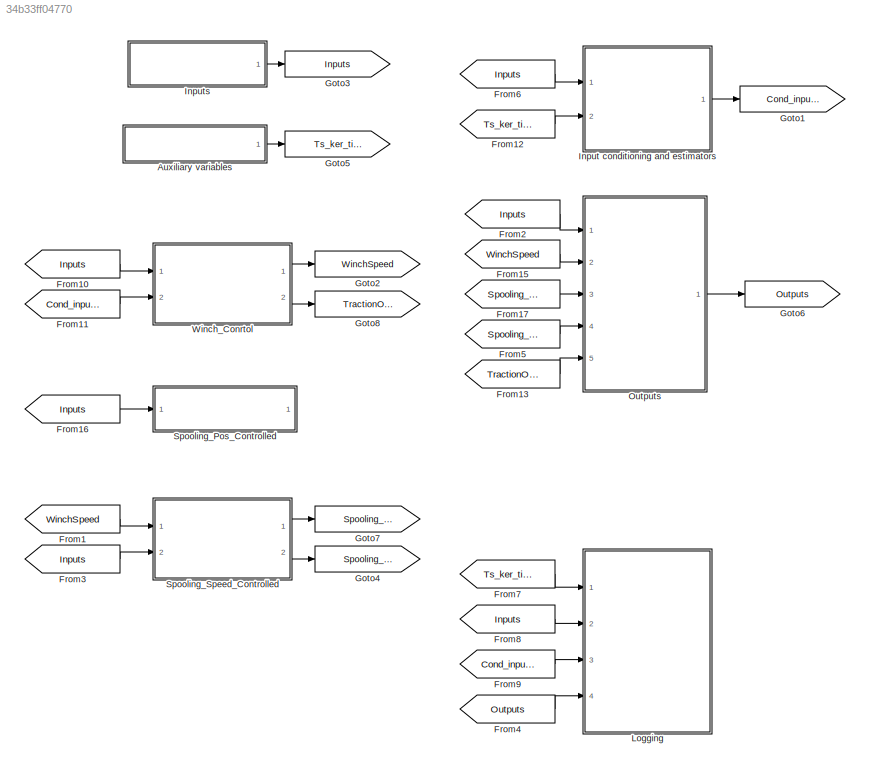
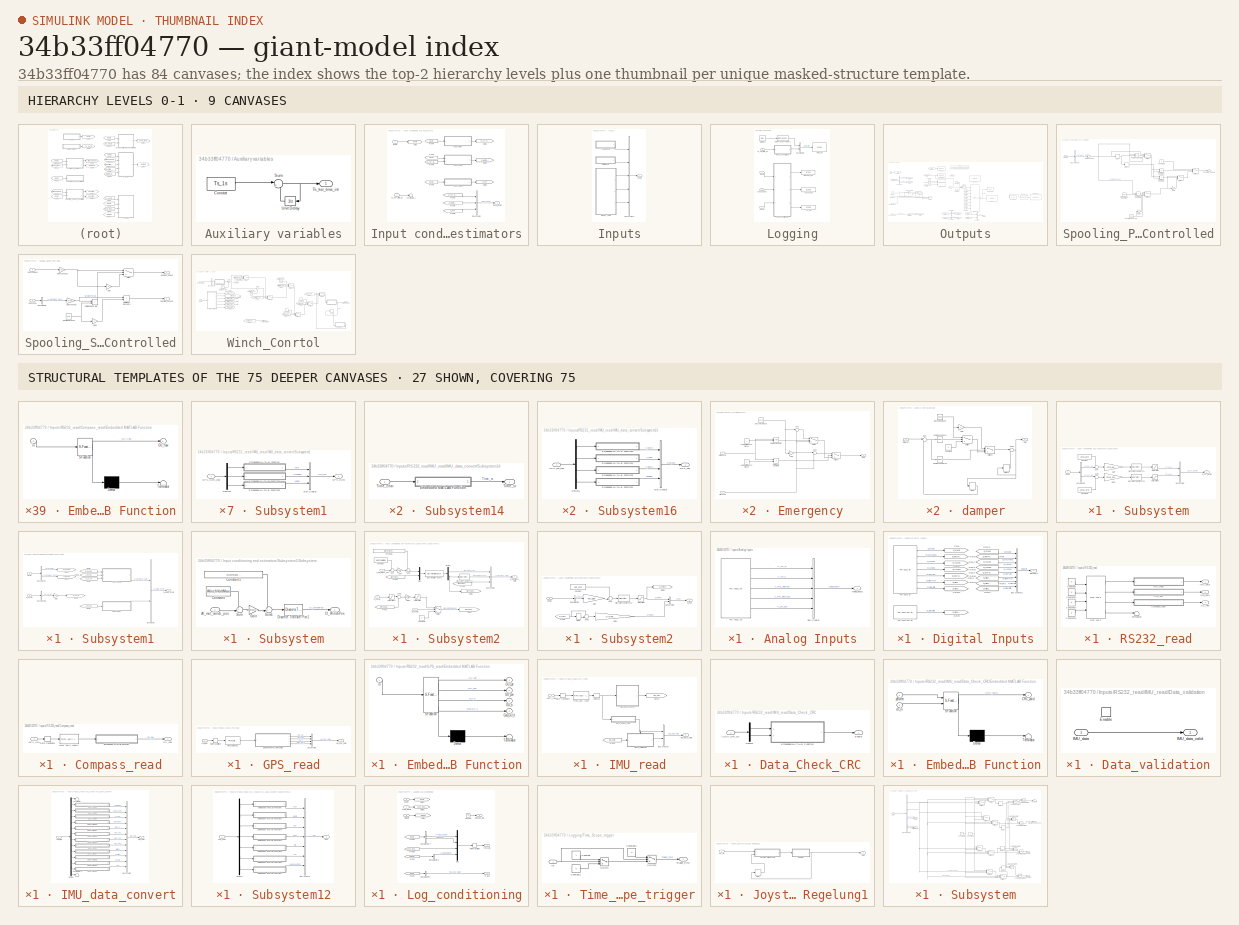
[diagram: thumbnail index - top-2 hierarchy levels (9 canvases) + 27 structural-template representatives of the remaining 75 canvases]
MODEL slx_34b33ff04770
KIND model
CONFIG AbsTol = auto
CONFIG EnableMultiTasking = on
CONFIG FixedStep = Ts_main
CONFIG InitFcn = clc\neval('ContrPrm_v1_1')
CONFIG MaxStep = auto
CONFIG MinStep = auto
CONFIG RelTol = 1e-3
CONFIG SampleTimeConstraint = Unconstrained
CONFIG Solver = FixedStepDiscrete
CONFIG SolverName = FixedStepDiscrete
CONFIG StartTime = 0.0
CONFIG StopTime = inf
WORKSPACE source: MAT-file member
WORKSPACE JoyW_sat = 10
BLOCK [SubSystem] Auxiliary variables
  Ports = [0, 1]
  RequestExecContextInheritance = off
  Variant = off
BLOCK [Constant] Auxiliary variables/Constat
  SampleTime = Ts_1s
  Value = Ts_1s
BLOCK [Sum] Auxiliary variables/Sum
  IconShape = round
  InputSameDT = off
  Inputs = |++
  OutDataTypeStr = Inherit: Inherit via internal rule
  Ports = [2, 1]
  SaturateOnIntegerOverflow = off
BLOCK [Outport] Auxiliary variables/Ts_ker_time_int
  IconDisplay = Port number
BLOCK [UnitDelay] Auxiliary variables/Unit Delay
  SampleTime = -1
BLOCK [From] From1
  GotoTag = WinchSpeed
BLOCK [From] From10
  GotoTag = Inputs
BLOCK [From] From11
  GotoTag = Cond_inputs
BLOCK [From] From12
  GotoTag = Ts_ker_time_int
BLOCK [From] From13
  GotoTag = TractionOnOff
BLOCK [From] From15
  GotoTag = WinchSpeed
BLOCK [From] From16
  GotoTag = Inputs
BLOCK [From] From17
  GotoTag = Spooling_Speed
BLOCK [From] From2
  GotoTag = Inputs
BLOCK [From] From3
  GotoTag = Inputs
BLOCK [From] From4
  GotoTag = Outputs
BLOCK [From] From5
  GotoTag = Spooling_Grenze
BLOCK [From] From6
  GotoTag = Inputs
BLOCK [From] From7
  GotoTag = Ts_ker_time_int
BLOCK [From] From8
  GotoTag = Inputs
BLOCK [From] From9
  GotoTag = Cond_inputs
BLOCK [Goto] Goto1
  GotoTag = Cond_inputs
BLOCK [Goto] Goto2
  GotoTag = WinchSpeed
BLOCK [Goto] Goto3
  GotoTag = Inputs
BLOCK [Goto] Goto4
  GotoTag = Spooling_Grenze
BLOCK [Goto] Goto5
  GotoTag = Ts_ker_time_int
BLOCK [Goto] Goto6
  GotoTag = Outputs
BLOCK [Goto] Goto7
  GotoTag = Spooling_Speed
BLOCK [Goto] Goto8
  GotoTag = TractionOnOff
BLOCK [SubSystem] Input conditioning and estimators
  Ports = [2, 1]
  RequestExecContextInheritance = off
  Variant = off
BLOCK [BusCreator] Input conditioning and estimators/Bus Creator
  DisplayOption = bar
  InheritFromInputs = on
  Inputs = 3
  Ports = [3, 1]
BLOCK [Outport] Input conditioning and estimators/Cond_inputs
  IconDisplay = Port number
BLOCK [From] Input conditioning and estimators/From1
  GotoTag = Inputs
BLOCK [From] Input conditioning and estimators/From2
  GotoTag = CI_Joy_Inputs
BLOCK [From] Input conditioning and estimators/From3
  GotoTag = CI_Motors_Inputs
BLOCK [From] Input conditioning and estimators/From4
  GotoTag = Inputs
BLOCK [From] Input conditioning and estimators/From5
  GotoTag = CI_Pot
BLOCK [From] Input conditioning and estimators/From6
  GotoTag = CI_Joy_Inputs
BLOCK [From] Input conditioning and estimators/From7
  GotoTag = Inputs
BLOCK [Goto] Input conditioning and estimators/Goto
  GotoTag = Inputs
BLOCK [Goto] Input conditioning and estimators/Goto1
  GotoTag = CI_Joy_Inputs
BLOCK [Goto] Input conditioning and estimators/Goto2
  GotoTag = CI_Motors_Inputs
BLOCK [Goto] Input conditioning and estimators/Goto3
  GotoTag = CI_Pot
BLOCK [Inport] Input conditioning and estimators/Inputs
  IconDisplay = Port number
BLOCK [SubSystem] Input conditioning and estimators/Subsystem
  Ports = [1, 1]
  RequestExecContextInheritance = off
  Variant = off
BLOCK [BusCreator] Input conditioning and estimators/Subsystem/Bus Creator
  DisplayOption = bar
  InheritFromInputs = on
  Inputs = 2
  Ports = [2, 1]
BLOCK [BusSelector] Input conditioning and estimators/Subsystem/Bus Selector
  OutputAsBus = off
  OutputSignals = Analog_inputs.AI_Joy_S,Analog_inputs.AI_Joy_W
  Ports = [1, 2]
BLOCK [Outport] Input conditioning and estimators/Subsystem/CI_Joy_Inputs
  IconDisplay = Port number
BLOCK [Constant] Input conditioning and estimators/Subsystem/Constant
  Value = JoyS_ofst
BLOCK [Constant] Input conditioning and estimators/Subsystem/Constant1
  Value = JoyW_ofst
BLOCK [DiscreteTransferFcn] Input conditioning and estimators/Subsystem/Discrete Transfer Fcn
  Denominator = JoyFiltDen
  InputPortMap = u0
  Numerator = JoyFiltNum
  Ports = [1, 1]
BLOCK [DiscreteTransferFcn] Input conditioning and estimators/Subsystem/Discrete Transfer Fcn1
  Denominator = JoyFiltDen
  InputPortMap = u0
  Numerator = JoyFiltNum
  Ports = [1, 1]
BLOCK [Gain] Input conditioning and estimators/Subsystem/Gain
  Gain = JoyS_gain
  OutDataTypeStr = Inherit: Inherit via internal rule
  ParamDataTypeStr = Inherit: Inherit via internal rule
  SaturateOnIntegerOverflow = off
BLOCK [Gain] Input conditioning and estimators/Subsystem/Gain1
  Gain = JoyW_gain
  OutDataTypeStr = Inherit: Inherit via internal rule
  ParamDataTypeStr = Inherit: Inherit via internal rule
  SaturateOnIntegerOverflow = off
BLOCK [Inport] Input conditioning and estimators/Subsystem/Inputs
  IconDisplay = Port number
BLOCK [Saturate] Input conditioning and estimators/Subsystem/Saturation
  InputPortMap = u0
  LowerLimit = -JoyS_sat
  Ports = [1, 1]
  UpperLimit = JoyS_sat
BLOCK [Saturate] Input conditioning and estimators/Subsystem/Saturation1
  InputPortMap = u0
  LowerLimit = -JoyW_sat
  Ports = [1, 1]
  UpperLimit = JoyW_sat
BLOCK [Sum] Input conditioning and estimators/Subsystem/Sum
  IconShape = round
  InputSameDT = off
  Inputs = ++|
  OutDataTypeStr = Inherit: Inherit via internal rule
  Ports = [2, 1]
  SaturateOnIntegerOverflow = off
BLOCK [Sum] Input conditioning and estimators/Subsystem/Sum1
  IconShape = round
  InputSameDT = off
  Inputs = |++
  OutDataTypeStr = Inherit: Inherit via internal rule
  Ports = [2, 1]
  SaturateOnIntegerOverflow = off
BLOCK [SubSystem] Input conditioning and estimators/Subsystem1
  Ports = [2, 1]
  RequestExecContextInheritance = off
  Variant = off
BLOCK [BusCreator] Input conditioning and estimators/Subsystem1/Bus Creator
  DisplayOption = bar
  InheritFromInputs = on
  Inputs = 2
  Ports = [2, 1]
BLOCK [BusSelector] Input conditioning and estimators/Subsystem1/Bus Selector
  OutputAsBus = off
  OutputSignals = DgInputs.DI_Enable,Analog_inputs.AI_mot_winch_pos
  Ports = [1, 2]
BLOCK [BusSelector] Input conditioning and estimators/Subsystem1/Bus Selector1
  OutputAsBus = off
  OutputSignals = CI_JoyW
  Ports = [1, 1]
BLOCK [Inport] Input conditioning and estimators/Subsystem1/CI_JoyW
  IconDisplay = Port number
  Port = 2
BLOCK [Outport] Input conditioning and estimators/Subsystem1/CI_Motors_Inputs
  IconDisplay = Port number
BLOCK [From] Input conditioning and estimators/Subsystem1/From2
  GotoTag = AI_mot_winch_pos
BLOCK [From] Input conditioning and estimators/Subsystem1/From3
  GotoTag = CI_JoyW
BLOCK [From] Input conditioning and estimators/Subsystem1/From5
  GotoTag = AI_mot_winch_pos
BLOCK [From] Input conditioning and estimators/Subsystem1/From6
  GotoTag = DI_Enable
BLOCK [Gain] Input conditioning and estimators/Subsystem1/Gain
  Gain = 5.7
  OutDataTypeStr = Inherit: Inherit via internal rule
  ParamDataTypeStr = Inherit: Inherit via internal rule
  SaturateOnIntegerOverflow = off
BLOCK [Goto] Input conditioning and estimators/Subsystem1/Goto1
  GotoTag = AI_mot_winch_pos
BLOCK [Goto] Input conditioning and estimators/Subsystem1/Goto3
  GotoTag = CI_JoyW
BLOCK [Goto] Input conditioning and estimators/Subsystem1/Goto4
  GotoTag = DI_Enable
BLOCK [Inport] Input conditioning and estimators/Subsystem1/Inputs
  IconDisplay = Port number
BLOCK [SubSystem] Input conditioning and estimators/Subsystem1/Subsystem
  Ports = [1, 1]
  RequestExecContextInheritance = off
  Variant = off
BLOCK [Inport] Input conditioning and estimators/Subsystem1/Subsystem/AI_mot_winch_pos
  IconDisplay = Port number
BLOCK [Outport] Input conditioning and estimators/Subsystem1/Subsystem/CI_WinchPos
  IconDisplay = Port number
BLOCK [Constant] Input conditioning and estimators/Subsystem1/Subsystem/Constant
  Value = WinchVoltMax
BLOCK [Constant] Input conditioning and estimators/Subsystem1/Subsystem/Constant1
  Value = WinchTravelMin_m/WinchDrumRad
BLOCK [DiscreteTransferFcn] Input conditioning and estimators/Subsystem1/Subsystem/Discrete Transfer Fcn1
  Denominator = WinchPosFiltDen
  InputPortMap = u0
  Numerator = WinchPosFiltNum
  Ports = [1, 1]
BLOCK [Gain] Input conditioning and estimators/Subsystem1/Subsystem/Gain
  Gain = WinchMotPosAIgain
  OutDataTypeStr = Inherit: Inherit via internal rule
  ParamDataTypeStr = Inherit: Inherit via internal rule
  SaturateOnIntegerOverflow = off
BLOCK [Sum] Input conditioning and estimators/Subsystem1/Subsystem/Sum
  IconShape = round
  InputSameDT = off
  Inputs = ++|
  OutDataTypeStr = Inherit: Inherit via internal rule
  Ports = [2, 1]
  SaturateOnIntegerOverflow = off
BLOCK [Sum] Input conditioning and estimators/Subsystem1/Subsystem/Sum1
  IconShape = round
  InputSameDT = off
  Inputs = ++|
  OutDataTypeStr = Inherit: Inherit via internal rule
  Ports = [2, 1]
  SaturateOnIntegerOverflow = off
BLOCK [SubSystem] Input conditioning and estimators/Subsystem1/Subsystem2
  Ports = [3, 1]
  RequestExecContextInheritance = off
  Variant = off
BLOCK [Inport] Input conditioning and estimators/Subsystem1/Subsystem2/AI_mot_winch_pos
  IconDisplay = Port number
  Port = 2
BLOCK [BusCreator] Input conditioning and estimators/Subsystem1/Subsystem2/Bus Creator
  DisplayOption = bar
  InheritFromInputs = on
  Inputs = 3
  Ports = [3, 1]
BLOCK [Inport] Input conditioning and estimators/Subsystem1/Subsystem2/CI_JoyW
  IconDisplay = Port number
  Port = 3
BLOCK [Outport] Input conditioning and estimators/Subsystem1/Subsystem2/CI_mot_winch_state
  IconDisplay = Port number
BLOCK [Constant] Input conditioning and estimators/Subsystem1/Subsystem2/Constant
  Value = WinchVoltMax
BLOCK [Constant] Input conditioning and estimators/Subsystem1/Subsystem2/Constant1
  Value = WinchTravelMin_m/WinchDrumRad
BLOCK [Constant] Input conditioning and estimators/Subsystem1/Subsystem2/Constant2
  Value = 0
BLOCK [Inport] Input conditioning and estimators/Subsystem1/Subsystem2/DI_Enable
  IconDisplay = Port number
BLOCK [Demux] Input conditioning and estimators/Subsystem1/Subsystem2/Demux
  DisplayOption = bar
  Outputs = 2
  Ports = [1, 2]
BLOCK [DiscreteStateSpace] Input conditioning and estimators/Subsystem1/Subsystem2/Discrete State-Space
  A = Afilt_Winch
  B = Bfilt_Winch
  C = Cfilt_Winch
  D = Dfilt_Winch
  SampleTime = -1
  X0 = x0_Winch
BLOCK [DiscreteTransferFcn] Input conditioning and estimators/Subsystem1/Subsystem2/Discrete Transfer Fcn
  Denominator = WinchSpdEstFiltDen
  InputPortMap = u0
  Numerator = WinchSpdEstFiltNum
  Ports = [1, 1]
BLOCK [From] Input conditioning and estimators/Subsystem1/Subsystem2/From1
  GotoTag = WinchMotSpdEst
BLOCK [From] Input conditioning and estimators/Subsystem1/Subsystem2/From2
  GotoTag = WinchMotTorqueEst
BLOCK [From] Input conditioning and estimators/Subsystem1/Subsystem2/From3
  GotoTag = WinchMotTorqueEst
BLOCK [Gain] Input conditioning and estimators/Subsystem1/Subsystem2/Gain
  Gain = WinchMotPosAIgain
  OutDataTypeStr = Inherit: Inherit via internal rule
  ParamDataTypeStr = Inherit: Inherit via internal rule
  SaturateOnIntegerOverflow = off
BLOCK [Gain] Input conditioning and estimators/Subsystem1/Subsystem2/Gain1
  Gain = KspdWinch
  OutDataTypeStr = Inherit: Inherit via internal rule
  ParamDataTypeStr = Inherit: Inherit via internal rule
  SaturateOnIntegerOverflow = off
BLOCK [Goto] Input conditioning and estimators/Subsystem1/Subsystem2/Goto1
  GotoTag = WinchMotSpdEst
BLOCK [Goto] Input conditioning and estimators/Subsystem1/Subsystem2/Goto2
  GotoTag = WinchMotTorqueEst
BLOCK [Mux] Input conditioning and estimators/Subsystem1/Subsystem2/Mux
  DisplayOption = bar
  Inputs = 2
  Ports = [2, 1]
BLOCK [Saturate] Input conditioning and estimators/Subsystem1/Subsystem2/Saturation
  InputPortMap = u0
  LowerLimit = -WinchMotTorqueMax
  Ports = [1, 1]
  UpperLimit = WinchMotTorqueMax
BLOCK [Saturate] Input conditioning and estimators/Subsystem1/Subsystem2/Saturation1
  InputPortMap = u0
  LowerLimit = -WinchRefSpdSup
  Ports = [1, 1]
  UpperLimit = WinchRefSpdSup
BLOCK [Sum] Input conditioning and estimators/Subsystem1/Subsystem2/Sum
  IconShape = round
  InputSameDT = off
  Inputs = ++|
  OutDataTypeStr = Inherit: Inherit via internal rule
  Ports = [2, 1]
  SaturateOnIntegerOverflow = off
BLOCK [Sum] Input conditioning and estimators/Subsystem1/Subsystem2/Sum1
  IconShape = round
  InputSameDT = off
  Inputs = ++|
  OutDataTypeStr = Inherit: Inherit via internal rule
  Ports = [2, 1]
  SaturateOnIntegerOverflow = off
BLOCK [Sum] Input conditioning and estimators/Subsystem1/Subsystem2/Sum2
  IconShape = round
  InputSameDT = off
  Inputs = |+-
  OutDataTypeStr = Inherit: Inherit via internal rule
  Ports = [2, 1]
  SaturateOnIntegerOverflow = off
BLOCK [Switch] Input conditioning and estimators/Subsystem1/Subsystem2/Switch
  Criteria = u2 > Threshold
  InputSameDT = off
  SaturateOnIntegerOverflow = off
  Threshold = 0.5
BLOCK [SubSystem] Input conditioning and estimators/Subsystem2
  Ports = [1, 1]
  RequestExecContextInheritance = off
  Variant = off
BLOCK [BusCreator] Input conditioning and estimators/Subsystem2/Bus Creator
  DisplayOption = bar
  InheritFromInputs = on
  Inputs = 2
  Ports = [2, 1]
BLOCK [BusSelector] Input conditioning and estimators/Subsystem2/Bus Selector
  OutputAsBus = off
  OutputSignals = Analog_inputs.AI_pot_pos
  Ports = [1, 1]
BLOCK [Outport] Input conditioning and estimators/Subsystem2/CI_Pot
  IconDisplay = Port number
BLOCK [Constant] Input conditioning and estimators/Subsystem2/Constant
  Value = Pot_ofst
BLOCK [Delay] Input conditioning and estimators/Subsystem2/Delay
  DelayLength = NPotSpdEst
  InputPortMap = u0
  Ports = [1, 1]
BLOCK [DiscreteTransferFcn] Input conditioning and estimators/Subsystem2/Discrete Transfer Fcn1
  Denominator = PotPosFiltDen
  InputPortMap = u0
  Numerator = PotPosFiltNum
  Ports = [1, 1]
BLOCK [From] Input conditioning and estimators/Subsystem2/From4
  GotoTag = CI_PotPos
BLOCK [Gain] Input conditioning and estimators/Subsystem2/Gain
  Gain = Pot_gain
  OutDataTypeStr = Inherit: Inherit via internal rule
  ParamDataTypeStr = Inherit: Inherit via internal rule
  SaturateOnIntegerOverflow = off
BLOCK [Gain] Input conditioning and estimators/Subsystem2/Gain1
  Gain = 1/(NPotSpdEst*Ts_1ms)
  OutDataTypeStr = Inherit: Inherit via internal rule
  ParamDataTypeStr = Inherit: Inherit via internal rule
  SaturateOnIntegerOverflow = off
BLOCK [Goto] Input conditioning and estimators/Subsystem2/Goto2
  GotoTag = CI_PotPos
BLOCK [Inport] Input conditioning and estimators/Subsystem2/Inputs
  IconDisplay = Port number
BLOCK [Saturate] Input conditioning and estimators/Subsystem2/Saturation
  InputPortMap = u0
  LowerLimit = Pot_min
  Ports = [1, 1]
  UpperLimit = Pot_max
BLOCK [Sum] Input conditioning and estimators/Subsystem2/Sum
  IconShape = round
  InputSameDT = off
  Inputs = ++|
  OutDataTypeStr = Inherit: Inherit via internal rule
  Ports = [2, 1]
  SaturateOnIntegerOverflow = off
BLOCK [Sum] Input conditioning and estimators/Subsystem2/Sum1
  IconShape = round
  InputSameDT = off
  Inputs = +-|
  OutDataTypeStr = Inherit: Inherit via internal rule
  Ports = [2, 1]
  SaturateOnIntegerOverflow = off
BLOCK [Terminator] Input conditioning and estimators/Terminator1
BLOCK [Inport] Input conditioning and estimators/Ts_ker_time_int
  IconDisplay = Port number
  Port = 2
BLOCK [SubSystem] Inputs
  Ports = [0, 1]
  RequestExecContextInheritance = off
  Variant = off
BLOCK [SubSystem] Inputs/Analog Inputs
  Ports = [0, 1]
  RequestExecContextInheritance = off
  Variant = off
BLOCK [Outport] Inputs/Analog Inputs/Analog_inputs
  IconDisplay = Port number
BLOCK [BusCreator] Inputs/Analog Inputs/Bus Creator
  DisplayOption = bar
  InheritFromInputs = on
  Inputs = 5
  Ports = [5, 1]
BLOCK [Reference] Inputs/Analog Inputs/PCI-6221 AD  REF=xpcnilib/A//D/M Series/PCI-6221 AD
  Ports = [0, 5]
  SourceBlock = xpcnilib/A//D/M Series/PCI-6221 AD
  SourceProductBaseCode = XP
  SourceProductName = Simulink Real-Time
  SourceType = adnipci6221
BLOCK [BusCreator] Inputs/Bus Creator2
  DisplayOption = bar
  InheritFromInputs = on
  Inputs = 5
  Ports = [5, 1]
BLOCK [SubSystem] Inputs/Digital Inputs
  Ports = [0, 1]
  RequestExecContextInheritance = off
  Variant = off
BLOCK [BusCreator] Inputs/Digital Inputs/Bus Creator1
  DisplayOption = bar
  InheritFromInputs = on
  Inputs = 8
  Ports = [8, 1]
BLOCK [Outport] Inputs/Digital Inputs/DgInputs
  IconDisplay = Port number
BLOCK [From] Inputs/Digital Inputs/From
  GotoTag = DI_WinchMode
BLOCK [From] Inputs/Digital Inputs/From1
  GotoTag = DI_Takeoff
BLOCK [From] Inputs/Digital Inputs/From14
  GotoTag = DI_Enable
BLOCK [From] Inputs/Digital Inputs/From2
  GotoTag = DI_Landing
BLOCK [From] Inputs/Digital Inputs/From3
  GotoTag = DI_Operator
BLOCK [From] Inputs/Digital Inputs/From4
  GotoTag = DI_GliderPres
BLOCK [From] Inputs/Digital Inputs/From5
  GotoTag = DI_SlideLimitF
BLOCK [From] Inputs/Digital Inputs/From6
  GotoTag = DI_SlideLimitB
BLOCK [Goto] Inputs/Digital Inputs/Goto
  GotoTag = DI_Enable
BLOCK [Goto] Inputs/Digital Inputs/Goto1
  GotoTag = DI_WinchMode
BLOCK [Goto] Inputs/Digital Inputs/Goto11
  GotoTag = DI_GliderPres
BLOCK [Goto] Inputs/Digital Inputs/Goto13
  GotoTag = DI_SlideLimitF
BLOCK [Goto] Inputs/Digital Inputs/Goto2
  GotoTag = DI_Takeoff
BLOCK [Goto] Inputs/Digital Inputs/Goto3
  GotoTag = DI_Landing
BLOCK [Goto] Inputs/Digital Inputs/Goto8
  GotoTag = DI_Operator
BLOCK [Goto] Inputs/Digital Inputs/Goto9
  GotoTag = DI_SlideLimitB
BLOCK [Reference] Inputs/Digital Inputs/PCI 6221 PFI DI   REF=xpcnilib/Digital
Input/M Series/PCI 6221 PFI DI 
  Ports = [0, 1]
  SourceBlock = xpcnilib/Digital\nInput/M Series/PCI 6221 PFI DI
  SourceProductBaseCode = XP
  SourceProductName = Simulink Real-Time
  SourceType = pfiinpnipci6221
BLOCK [Reference] Inputs/Digital Inputs/PCI-6221 DI  REF=xpcnilib/Digital
Input/M Series/PCI-6221 DI
  Ports = [0, 7]
  SourceBlock = xpcnilib/Digital\nInput/M Series/PCI-6221 DI
  SourceProductBaseCode = XP
  SourceProductName = Simulink Real-Time
  SourceType = dinipci6221
BLOCK [Outport] Inputs/Inputs
  IconDisplay = Port number
BLOCK [SubSystem] Inputs/RS232_read
  Ports = [0, 3]
  RequestExecContextInheritance = off
  Variant = off
BLOCK [SubSystem] Inputs/RS232_read/Compass_read
  Ports = [1, 1]
  RequestExecContextInheritance = off
  Variant = off
BLOCK [Inport] Inputs/RS232_read/Compass_read/ASCII_IMU
  IconDisplay = Port number
BLOCK [SubSystem] Inputs/RS232_read/Compass_read/Embedded MATLAB Function
  ErrorFcn = Stateflow.Translate.translate
  PermitHierarchicalResolution = ExplicitOnly
  Ports = [1, 1]
  RequestExecContextInheritance = off
  SFBlockType = MATLAB Function
  TreatAsAtomicUnit = on
  Variant = off
BLOCK [Demux] Inputs/RS232_read/Compass_read/Embedded MATLAB Function/ Demux 
  Outputs = 1
  Ports = [1, 1]
BLOCK [S-Function] Inputs/RS232_read/Compass_read/Embedded MATLAB Function/ SFunction 
  EnableBusSupport = on
  FunctionName = sf_sfun
  PortCounts = [1 2]
  Ports = [1, 2]
  SFcnIsStateOwnerBlock = off
  SFunctionDeploymentMode = off
  Tag = Stateflow S-Function Control_software_v1_1 40
BLOCK [Terminator] Inputs/RS232_read/Compass_read/Embedded MATLAB Function/ Terminator 
BLOCK [Outport] Inputs/RS232_read/Compass_read/Embedded MATLAB Function/GU_Yaw
  IconDisplay = Port number
BLOCK [Inport] Inputs/RS232_read/Compass_read/Embedded MATLAB Function/in
  IconDisplay = Port number
BLOCK [Reference] Inputs/RS232_read/Compass_read/FIFO ASCII read 1  REF=xpcseriallib/FIFO ASCII read 
  Ports = [1, 1]
  SourceBlock = xpcseriallib/FIFO ASCII read
  SourceProductBaseCode = XP
  SourceProductName = Simulink Real-Time
  SourceType = Asynchronous FIFO Block: reader
BLOCK [Outport] Inputs/RS232_read/Compass_read/GU_Yaw
  IconDisplay = Port number
BLOCK [RateTransition] Inputs/RS232_read/Compass_read/Rate Transition4
  OutPortSampleTime = Ts_1s
BLOCK [Constant] Inputs/RS232_read/Constant
  OutDataTypeStr = Inherit: Inherit via back propagation
  SampleTime = Ts_1s
  Value = 0
BLOCK [Constant] Inputs/RS232_read/Constant1
  OutDataTypeStr = Inherit: Inherit via back propagation
  SampleTime = Ts_1s
  Value = 0
BLOCK [Constant] Inputs/RS232_read/Constant2
  OutDataTypeStr = Inherit: Inherit via back propagation
  SampleTime = Ts_1s
  Value = 0
BLOCK [Constant] Inputs/RS232_read/Constant3
  OutDataTypeStr = Inherit: Inherit via back propagation
  SampleTime = Ts_1s
  Value = 0
BLOCK [Outport] Inputs/RS232_read/GPS_data
  IconDisplay = Port number
  Port = 2
BLOCK [SubSystem] Inputs/RS232_read/GPS_read
  Ports = [1, 1]
  RequestExecContextInheritance = off
  Variant = off
BLOCK [Inport] Inputs/RS232_read/GPS_read/ASCII_IMU
  IconDisplay = Port number
BLOCK [BusCreator] Inputs/RS232_read/GPS_read/Bus Creator
  DisplayOption = bar
  InheritFromInputs = on
  Inputs = 4
  Ports = [4, 1]
BLOCK [SubSystem] Inputs/RS232_read/GPS_read/Embedded MATLAB Function
  ErrorFcn = Stateflow.Translate.translate
  PermitHierarchicalResolution = ExplicitOnly
  Ports = [1, 4]
  RequestExecContextInheritance = off
  SFBlockType = MATLAB Function
  TreatAsAtomicUnit = on
  Variant = off
BLOCK [Demux] Inputs/RS232_read/GPS_read/Embedded MATLAB Function/ Demux 
  Outputs = 1
  Ports = [1, 1]
BLOCK [S-Function] Inputs/RS232_read/GPS_read/Embedded MATLAB Function/ SFunction 
  EnableBusSupport = on
  FunctionName = sf_sfun
  PortCounts = [1 5]
  Ports = [1, 5]
  SFcnIsStateOwnerBlock = off
  SFunctionDeploymentMode = off
  Tag = Stateflow S-Function Control_software_v1_1 5
BLOCK [Terminator] Inputs/RS232_read/GPS_read/Embedded MATLAB Function/ Terminator 
BLOCK [Outport] Inputs/RS232_read/GPS_read/Embedded MATLAB Function/GU_Lat
  IconDisplay = Port number
BLOCK [Outport] Inputs/RS232_read/GPS_read/Embedded MATLAB Function/GU_Lon
  IconDisplay = Port number
  Port = 2
BLOCK [Outport] Inputs/RS232_read/GPS_read/Embedded MATLAB Function/GU_h
  IconDisplay = Port number
  Port = 3
BLOCK [Outport] Inputs/RS232_read/GPS_read/Embedded MATLAB Function/Geo_GU_h
  IconDisplay = Port number
  Port = 4
BLOCK [Inport] Inputs/RS232_read/GPS_read/Embedded MATLAB Function/in
  IconDisplay = Port number
BLOCK [Reference] Inputs/RS232_read/GPS_read/FIFO ASCII read 1  REF=xpcseriallib/FIFO ASCII read 
  Ports = [1, 1]
  SourceBlock = xpcseriallib/FIFO ASCII read
  SourceProductBaseCode = XP
  SourceProductName = Simulink Real-Time
  SourceType = Asynchronous FIFO Block: reader
BLOCK [Outport] Inputs/RS232_read/GPS_read/GU_pos_data
  IconDisplay = Port number
BLOCK [RateTransition] Inputs/RS232_read/GPS_read/Rate Transition4
  OutPortSampleTime = Ts_1s
BLOCK [Outport] Inputs/RS232_read/GU_Yaw
  IconDisplay = Port number
  Port = 3
BLOCK [Outport] Inputs/RS232_read/IMU_data
  IconDisplay = Port number
BLOCK [SubSystem] Inputs/RS232_read/IMU_read
  Ports = [1, 1]
  RequestExecContextInheritance = off
  Variant = off
BLOCK [Inport] Inputs/RS232_read/IMU_read/ASCII_IMU
  IconDisplay = Port number
BLOCK [BusCreator] Inputs/RS232_read/IMU_read/Bus Creator
  DisplayOption = bar
  InheritFromInputs = on
  Inputs = 2
  Ports = [2, 1]
BLOCK [SubSystem] Inputs/RS232_read/IMU_read/Data_Check_CRC
  Ports = [1, 1]
  RequestExecContextInheritance = off
  Variant = off
BLOCK [Inport] Inputs/RS232_read/IMU_read/Data_Check_CRC/ASCII_IMU_crc
  IconDisplay = Port number
BLOCK [Demux] Inputs/RS232_read/IMU_read/Data_Check_CRC/Demux
  DisplayOption = bar
  Outputs = [143 2]
  Ports = [1, 2]
BLOCK [SubSystem] Inputs/RS232_read/IMU_read/Data_Check_CRC/Embedded MATLAB Function
  ErrorFcn = Stateflow.Translate.translate
  PermitHierarchicalResolution = ExplicitOnly
  Ports = [2, 1]
  RequestExecContextInheritance = off
  SFBlockType = MATLAB Function
  TreatAsAtomicUnit = on
  Variant = off
BLOCK [Demux] Inputs/RS232_read/IMU_read/Data_Check_CRC/Embedded MATLAB Function/ Demux 
  Outputs = 1
  Ports = [1, 1]
BLOCK [S-Function] Inputs/RS232_read/IMU_read/Data_Check_CRC/Embedded MATLAB Function/ SFunction 
  EnableBusSupport = on
  FunctionName = sf_sfun
  PortCounts = [2 2]
  Ports = [2, 2]
  SFcnIsStateOwnerBlock = off
  SFunctionDeploymentMode = off
  Tag = Stateflow S-Function Control_software_v1_1 81
BLOCK [Terminator] Inputs/RS232_read/IMU_read/Data_Check_CRC/Embedded MATLAB Function/ Terminator 
BLOCK [Outport] Inputs/RS232_read/IMU_read/Data_Check_CRC/Embedded MATLAB Function/CRC_valid
  IconDisplay = Port number
BLOCK [Inport] Inputs/RS232_read/IMU_read/Data_Check_CRC/Embedded MATLAB Function/crc_in
  IconDisplay = Port number
  Port = 2
BLOCK [Inport] Inputs/RS232_read/IMU_read/Data_Check_CRC/Embedded MATLAB Function/pBuffer
  IconDisplay = Port number
BLOCK [Outport] Inputs/RS232_read/IMU_read/Data_Check_CRC/Enable
  IconDisplay = Port number
BLOCK [SubSystem] Inputs/RS232_read/IMU_read/Data_validation
  Ports = [1, 1, 1]
  RequestExecContextInheritance = off
  Variant = off
BLOCK [EnablePort] Inputs/RS232_read/IMU_read/Data_validation/Enable
  Ports = []
BLOCK [Inport] Inputs/RS232_read/IMU_read/Data_validation/IMU_data
  IconDisplay = Port number
BLOCK [Outport] Inputs/RS232_read/IMU_read/Data_validation/IMU_data_valid
  IconDisplay = Port number
BLOCK [Reference] Inputs/RS232_read/IMU_read/FIFO ASCII read   REF=xpcseriallib/FIFO ASCII read 
  Ports = [1, 1]
  SourceBlock = xpcseriallib/FIFO ASCII read
  SourceProductBaseCode = XP
  SourceProductName = Simulink Real-Time
  SourceType = Asynchronous FIFO Block: reader
BLOCK [From] Inputs/RS232_read/IMU_read/From3
  GotoTag = IMU_data
BLOCK [Goto] Inputs/RS232_read/IMU_read/Goto1
  GotoTag = IMU_data
BLOCK [SubSystem] Inputs/RS232_read/IMU_read/IMU_data_convert
  Ports = [1, 1]
  RequestExecContextInheritance = off
  Variant = off
BLOCK [Inport] Inputs/RS232_read/IMU_read/IMU_data_convert/ASCII_IMU
  IconDisplay = Port number
BLOCK [BusCreator] Inputs/RS232_read/IMU_read/IMU_data_convert/Bus Creator
  DisplayOption = bar
  InheritFromInputs = on
  Inputs = 12
  Ports = [12, 1]
BLOCK [Demux] Inputs/RS232_read/IMU_read/IMU_data_convert/Demux
  DisplayOption = bar
  Outputs = [3 16 12 12 12 4 12 16 6 4 24 12 10 2]
  Ports = [1, 14]
BLOCK [Outport] Inputs/RS232_read/IMU_read/IMU_data_convert/IMU_data
  IconDisplay = Port number
BLOCK [SubSystem] Inputs/RS232_read/IMU_read/IMU_data_convert/Subsystem1
  Ports = [1, 1]
  RequestExecContextInheritance = off
  Variant = off
BLOCK [BusCreator] Inputs/RS232_read/IMU_read/IMU_data_convert/Subsystem1/Bus Creator
  DisplayOption = bar
  InheritFromInputs = on
  Inputs = 3
  Ports = [3, 1]
BLOCK [Demux] Inputs/RS232_read/IMU_read/IMU_data_convert/Subsystem1/Demux1
  DisplayOption = bar
  Outputs = [4 1 1]
  Ports = [1, 3]
BLOCK [SubSystem] Inputs/RS232_read/IMU_read/IMU_data_convert/Subsystem1/Embedded MATLAB Function
  ErrorFcn = Stateflow.Translate.translate
  PermitHierarchicalResolution = ExplicitOnly
  Ports = [1, 1]
  RequestExecContextInheritance = off
  SFBlockType = MATLAB Function
  TreatAsAtomicUnit = on
  Variant = off
BLOCK [Demux] Inputs/RS232_read/IMU_read/IMU_data_convert/Subsystem1/Embedded MATLAB Function/ Demux 
  Outputs = 1
  Ports = [1, 1]
BLOCK [S-Function] Inputs/RS232_read/IMU_read/IMU_data_convert/Subsystem1/Embedded MATLAB Function/ SFunction 
  EnableBusSupport = on
  FunctionName = sf_sfun
  PortCounts = [1 2]
  Ports = [1, 2]
  SFcnIsStateOwnerBlock = off
  SFunctionDeploymentMode = off
  Tag = Stateflow S-Function Control_software_v1_1 33
BLOCK [Terminator] Inputs/RS232_read/IMU_read/IMU_data_convert/Subsystem1/Embedded MATLAB Function/ Terminator 
BLOCK [Inport] Inputs/RS232_read/IMU_read/IMU_data_convert/Subsystem1/Embedded MATLAB Function/in
  IconDisplay = Port number
BLOCK [Outport] Inputs/RS232_read/IMU_read/IMU_data_convert/Subsystem1/Embedded MATLAB Function/uint32_out
  IconDisplay = Port number
BLOCK [SubSystem] Inputs/RS232_read/IMU_read/IMU_data_convert/Subsystem1/Embedded MATLAB Function1
  ErrorFcn = Stateflow.Translate.translate
  PermitHierarchicalResolution = ExplicitOnly
  Ports = [1, 1]
  RequestExecContextInheritance = off
  SFBlockType = MATLAB Function
  TreatAsAtomicUnit = on
  Variant = off
BLOCK [Demux] Inputs/RS232_read/IMU_read/IMU_data_convert/Subsystem1/Embedded MATLAB Function1/ Demux 
  Outputs = 1
  Ports = [1, 1]
BLOCK [S-Function] Inputs/RS232_read/IMU_read/IMU_data_convert/Subsystem1/Embedded MATLAB Function1/ SFunction 
  EnableBusSupport = on
  FunctionName = sf_sfun
  PortCounts = [1 2]
  Ports = [1, 2]
  SFcnIsStateOwnerBlock = off
  SFunctionDeploymentMode = off
  Tag = Stateflow S-Function Control_software_v1_1 34
BLOCK [Terminator] Inputs/RS232_read/IMU_read/IMU_data_convert/Subsystem1/Embedded MATLAB Function1/ Terminator 
BLOCK [Inport] Inputs/RS232_read/IMU_read/IMU_data_convert/Subsystem1/Embedded MATLAB Function1/in
  IconDisplay = Port number
BLOCK [Outport] Inputs/RS232_read/IMU_read/IMU_data_convert/Subsystem1/Embedded MATLAB Function1/uint8_out
  IconDisplay = Port number
BLOCK [SubSystem] Inputs/RS232_read/IMU_read/IMU_data_convert/Subsystem1/Embedded MATLAB Function2
  ErrorFcn = Stateflow.Translate.translate
  PermitHierarchicalResolution = ExplicitOnly
  Ports = [1, 1]
  RequestExecContextInheritance = off
  SFBlockType = MATLAB Function
  TreatAsAtomicUnit = on
  Variant = off
BLOCK [Demux] Inputs/RS232_read/IMU_read/IMU_data_convert/Subsystem1/Embedded MATLAB Function2/ Demux 
  Outputs = 1
  Ports = [1, 1]
BLOCK [S-Function] Inputs/RS232_read/IMU_read/IMU_data_convert/Subsystem1/Embedded MATLAB Function2/ SFunction 
  EnableBusSupport = on
  FunctionName = sf_sfun
  PortCounts = [1 2]
  Ports = [1, 2]
  SFcnIsStateOwnerBlock = off
  SFunctionDeploymentMode = off
  Tag = Stateflow S-Function Control_software_v1_1 56
BLOCK [Terminator] Inputs/RS232_read/IMU_read/IMU_data_convert/Subsystem1/Embedded MATLAB Function2/ Terminator 
BLOCK [Inport] Inputs/RS232_read/IMU_read/IMU_data_convert/Subsystem1/Embedded MATLAB Function2/in
  IconDisplay = Port number
BLOCK [Outport] Inputs/RS232_read/IMU_read/IMU_data_convert/Subsystem1/Embedded MATLAB Function2/uint8_out
  IconDisplay = Port number
BLOCK [Outport] Inputs/RS232_read/IMU_read/IMU_data_convert/Subsystem1/GPS_INFO
  IconDisplay = Port number
BLOCK [Inport] Inputs/RS232_read/IMU_read/IMU_data_convert/Subsystem1/GPS_INFO_char
  IconDisplay = Port number
BLOCK [SubSystem] Inputs/RS232_read/IMU_read/IMU_data_convert/Subsystem10
  Ports = [1, 1]
  RequestExecContextInheritance = off
  Variant = off
BLOCK [BusCreator] Inputs/RS232_read/IMU_read/IMU_data_convert/Subsystem10/Bus Creator
  DisplayOption = bar
  InheritFromInputs = on
  Inputs = 3
  Ports = [3, 1]
BLOCK [Demux] Inputs/RS232_read/IMU_read/IMU_data_convert/Subsystem10/Demux1
  DisplayOption = bar
  Outputs = [4 4 4]
  Ports = [1, 3]
BLOCK [SubSystem] Inputs/RS232_read/IMU_read/IMU_data_convert/Subsystem10/Embedded MATLAB Function
  ErrorFcn = Stateflow.Translate.translate
  PermitHierarchicalResolution = ExplicitOnly
  Ports = [1, 1]
  RequestExecContextInheritance = off
  SFBlockType = MATLAB Function
  TreatAsAtomicUnit = on
  Variant = off
BLOCK [Demux] Inputs/RS232_read/IMU_read/IMU_data_convert/Subsystem10/Embedded MATLAB Function/ Demux 
  Outputs = 1
  Ports = [1, 1]
BLOCK [S-Function] Inputs/RS232_read/IMU_read/IMU_data_convert/Subsystem10/Embedded MATLAB Function/ SFunction 
  EnableBusSupport = on
  FunctionName = sf_sfun
  PortCounts = [1 2]
  Ports = [1, 2]
  SFcnIsStateOwnerBlock = off
  SFunctionDeploymentMode = off
  Tag = Stateflow S-Function Control_software_v1_1 23
BLOCK [Terminator] Inputs/RS232_read/IMU_read/IMU_data_convert/Subsystem10/Embedded MATLAB Function/ Terminator 
BLOCK [Inport] Inputs/RS232_read/IMU_read/IMU_data_convert/Subsystem10/Embedded MATLAB Function/in
  IconDisplay = Port number
BLOCK [Outport] Inputs/RS232_read/IMU_read/IMU_data_convert/Subsystem10/Embedded MATLAB Function/sing_out
  IconDisplay = Port number
BLOCK [SubSystem] Inputs/RS232_read/IMU_read/IMU_data_convert/Subsystem10/Embedded MATLAB Function1
  ErrorFcn = Stateflow.Translate.translate
  PermitHierarchicalResolution = ExplicitOnly
  Ports = [1, 1]
  RequestExecContextInheritance = off
  SFBlockType = MATLAB Function
  TreatAsAtomicUnit = on
  Variant = off
BLOCK [Demux] Inputs/RS232_read/IMU_read/IMU_data_convert/Subsystem10/Embedded MATLAB Function1/ Demux 
  Outputs = 1
  Ports = [1, 1]
BLOCK [S-Function] Inputs/RS232_read/IMU_read/IMU_data_convert/Subsystem10/Embedded MATLAB Function1/ SFunction 
  EnableBusSupport = on
  FunctionName = sf_sfun
  PortCounts = [1 2]
  Ports = [1, 2]
  SFcnIsStateOwnerBlock = off
  SFunctionDeploymentMode = off
  Tag = Stateflow S-Function Control_software_v1_1 24
BLOCK [Terminator] Inputs/RS232_read/IMU_read/IMU_data_convert/Subsystem10/Embedded MATLAB Function1/ Terminator 
BLOCK [Inport] Inputs/RS232_read/IMU_read/IMU_data_convert/Subsystem10/Embedded MATLAB Function1/in
  IconDisplay = Port number
BLOCK [Outport] Inputs/RS232_read/IMU_read/IMU_data_convert/Subsystem10/Embedded MATLAB Function1/sing_out
  IconDisplay = Port number
BLOCK [SubSystem] Inputs/RS232_read/IMU_read/IMU_data_convert/Subsystem10/Embedded MATLAB Function3
  ErrorFcn = Stateflow.Translate.translate
  PermitHierarchicalResolution = ExplicitOnly
  Ports = [1, 1]
  RequestExecContextInheritance = off
  SFBlockType = MATLAB Function
  TreatAsAtomicUnit = on
  Variant = off
BLOCK [Demux] Inputs/RS232_read/IMU_read/IMU_data_convert/Subsystem10/Embedded MATLAB Function3/ Demux 
  Outputs = 1
  Ports = [1, 1]
BLOCK [S-Function] Inputs/RS232_read/IMU_read/IMU_data_convert/Subsystem10/Embedded MATLAB Function3/ SFunction 
  EnableBusSupport = on
  FunctionName = sf_sfun
  PortCounts = [1 2]
  Ports = [1, 2]
  SFcnIsStateOwnerBlock = off
  SFunctionDeploymentMode = off
  Tag = Stateflow S-Function Control_software_v1_1 25
BLOCK [Terminator] Inputs/RS232_read/IMU_read/IMU_data_convert/Subsystem10/Embedded MATLAB Function3/ Terminator 
BLOCK [Inport] Inputs/RS232_read/IMU_read/IMU_data_convert/Subsystem10/Embedded MATLAB Function3/in
  IconDisplay = Port number
BLOCK [Outport] Inputs/RS232_read/IMU_read/IMU_data_convert/Subsystem10/Embedded MATLAB Function3/sing_out
  IconDisplay = Port number
BLOCK [Inport] Inputs/RS232_read/IMU_read/IMU_data_convert/Subsystem10/Magn_char
  IconDisplay = Port number
BLOCK [Outport] Inputs/RS232_read/IMU_read/IMU_data_convert/Subsystem10/Magnetom
  IconDisplay = Port number
BLOCK [SubSystem] Inputs/RS232_read/IMU_read/IMU_data_convert/Subsystem12
  Ports = [1, 1]
  RequestExecContextInheritance = off
  Variant = off
BLOCK [BusCreator] Inputs/RS232_read/IMU_read/IMU_data_convert/Subsystem12/Bus Creator
  DisplayOption = bar
  InheritFromInputs = on
  Inputs = 7
  Ports = [7, 1]
BLOCK [Demux] Inputs/RS232_read/IMU_read/IMU_data_convert/Subsystem12/Demux1
  DisplayOption = bar
  Outputs = [1 1 1 1 1 1 4]
  Ports = [1, 7]
BLOCK [SubSystem] Inputs/RS232_read/IMU_read/IMU_data_convert/Subsystem12/Embedded MATLAB Function
  ErrorFcn = Stateflow.Translate.translate
  PermitHierarchicalResolution = ExplicitOnly
  Ports = [1, 1]
  RequestExecContextInheritance = off
  SFBlockType = MATLAB Function
  TreatAsAtomicUnit = on
  Variant = off
BLOCK [Demux] Inputs/RS232_read/IMU_read/IMU_data_convert/Subsystem12/Embedded MATLAB Function/ Demux 
  Outputs = 1
  Ports = [1, 1]
BLOCK [S-Function] Inputs/RS232_read/IMU_read/IMU_data_convert/Subsystem12/Embedded MATLAB Function/ SFunction 
  EnableBusSupport = on
  FunctionName = sf_sfun
  PortCounts = [1 2]
  Ports = [1, 2]
  SFcnIsStateOwnerBlock = off
  SFunctionDeploymentMode = off
  Tag = Stateflow S-Function Control_software_v1_1 29
BLOCK [Terminator] Inputs/RS232_read/IMU_read/IMU_data_convert/Subsystem12/Embedded MATLAB Function/ Terminator 
BLOCK [Inport] Inputs/RS232_read/IMU_read/IMU_data_convert/Subsystem12/Embedded MATLAB Function/in
  IconDisplay = Port number
BLOCK [Outport] Inputs/RS232_read/IMU_read/IMU_data_convert/Subsystem12/Embedded MATLAB Function/uint8_out
  IconDisplay = Port number
BLOCK [SubSystem] Inputs/RS232_read/IMU_read/IMU_data_convert/Subsystem12/Embedded MATLAB Function1
  ErrorFcn = Stateflow.Translate.translate
  PermitHierarchicalResolution = ExplicitOnly
  Ports = [1, 1]
  RequestExecContextInheritance = off
  SFBlockType = MATLAB Function
  TreatAsAtomicUnit = on
  Variant = off
BLOCK [Demux] Inputs/RS232_read/IMU_read/IMU_data_convert/Subsystem12/Embedded MATLAB Function1/ Demux 
  Outputs = 1
  Ports = [1, 1]
BLOCK [S-Function] Inputs/RS232_read/IMU_read/IMU_data_convert/Subsystem12/Embedded MATLAB Function1/ SFunction 
  EnableBusSupport = on
  FunctionName = sf_sfun
  PortCounts = [1 2]
  Ports = [1, 2]
  SFcnIsStateOwnerBlock = off
  SFunctionDeploymentMode = off
  Tag = Stateflow S-Function Control_software_v1_1 26
BLOCK [Terminator] Inputs/RS232_read/IMU_read/IMU_data_convert/Subsystem12/Embedded MATLAB Function1/ Terminator 
BLOCK [Inport] Inputs/RS232_read/IMU_read/IMU_data_convert/Subsystem12/Embedded MATLAB Function1/in
  IconDisplay = Port number
BLOCK [Outport] Inputs/RS232_read/IMU_read/IMU_data_convert/Subsystem12/Embedded MATLAB Function1/uint32_out
  IconDisplay = Port number
BLOCK [SubSystem] Inputs/RS232_read/IMU_read/IMU_data_convert/Subsystem12/Embedded MATLAB Function2
  ErrorFcn = Stateflow.Translate.translate
  PermitHierarchicalResolution = ExplicitOnly
  Ports = [1, 1]
  RequestExecContextInheritance = off
  SFBlockType = MATLAB Function
  TreatAsAtomicUnit = on
  Variant = off
BLOCK [Demux] Inputs/RS232_read/IMU_read/IMU_data_convert/Subsystem12/Embedded MATLAB Function2/ Demux 
  Outputs = 1
  Ports = [1, 1]
BLOCK [S-Function] Inputs/RS232_read/IMU_read/IMU_data_convert/Subsystem12/Embedded MATLAB Function2/ SFunction 
  EnableBusSupport = on
  FunctionName = sf_sfun
  PortCounts = [1 2]
  Ports = [1, 2]
  SFcnIsStateOwnerBlock = off
  SFunctionDeploymentMode = off
  Tag = Stateflow S-Function Control_software_v1_1 27
BLOCK [Terminator] Inputs/RS232_read/IMU_read/IMU_data_convert/Subsystem12/Embedded MATLAB Function2/ Terminator 
BLOCK [Inport] Inputs/RS232_read/IMU_read/IMU_data_convert/Subsystem12/Embedded MATLAB Function2/in
  IconDisplay = Port number
BLOCK [Outport] Inputs/RS232_read/IMU_read/IMU_data_convert/Subsystem12/Embedded MATLAB Function2/uint8_out
  IconDisplay = Port number
BLOCK [SubSystem] Inputs/RS232_read/IMU_read/IMU_data_convert/Subsystem12/Embedded MATLAB Function3
  ErrorFcn = Stateflow.Translate.translate
  PermitHierarchicalResolution = ExplicitOnly
  Ports = [1, 1]
  RequestExecContextInheritance = off
  SFBlockType = MATLAB Function
  TreatAsAtomicUnit = on
  Variant = off
BLOCK [Demux] Inputs/RS232_read/IMU_read/IMU_data_convert/Subsystem12/Embedded MATLAB Function3/ Demux 
  Outputs = 1
  Ports = [1, 1]
BLOCK [S-Function] Inputs/RS232_read/IMU_read/IMU_data_convert/Subsystem12/Embedded MATLAB Function3/ SFunction 
  EnableBusSupport = on
  FunctionName = sf_sfun
  PortCounts = [1 2]
  Ports = [1, 2]
  SFcnIsStateOwnerBlock = off
  SFunctionDeploymentMode = off
  Tag = Stateflow S-Function Control_software_v1_1 28
BLOCK [Terminator] Inputs/RS232_read/IMU_read/IMU_data_convert/Subsystem12/Embedded MATLAB Function3/ Terminator 
BLOCK [Inport] Inputs/RS232_read/IMU_read/IMU_data_convert/Subsystem12/Embedded MATLAB Function3/in
  IconDisplay = Port number
BLOCK [Outport] Inputs/RS232_read/IMU_read/IMU_data_convert/Subsystem12/Embedded MATLAB Function3/uint8_out
  IconDisplay = Port number
BLOCK [SubSystem] Inputs/RS232_read/IMU_read/IMU_data_convert/Subsystem12/Embedded MATLAB Function4
  ErrorFcn = Stateflow.Translate.translate
  PermitHierarchicalResolution = ExplicitOnly
  Ports = [1, 1]
  RequestExecContextInheritance = off
  SFBlockType = MATLAB Function
  TreatAsAtomicUnit = on
  Variant = off
BLOCK [Demux] Inputs/RS232_read/IMU_read/IMU_data_convert/Subsystem12/Embedded MATLAB Function4/ Demux 
  Outputs = 1
  Ports = [1, 1]
BLOCK [S-Function] Inputs/RS232_read/IMU_read/IMU_data_convert/Subsystem12/Embedded MATLAB Function4/ SFunction 
  EnableBusSupport = on
  FunctionName = sf_sfun
  PortCounts = [1 2]
  Ports = [1, 2]
  SFcnIsStateOwnerBlock = off
  SFunctionDeploymentMode = off
  Tag = Stateflow S-Function Control_software_v1_1 30
BLOCK [Terminator] Inputs/RS232_read/IMU_read/IMU_data_convert/Subsystem12/Embedded MATLAB Function4/ Terminator 
BLOCK [Inport] Inputs/RS232_read/IMU_read/IMU_data_convert/Subsystem12/Embedded MATLAB Function4/in
  IconDisplay = Port number
BLOCK [Outport] Inputs/RS232_read/IMU_read/IMU_data_convert/Subsystem12/Embedded MATLAB Function4/uint8_out
  IconDisplay = Port number
BLOCK [SubSystem] Inputs/RS232_read/IMU_read/IMU_data_convert/Subsystem12/Embedded MATLAB Function5
  ErrorFcn = Stateflow.Translate.translate
  PermitHierarchicalResolution = ExplicitOnly
  Ports = [1, 1]
  RequestExecContextInheritance = off
  SFBlockType = MATLAB Function
  TreatAsAtomicUnit = on
  Variant = off
BLOCK [Demux] Inputs/RS232_read/IMU_read/IMU_data_convert/Subsystem12/Embedded MATLAB Function5/ Demux 
  Outputs = 1
  Ports = [1, 1]
BLOCK [S-Function] Inputs/RS232_read/IMU_read/IMU_data_convert/Subsystem12/Embedded MATLAB Function5/ SFunction 
  EnableBusSupport = on
  FunctionName = sf_sfun
  PortCounts = [1 2]
  Ports = [1, 2]
  SFcnIsStateOwnerBlock = off
  SFunctionDeploymentMode = off
  Tag = Stateflow S-Function Control_software_v1_1 31
BLOCK [Terminator] Inputs/RS232_read/IMU_read/IMU_data_convert/Subsystem12/Embedded MATLAB Function5/ Terminator 
BLOCK [Inport] Inputs/RS232_read/IMU_read/IMU_data_convert/Subsystem12/Embedded MATLAB Function5/in
  IconDisplay = Port number
BLOCK [Outport] Inputs/RS232_read/IMU_read/IMU_data_convert/Subsystem12/Embedded MATLAB Function5/uint8_out
  IconDisplay = Port number
BLOCK [SubSystem] Inputs/RS232_read/IMU_read/IMU_data_convert/Subsystem12/Embedded MATLAB Function6
  ErrorFcn = Stateflow.Translate.translate
  PermitHierarchicalResolution = ExplicitOnly
  Ports = [1, 1]
  RequestExecContextInheritance = off
  SFBlockType = MATLAB Function
  TreatAsAtomicUnit = on
  Variant = off
BLOCK [Demux] Inputs/RS232_read/IMU_read/IMU_data_convert/Subsystem12/Embedded MATLAB Function6/ Demux 
  Outputs = 1
  Ports = [1, 1]
BLOCK [S-Function] Inputs/RS232_read/IMU_read/IMU_data_convert/Subsystem12/Embedded MATLAB Function6/ SFunction 
  EnableBusSupport = on
  FunctionName = sf_sfun
  PortCounts = [1 2]
  Ports = [1, 2]
  SFcnIsStateOwnerBlock = off
  SFunctionDeploymentMode = off
  Tag = Stateflow S-Function Control_software_v1_1 32
BLOCK [Terminator] Inputs/RS232_read/IMU_read/IMU_data_convert/Subsystem12/Embedded MATLAB Function6/ Terminator 
BLOCK [Inport] Inputs/RS232_read/IMU_read/IMU_data_convert/Subsystem12/Embedded MATLAB Function6/in
  IconDisplay = Port number
BLOCK [Outport] Inputs/RS232_read/IMU_read/IMU_data_convert/Subsystem12/Embedded MATLAB Function6/uint8_out
  IconDisplay = Port number
BLOCK [Outport] Inputs/RS232_read/IMU_read/IMU_data_convert/Subsystem12/UTC
  IconDisplay = Port number
BLOCK [Inport] Inputs/RS232_read/IMU_read/IMU_data_convert/Subsystem12/UTC_char
  IconDisplay = Port number
BLOCK [SubSystem] Inputs/RS232_read/IMU_read/IMU_data_convert/Subsystem14
  Ports = [1, 1]
  RequestExecContextInheritance = off
  Variant = off
BLOCK [SubSystem] Inputs/RS232_read/IMU_read/IMU_data_convert/Subsystem14/Embedded MATLAB Function
  ErrorFcn = Stateflow.Translate.translate
  PermitHierarchicalResolution = ExplicitOnly
  Ports = [1, 1]
  RequestExecContextInheritance = off
  SFBlockType = MATLAB Function
  TreatAsAtomicUnit = on
  Variant = off
BLOCK [Demux] Inputs/RS232_read/IMU_read/IMU_data_convert/Subsystem14/Embedded MATLAB Function/ Demux 
  Outputs = 1
  Ports = [1, 1]
BLOCK [S-Function] Inputs/RS232_read/IMU_read/IMU_data_convert/Subsystem14/Embedded MATLAB Function/ SFunction 
  EnableBusSupport = on
  FunctionName = sf_sfun
  PortCounts = [1 2]
  Ports = [1, 2]
  SFcnIsStateOwnerBlock = off
  SFunctionDeploymentMode = off
  Tag = Stateflow S-Function Control_software_v1_1 35
BLOCK [Terminator] Inputs/RS232_read/IMU_read/IMU_data_convert/Subsystem14/Embedded MATLAB Function/ Terminator 
BLOCK [Inport] Inputs/RS232_read/IMU_read/IMU_data_convert/Subsystem14/Embedded MATLAB Function/in
  IconDisplay = Port number
BLOCK [Outport] Inputs/RS232_read/IMU_read/IMU_data_convert/Subsystem14/Embedded MATLAB Function/uint32_out
  IconDisplay = Port number
BLOCK [Inport] Inputs/RS232_read/IMU_read/IMU_data_convert/Subsystem14/Time_char
  IconDisplay = Port number
BLOCK [Outport] Inputs/RS232_read/IMU_read/IMU_data_convert/Subsystem14/Time_sr
  IconDisplay = Port number
BLOCK [SubSystem] Inputs/RS232_read/IMU_read/IMU_data_convert/Subsystem15
  Ports = [1, 1]
  RequestExecContextInheritance = off
  Variant = off
BLOCK [BusCreator] Inputs/RS232_read/IMU_read/IMU_data_convert/Subsystem15/Bus Creator
  DisplayOption = bar
  InheritFromInputs = on
  Inputs = 3
  Ports = [3, 1]
BLOCK [Demux] Inputs/RS232_read/IMU_read/IMU_data_convert/Subsystem15/Demux1
  DisplayOption = bar
  Outputs = [4 4 4]
  Ports = [1, 3]
BLOCK [SubSystem] Inputs/RS232_read/IMU_read/IMU_data_convert/Subsystem15/Embedded MATLAB Function1
  ErrorFcn = Stateflow.Translate.translate
  PermitHierarchicalResolution = ExplicitOnly
  Ports = [1, 1]
  RequestExecContextInheritance = off
  SFBlockType = MATLAB Function
  TreatAsAtomicUnit = on
  Variant = off
BLOCK [Demux] Inputs/RS232_read/IMU_read/IMU_data_convert/Subsystem15/Embedded MATLAB Function1/ Demux 
  Outputs = 1
  Ports = [1, 1]
BLOCK [S-Function] Inputs/RS232_read/IMU_read/IMU_data_convert/Subsystem15/Embedded MATLAB Function1/ SFunction 
  EnableBusSupport = on
  FunctionName = sf_sfun
  PortCounts = [1 2]
  Ports = [1, 2]
  SFcnIsStateOwnerBlock = off
  SFunctionDeploymentMode = off
  Tag = Stateflow S-Function Control_software_v1_1 37
BLOCK [Terminator] Inputs/RS232_read/IMU_read/IMU_data_convert/Subsystem15/Embedded MATLAB Function1/ Terminator 
BLOCK [Inport] Inputs/RS232_read/IMU_read/IMU_data_convert/Subsystem15/Embedded MATLAB Function1/in
  IconDisplay = Port number
BLOCK [Outport] Inputs/RS232_read/IMU_read/IMU_data_convert/Subsystem15/Embedded MATLAB Function1/int32_out
  IconDisplay = Port number
BLOCK [SubSystem] Inputs/RS232_read/IMU_read/IMU_data_convert/Subsystem15/Embedded MATLAB Function2
  ErrorFcn = Stateflow.Translate.translate
  PermitHierarchicalResolution = ExplicitOnly
  Ports = [1, 1]
  RequestExecContextInheritance = off
  SFBlockType = MATLAB Function
  TreatAsAtomicUnit = on
  Variant = off
BLOCK [Demux] Inputs/RS232_read/IMU_read/IMU_data_convert/Subsystem15/Embedded MATLAB Function2/ Demux 
  Outputs = 1
  Ports = [1, 1]
BLOCK [S-Function] Inputs/RS232_read/IMU_read/IMU_data_convert/Subsystem15/Embedded MATLAB Function2/ SFunction 
  EnableBusSupport = on
  FunctionName = sf_sfun
  PortCounts = [1 2]
  Ports = [1, 2]
  SFcnIsStateOwnerBlock = off
  SFunctionDeploymentMode = off
  Tag = Stateflow S-Function Control_software_v1_1 38
BLOCK [Terminator] Inputs/RS232_read/IMU_read/IMU_data_convert/Subsystem15/Embedded MATLAB Function2/ Terminator 
BLOCK [Inport] Inputs/RS232_read/IMU_read/IMU_data_convert/Subsystem15/Embedded MATLAB Function2/in
  IconDisplay = Port number
BLOCK [Outport] Inputs/RS232_read/IMU_read/IMU_data_convert/Subsystem15/Embedded MATLAB Function2/int32_out
  IconDisplay = Port number
BLOCK [SubSystem] Inputs/RS232_read/IMU_read/IMU_data_convert/Subsystem15/Embedded MATLAB Function3
  ErrorFcn = Stateflow.Translate.translate
  PermitHierarchicalResolution = ExplicitOnly
  Ports = [1, 1]
  RequestExecContextInheritance = off
  SFBlockType = MATLAB Function
  TreatAsAtomicUnit = on
  Variant = off
BLOCK [Demux] Inputs/RS232_read/IMU_read/IMU_data_convert/Subsystem15/Embedded MATLAB Function3/ Demux 
  Outputs = 1
  Ports = [1, 1]
BLOCK [S-Function] Inputs/RS232_read/IMU_read/IMU_data_convert/Subsystem15/Embedded MATLAB Function3/ SFunction 
  EnableBusSupport = on
  FunctionName = sf_sfun
  PortCounts = [1 2]
  Ports = [1, 2]
  SFcnIsStateOwnerBlock = off
  SFunctionDeploymentMode = off
  Tag = Stateflow S-Function Control_software_v1_1 36
BLOCK [Terminator] Inputs/RS232_read/IMU_read/IMU_data_convert/Subsystem15/Embedded MATLAB Function3/ Terminator 
BLOCK [Inport] Inputs/RS232_read/IMU_read/IMU_data_convert/Subsystem15/Embedded MATLAB Function3/in
  IconDisplay = Port number
BLOCK [Outport] Inputs/RS232_read/IMU_read/IMU_data_convert/Subsystem15/Embedded MATLAB Function3/int32_out
  IconDisplay = Port number
BLOCK [Outport] Inputs/RS232_read/IMU_read/IMU_data_convert/Subsystem15/GPS_pos
  IconDisplay = Port number
BLOCK [Inport] Inputs/RS232_read/IMU_read/IMU_data_convert/Subsystem15/GPS_pos_char
  IconDisplay = Port number
BLOCK [SubSystem] Inputs/RS232_read/IMU_read/IMU_data_convert/Subsystem16
  Ports = [1, 1]
  RequestExecContextInheritance = off
  Variant = off
BLOCK [BusCreator] Inputs/RS232_read/IMU_read/IMU_data_convert/Subsystem16/Bus Creator
  DisplayOption = bar
  InheritFromInputs = on
  Inputs = 4
  Ports = [4, 1]
BLOCK [Demux] Inputs/RS232_read/IMU_read/IMU_data_convert/Subsystem16/Demux1
  DisplayOption = bar
  Outputs = [4 4 4 4]
  Ports = [1, 4]
BLOCK [SubSystem] Inputs/RS232_read/IMU_read/IMU_data_convert/Subsystem16/Embedded MATLAB Function1
  ErrorFcn = Stateflow.Translate.translate
  PermitHierarchicalResolution = ExplicitOnly
  Ports = [1, 1]
  RequestExecContextInheritance = off
  SFBlockType = MATLAB Function
  TreatAsAtomicUnit = on
  Variant = off
BLOCK [Demux] Inputs/RS232_read/IMU_read/IMU_data_convert/Subsystem16/Embedded MATLAB Function1/ Demux 
  Outputs = 1
  Ports = [1, 1]
BLOCK [S-Function] Inputs/RS232_read/IMU_read/IMU_data_convert/Subsystem16/Embedded MATLAB Function1/ SFunction 
  EnableBusSupport = on
  FunctionName = sf_sfun
  PortCounts = [1 2]
  Ports = [1, 2]
  SFcnIsStateOwnerBlock = off
  SFunctionDeploymentMode = off
  Tag = Stateflow S-Function Control_software_v1_1 8
BLOCK [Terminator] Inputs/RS232_read/IMU_read/IMU_data_convert/Subsystem16/Embedded MATLAB Function1/ Terminator 
BLOCK [Inport] Inputs/RS232_read/IMU_read/IMU_data_convert/Subsystem16/Embedded MATLAB Function1/in
  IconDisplay = Port number
BLOCK [Outport] Inputs/RS232_read/IMU_read/IMU_data_convert/Subsystem16/Embedded MATLAB Function1/int32_out
  IconDisplay = Port number
BLOCK [SubSystem] Inputs/RS232_read/IMU_read/IMU_data_convert/Subsystem16/Embedded MATLAB Function2
  ErrorFcn = Stateflow.Translate.translate
  PermitHierarchicalResolution = ExplicitOnly
  Ports = [1, 1]
  RequestExecContextInheritance = off
  SFBlockType = MATLAB Function
  TreatAsAtomicUnit = on
  Variant = off
BLOCK [Demux] Inputs/RS232_read/IMU_read/IMU_data_convert/Subsystem16/Embedded MATLAB Function2/ Demux 
  Outputs = 1
  Ports = [1, 1]
BLOCK [S-Function] Inputs/RS232_read/IMU_read/IMU_data_convert/Subsystem16/Embedded MATLAB Function2/ SFunction 
  EnableBusSupport = on
  FunctionName = sf_sfun
  PortCounts = [1 2]
  Ports = [1, 2]
  SFcnIsStateOwnerBlock = off
  SFunctionDeploymentMode = off
  Tag = Stateflow S-Function Control_software_v1_1 7
BLOCK [Terminator] Inputs/RS232_read/IMU_read/IMU_data_convert/Subsystem16/Embedded MATLAB Function2/ Terminator 
BLOCK [Inport] Inputs/RS232_read/IMU_read/IMU_data_convert/Subsystem16/Embedded MATLAB Function2/in
  IconDisplay = Port number
BLOCK [Outport] Inputs/RS232_read/IMU_read/IMU_data_convert/Subsystem16/Embedded MATLAB Function2/int32_out
  IconDisplay = Port number
BLOCK [SubSystem] Inputs/RS232_read/IMU_read/IMU_data_convert/Subsystem16/Embedded MATLAB Function3
  ErrorFcn = Stateflow.Translate.translate
  PermitHierarchicalResolution = ExplicitOnly
  Ports = [1, 1]
  RequestExecContextInheritance = off
  SFBlockType = MATLAB Function
  TreatAsAtomicUnit = on
  Variant = off
BLOCK [Demux] Inputs/RS232_read/IMU_read/IMU_data_convert/Subsystem16/Embedded MATLAB Function3/ Demux 
  Outputs = 1
  Ports = [1, 1]
BLOCK [S-Function] Inputs/RS232_read/IMU_read/IMU_data_convert/Subsystem16/Embedded MATLAB Function3/ SFunction 
  EnableBusSupport = on
  FunctionName = sf_sfun
  PortCounts = [1 2]
  Ports = [1, 2]
  SFcnIsStateOwnerBlock = off
  SFunctionDeploymentMode = off
  Tag = Stateflow S-Function Control_software_v1_1 9
BLOCK [Terminator] Inputs/RS232_read/IMU_read/IMU_data_convert/Subsystem16/Embedded MATLAB Function3/ Terminator 
BLOCK [Inport] Inputs/RS232_read/IMU_read/IMU_data_convert/Subsystem16/Embedded MATLAB Function3/in
  IconDisplay = Port number
BLOCK [Outport] Inputs/RS232_read/IMU_read/IMU_data_convert/Subsystem16/Embedded MATLAB Function3/int32_out
  IconDisplay = Port number
BLOCK [SubSystem] Inputs/RS232_read/IMU_read/IMU_data_convert/Subsystem16/Embedded MATLAB Function4
  ErrorFcn = Stateflow.Translate.translate
  PermitHierarchicalResolution = ExplicitOnly
  Ports = [1, 1]
  RequestExecContextInheritance = off
  SFBlockType = MATLAB Function
  TreatAsAtomicUnit = on
  Variant = off
BLOCK [Demux] Inputs/RS232_read/IMU_read/IMU_data_convert/Subsystem16/Embedded MATLAB Function4/ Demux 
  Outputs = 1
  Ports = [1, 1]
BLOCK [S-Function] Inputs/RS232_read/IMU_read/IMU_data_convert/Subsystem16/Embedded MATLAB Function4/ SFunction 
  EnableBusSupport = on
  FunctionName = sf_sfun
  PortCounts = [1 2]
  Ports = [1, 2]
  SFcnIsStateOwnerBlock = off
  SFunctionDeploymentMode = off
  Tag = Stateflow S-Function Control_software_v1_1 39
BLOCK [Terminator] Inputs/RS232_read/IMU_read/IMU_data_convert/Subsystem16/Embedded MATLAB Function4/ Terminator 
BLOCK [Inport] Inputs/RS232_read/IMU_read/IMU_data_convert/Subsystem16/Embedded MATLAB Function4/in
  IconDisplay = Port number
BLOCK [Outport] Inputs/RS232_read/IMU_read/IMU_data_convert/Subsystem16/Embedded MATLAB Function4/int32_out
  IconDisplay = Port number
BLOCK [Outport] Inputs/RS232_read/IMU_read/IMU_data_convert/Subsystem16/GPS_nav
  IconDisplay = Port number
BLOCK [Inport] Inputs/RS232_read/IMU_read/IMU_data_convert/Subsystem16/GPS_nav_char
  IconDisplay = Port number
BLOCK [SubSystem] Inputs/RS232_read/IMU_read/IMU_data_convert/Subsystem17
  Ports = [1, 1]
  RequestExecContextInheritance = off
  Variant = off
BLOCK [Inport] Inputs/RS232_read/IMU_read/IMU_data_convert/Subsystem17/Alt_char
  IconDisplay = Port number
BLOCK [Outport] Inputs/RS232_read/IMU_read/IMU_data_convert/Subsystem17/Altitude
  IconDisplay = Port number
BLOCK [SubSystem] Inputs/RS232_read/IMU_read/IMU_data_convert/Subsystem17/Embedded MATLAB Function2
  ErrorFcn = Stateflow.Translate.translate
  PermitHierarchicalResolution = ExplicitOnly
  Ports = [1, 1]
  RequestExecContextInheritance = off
  SFBlockType = MATLAB Function
  TreatAsAtomicUnit = on
  Variant = off
BLOCK [Demux] Inputs/RS232_read/IMU_read/IMU_data_convert/Subsystem17/Embedded MATLAB Function2/ Demux 
  Outputs = 1
  Ports = [1, 1]
BLOCK [S-Function] Inputs/RS232_read/IMU_read/IMU_data_convert/Subsystem17/Embedded MATLAB Function2/ SFunction 
  EnableBusSupport = on
  FunctionName = sf_sfun
  PortCounts = [1 2]
  Ports = [1, 2]
  SFcnIsStateOwnerBlock = off
  SFunctionDeploymentMode = off
  Tag = Stateflow S-Function Control_software_v1_1 1
BLOCK [Terminator] Inputs/RS232_read/IMU_read/IMU_data_convert/Subsystem17/Embedded MATLAB Function2/ Terminator 
BLOCK [Inport] Inputs/RS232_read/IMU_read/IMU_data_convert/Subsystem17/Embedded MATLAB Function2/in
  IconDisplay = Port number
BLOCK [Outport] Inputs/RS232_read/IMU_read/IMU_data_convert/Subsystem17/Embedded MATLAB Function2/int32_out
  IconDisplay = Port number
BLOCK [SubSystem] Inputs/RS232_read/IMU_read/IMU_data_convert/Subsystem18
  Ports = [1, 1]
  RequestExecContextInheritance = off
  Variant = off
BLOCK [BusCreator] Inputs/RS232_read/IMU_read/IMU_data_convert/Subsystem18/Bus Creator
  DisplayOption = bar
  InheritFromInputs = on
  Inputs = 3
  Ports = [3, 1]
BLOCK [Demux] Inputs/RS232_read/IMU_read/IMU_data_convert/Subsystem18/Demux1
  DisplayOption = bar
  Outputs = [8 8 8]
  Ports = [1, 3]
BLOCK [SubSystem] Inputs/RS232_read/IMU_read/IMU_data_convert/Subsystem18/Embedded MATLAB Function
  ErrorFcn = Stateflow.Translate.translate
  PermitHierarchicalResolution = ExplicitOnly
  Ports = [1, 1]
  RequestExecContextInheritance = off
  SFBlockType = MATLAB Function
  TreatAsAtomicUnit = on
  Variant = off
BLOCK [Demux] Inputs/RS232_read/IMU_read/IMU_data_convert/Subsystem18/Embedded MATLAB Function/ Demux 
  Outputs = 1
  Ports = [1, 1]
BLOCK [S-Function] Inputs/RS232_read/IMU_read/IMU_data_convert/Subsystem18/Embedded MATLAB Function/ SFunction 
  EnableBusSupport = on
  FunctionName = sf_sfun
  PortCounts = [1 2]
  Ports = [1, 2]
  SFcnIsStateOwnerBlock = off
  SFunctionDeploymentMode = off
  Tag = Stateflow S-Function Control_software_v1_1 3
BLOCK [Terminator] Inputs/RS232_read/IMU_read/IMU_data_convert/Subsystem18/Embedded MATLAB Function/ Terminator 
BLOCK [Outport] Inputs/RS232_read/IMU_read/IMU_data_convert/Subsystem18/Embedded MATLAB Function/double_out
  IconDisplay = Port number
BLOCK [Inport] Inputs/RS232_read/IMU_read/IMU_data_convert/Subsystem18/Embedded MATLAB Function/in
  IconDisplay = Port number
BLOCK [SubSystem] Inputs/RS232_read/IMU_read/IMU_data_convert/Subsystem18/Embedded MATLAB Function1
  ErrorFcn = Stateflow.Translate.translate
  PermitHierarchicalResolution = ExplicitOnly
  Ports = [1, 1]
  RequestExecContextInheritance = off
  SFBlockType = MATLAB Function
  TreatAsAtomicUnit = on
  Variant = off
BLOCK [Demux] Inputs/RS232_read/IMU_read/IMU_data_convert/Subsystem18/Embedded MATLAB Function1/ Demux 
  Outputs = 1
  Ports = [1, 1]
BLOCK [S-Function] Inputs/RS232_read/IMU_read/IMU_data_convert/Subsystem18/Embedded MATLAB Function1/ SFunction 
  EnableBusSupport = on
  FunctionName = sf_sfun
  PortCounts = [1 2]
  Ports = [1, 2]
  SFcnIsStateOwnerBlock = off
  SFunctionDeploymentMode = off
  Tag = Stateflow S-Function Control_software_v1_1 4
BLOCK [Terminator] Inputs/RS232_read/IMU_read/IMU_data_convert/Subsystem18/Embedded MATLAB Function1/ Terminator 
BLOCK [Outport] Inputs/RS232_read/IMU_read/IMU_data_convert/Subsystem18/Embedded MATLAB Function1/double_out
  IconDisplay = Port number
BLOCK [Inport] Inputs/RS232_read/IMU_read/IMU_data_convert/Subsystem18/Embedded MATLAB Function1/in
  IconDisplay = Port number
BLOCK [SubSystem] Inputs/RS232_read/IMU_read/IMU_data_convert/Subsystem18/Embedded MATLAB Function2
  ErrorFcn = Stateflow.Translate.translate
  PermitHierarchicalResolution = ExplicitOnly
  Ports = [1, 1]
  RequestExecContextInheritance = off
  SFBlockType = MATLAB Function
  TreatAsAtomicUnit = on
  Variant = off
BLOCK [Demux] Inputs/RS232_read/IMU_read/IMU_data_convert/Subsystem18/Embedded MATLAB Function2/ Demux 
  Outputs = 1
  Ports = [1, 1]
BLOCK [S-Function] Inputs/RS232_read/IMU_read/IMU_data_convert/Subsystem18/Embedded MATLAB Function2/ SFunction 
  EnableBusSupport = on
  FunctionName = sf_sfun
  PortCounts = [1 2]
  Ports = [1, 2]
  SFcnIsStateOwnerBlock = off
  SFunctionDeploymentMode = off
  Tag = Stateflow S-Function Control_software_v1_1 43
BLOCK [Terminator] Inputs/RS232_read/IMU_read/IMU_data_convert/Subsystem18/Embedded MATLAB Function2/ Terminator 
BLOCK [Outport] Inputs/RS232_read/IMU_read/IMU_data_convert/Subsystem18/Embedded MATLAB Function2/double_out
  IconDisplay = Port number
BLOCK [Inport] Inputs/RS232_read/IMU_read/IMU_data_convert/Subsystem18/Embedded MATLAB Function2/in
  IconDisplay = Port number
BLOCK [Inport] Inputs/RS232_read/IMU_read/IMU_data_convert/Subsystem18/Pos_char
  IconDisplay = Port number
BLOCK [Outport] Inputs/RS232_read/IMU_read/IMU_data_convert/Subsystem18/Position
  IconDisplay = Port number
BLOCK [SubSystem] Inputs/RS232_read/IMU_read/IMU_data_convert/Subsystem19
  Ports = [1, 1]
  RequestExecContextInheritance = off
  Variant = off
BLOCK [BusCreator] Inputs/RS232_read/IMU_read/IMU_data_convert/Subsystem19/Bus Creator
  DisplayOption = bar
  InheritFromInputs = on
  Inputs = 3
  Ports = [3, 1]
BLOCK [Demux] Inputs/RS232_read/IMU_read/IMU_data_convert/Subsystem19/Demux1
  DisplayOption = bar
  Outputs = [4 4 4]
  Ports = [1, 3]
BLOCK [SubSystem] Inputs/RS232_read/IMU_read/IMU_data_convert/Subsystem19/Embedded MATLAB Function
  ErrorFcn = Stateflow.Translate.translate
  PermitHierarchicalResolution = ExplicitOnly
  Ports = [1, 1]
  RequestExecContextInheritance = off
  SFBlockType = MATLAB Function
  TreatAsAtomicUnit = on
  Variant = off
BLOCK [Demux] Inputs/RS232_read/IMU_read/IMU_data_convert/Subsystem19/Embedded MATLAB Function/ Demux 
  Outputs = 1
  Ports = [1, 1]
BLOCK [S-Function] Inputs/RS232_read/IMU_read/IMU_data_convert/Subsystem19/Embedded MATLAB Function/ SFunction 
  EnableBusSupport = on
  FunctionName = sf_sfun
  PortCounts = [1 2]
  Ports = [1, 2]
  SFcnIsStateOwnerBlock = off
  SFunctionDeploymentMode = off
  Tag = Stateflow S-Function Control_software_v1_1 44
BLOCK [Terminator] Inputs/RS232_read/IMU_read/IMU_data_convert/Subsystem19/Embedded MATLAB Function/ Terminator 
BLOCK [Inport] Inputs/RS232_read/IMU_read/IMU_data_convert/Subsystem19/Embedded MATLAB Function/in
  IconDisplay = Port number
BLOCK [Outport] Inputs/RS232_read/IMU_read/IMU_data_convert/Subsystem19/Embedded MATLAB Function/sing_out
  IconDisplay = Port number
BLOCK [SubSystem] Inputs/RS232_read/IMU_read/IMU_data_convert/Subsystem19/Embedded MATLAB Function1
  ErrorFcn = Stateflow.Translate.translate
  PermitHierarchicalResolution = ExplicitOnly
  Ports = [1, 1]
  RequestExecContextInheritance = off
  SFBlockType = MATLAB Function
  TreatAsAtomicUnit = on
  Variant = off
BLOCK [Demux] Inputs/RS232_read/IMU_read/IMU_data_convert/Subsystem19/Embedded MATLAB Function1/ Demux 
  Outputs = 1
  Ports = [1, 1]
BLOCK [S-Function] Inputs/RS232_read/IMU_read/IMU_data_convert/Subsystem19/Embedded MATLAB Function1/ SFunction 
  EnableBusSupport = on
  FunctionName = sf_sfun
  PortCounts = [1 2]
  Ports = [1, 2]
  SFcnIsStateOwnerBlock = off
  SFunctionDeploymentMode = off
  Tag = Stateflow S-Function Control_software_v1_1 45
BLOCK [Terminator] Inputs/RS232_read/IMU_read/IMU_data_convert/Subsystem19/Embedded MATLAB Function1/ Terminator 
BLOCK [Inport] Inputs/RS232_read/IMU_read/IMU_data_convert/Subsystem19/Embedded MATLAB Function1/in
  IconDisplay = Port number
BLOCK [Outport] Inputs/RS232_read/IMU_read/IMU_data_convert/Subsystem19/Embedded MATLAB Function1/sing_out
  IconDisplay = Port number
BLOCK [SubSystem] Inputs/RS232_read/IMU_read/IMU_data_convert/Subsystem19/Embedded MATLAB Function3
  ErrorFcn = Stateflow.Translate.translate
  PermitHierarchicalResolution = ExplicitOnly
  Ports = [1, 1]
  RequestExecContextInheritance = off
  SFBlockType = MATLAB Function
  TreatAsAtomicUnit = on
  Variant = off
BLOCK [Demux] Inputs/RS232_read/IMU_read/IMU_data_convert/Subsystem19/Embedded MATLAB Function3/ Demux 
  Outputs = 1
  Ports = [1, 1]
BLOCK [S-Function] Inputs/RS232_read/IMU_read/IMU_data_convert/Subsystem19/Embedded MATLAB Function3/ SFunction 
  EnableBusSupport = on
  FunctionName = sf_sfun
  PortCounts = [1 2]
  Ports = [1, 2]
  SFcnIsStateOwnerBlock = off
  SFunctionDeploymentMode = off
  Tag = Stateflow S-Function Control_software_v1_1 46
BLOCK [Terminator] Inputs/RS232_read/IMU_read/IMU_data_convert/Subsystem19/Embedded MATLAB Function3/ Terminator 
BLOCK [Inport] Inputs/RS232_read/IMU_read/IMU_data_convert/Subsystem19/Embedded MATLAB Function3/in
  IconDisplay = Port number
BLOCK [Outport] Inputs/RS232_read/IMU_read/IMU_data_convert/Subsystem19/Embedded MATLAB Function3/sing_out
  IconDisplay = Port number
BLOCK [Inport] Inputs/RS232_read/IMU_read/IMU_data_convert/Subsystem19/Vel_char
  IconDisplay = Port number
BLOCK [Outport] Inputs/RS232_read/IMU_read/IMU_data_convert/Subsystem19/Velocity
  IconDisplay = Port number
BLOCK [SubSystem] Inputs/RS232_read/IMU_read/IMU_data_convert/Subsystem6
  Ports = [1, 1]
  RequestExecContextInheritance = off
  Variant = off
BLOCK [BusCreator] Inputs/RS232_read/IMU_read/IMU_data_convert/Subsystem6/Bus Creator
  DisplayOption = bar
  InheritFromInputs = on
  Inputs = 4
  Ports = [4, 1]
BLOCK [Demux] Inputs/RS232_read/IMU_read/IMU_data_convert/Subsystem6/Demux1
  DisplayOption = bar
  Outputs = [4 4 4 4]
  Ports = [1, 4]
BLOCK [SubSystem] Inputs/RS232_read/IMU_read/IMU_data_convert/Subsystem6/Embedded MATLAB Function
  ErrorFcn = Stateflow.Translate.translate
  PermitHierarchicalResolution = ExplicitOnly
  Ports = [1, 1]
  RequestExecContextInheritance = off
  SFBlockType = MATLAB Function
  TreatAsAtomicUnit = on
  Variant = off
BLOCK [Demux] Inputs/RS232_read/IMU_read/IMU_data_convert/Subsystem6/Embedded MATLAB Function/ Demux 
  Outputs = 1
  Ports = [1, 1]
BLOCK [S-Function] Inputs/RS232_read/IMU_read/IMU_data_convert/Subsystem6/Embedded MATLAB Function/ SFunction 
  EnableBusSupport = on
  FunctionName = sf_sfun
  PortCounts = [1 2]
  Ports = [1, 2]
  SFcnIsStateOwnerBlock = off
  SFunctionDeploymentMode = off
  Tag = Stateflow S-Function Control_software_v1_1 10
BLOCK [Terminator] Inputs/RS232_read/IMU_read/IMU_data_convert/Subsystem6/Embedded MATLAB Function/ Terminator 
BLOCK [Inport] Inputs/RS232_read/IMU_read/IMU_data_convert/Subsystem6/Embedded MATLAB Function/in
  IconDisplay = Port number
BLOCK [Outport] Inputs/RS232_read/IMU_read/IMU_data_convert/Subsystem6/Embedded MATLAB Function/sing_out
  IconDisplay = Port number
BLOCK [SubSystem] Inputs/RS232_read/IMU_read/IMU_data_convert/Subsystem6/Embedded MATLAB Function1
  ErrorFcn = Stateflow.Translate.translate
  PermitHierarchicalResolution = ExplicitOnly
  Ports = [1, 1]
  RequestExecContextInheritance = off
  SFBlockType = MATLAB Function
  TreatAsAtomicUnit = on
  Variant = off
BLOCK [Demux] Inputs/RS232_read/IMU_read/IMU_data_convert/Subsystem6/Embedded MATLAB Function1/ Demux 
  Outputs = 1
  Ports = [1, 1]
BLOCK [S-Function] Inputs/RS232_read/IMU_read/IMU_data_convert/Subsystem6/Embedded MATLAB Function1/ SFunction 
  EnableBusSupport = on
  FunctionName = sf_sfun
  PortCounts = [1 2]
  Ports = [1, 2]
  SFcnIsStateOwnerBlock = off
  SFunctionDeploymentMode = off
  Tag = Stateflow S-Function Control_software_v1_1 11
BLOCK [Terminator] Inputs/RS232_read/IMU_read/IMU_data_convert/Subsystem6/Embedded MATLAB Function1/ Terminator 
BLOCK [Inport] Inputs/RS232_read/IMU_read/IMU_data_convert/Subsystem6/Embedded MATLAB Function1/in
  IconDisplay = Port number
BLOCK [Outport] Inputs/RS232_read/IMU_read/IMU_data_convert/Subsystem6/Embedded MATLAB Function1/sing_out
  IconDisplay = Port number
BLOCK [SubSystem] Inputs/RS232_read/IMU_read/IMU_data_convert/Subsystem6/Embedded MATLAB Function3
  ErrorFcn = Stateflow.Translate.translate
  PermitHierarchicalResolution = ExplicitOnly
  Ports = [1, 1]
  RequestExecContextInheritance = off
  SFBlockType = MATLAB Function
  TreatAsAtomicUnit = on
  Variant = off
BLOCK [Demux] Inputs/RS232_read/IMU_read/IMU_data_convert/Subsystem6/Embedded MATLAB Function3/ Demux 
  Outputs = 1
  Ports = [1, 1]
BLOCK [S-Function] Inputs/RS232_read/IMU_read/IMU_data_convert/Subsystem6/Embedded MATLAB Function3/ SFunction 
  EnableBusSupport = on
  FunctionName = sf_sfun
  PortCounts = [1 2]
  Ports = [1, 2]
  SFcnIsStateOwnerBlock = off
  SFunctionDeploymentMode = off
  Tag = Stateflow S-Function Control_software_v1_1 13
BLOCK [Terminator] Inputs/RS232_read/IMU_read/IMU_data_convert/Subsystem6/Embedded MATLAB Function3/ Terminator 
BLOCK [Inport] Inputs/RS232_read/IMU_read/IMU_data_convert/Subsystem6/Embedded MATLAB Function3/in
  IconDisplay = Port number
BLOCK [Outport] Inputs/RS232_read/IMU_read/IMU_data_convert/Subsystem6/Embedded MATLAB Function3/sing_out
  IconDisplay = Port number
BLOCK [SubSystem] Inputs/RS232_read/IMU_read/IMU_data_convert/Subsystem6/Embedded MATLAB Function4
  ErrorFcn = Stateflow.Translate.translate
  PermitHierarchicalResolution = ExplicitOnly
  Ports = [1, 1]
  RequestExecContextInheritance = off
  SFBlockType = MATLAB Function
  TreatAsAtomicUnit = on
  Variant = off
BLOCK [Demux] Inputs/RS232_read/IMU_read/IMU_data_convert/Subsystem6/Embedded MATLAB Function4/ Demux 
  Outputs = 1
  Ports = [1, 1]
BLOCK [S-Function] Inputs/RS232_read/IMU_read/IMU_data_convert/Subsystem6/Embedded MATLAB Function4/ SFunction 
  EnableBusSupport = on
  FunctionName = sf_sfun
  PortCounts = [1 2]
  Ports = [1, 2]
  SFcnIsStateOwnerBlock = off
  SFunctionDeploymentMode = off
  Tag = Stateflow S-Function Control_software_v1_1 14
BLOCK [Terminator] Inputs/RS232_read/IMU_read/IMU_data_convert/Subsystem6/Embedded MATLAB Function4/ Terminator 
BLOCK [Inport] Inputs/RS232_read/IMU_read/IMU_data_convert/Subsystem6/Embedded MATLAB Function4/in
  IconDisplay = Port number
BLOCK [Outport] Inputs/RS232_read/IMU_read/IMU_data_convert/Subsystem6/Embedded MATLAB Function4/sing_out
  IconDisplay = Port number
BLOCK [Inport] Inputs/RS232_read/IMU_read/IMU_data_convert/Subsystem6/Quat_char
  IconDisplay = Port number
BLOCK [Outport] Inputs/RS232_read/IMU_read/IMU_data_convert/Subsystem6/Quaternion
  IconDisplay = Port number
BLOCK [SubSystem] Inputs/RS232_read/IMU_read/IMU_data_convert/Subsystem8
  Ports = [1, 1]
  RequestExecContextInheritance = off
  Variant = off
BLOCK [BusCreator] Inputs/RS232_read/IMU_read/IMU_data_convert/Subsystem8/Bus Creator
  DisplayOption = bar
  InheritFromInputs = on
  Inputs = 3
  Ports = [3, 1]
BLOCK [Demux] Inputs/RS232_read/IMU_read/IMU_data_convert/Subsystem8/Demux1
  DisplayOption = bar
  Outputs = [4 4 4]
  Ports = [1, 3]
BLOCK [SubSystem] Inputs/RS232_read/IMU_read/IMU_data_convert/Subsystem8/Embedded MATLAB Function
  ErrorFcn = Stateflow.Translate.translate
  PermitHierarchicalResolution = ExplicitOnly
  Ports = [1, 1]
  RequestExecContextInheritance = off
  SFBlockType = MATLAB Function
  TreatAsAtomicUnit = on
  Variant = off
BLOCK [Demux] Inputs/RS232_read/IMU_read/IMU_data_convert/Subsystem8/Embedded MATLAB Function/ Demux 
  Outputs = 1
  Ports = [1, 1]
BLOCK [S-Function] Inputs/RS232_read/IMU_read/IMU_data_convert/Subsystem8/Embedded MATLAB Function/ SFunction 
  EnableBusSupport = on
  FunctionName = sf_sfun
  PortCounts = [1 2]
  Ports = [1, 2]
  SFcnIsStateOwnerBlock = off
  SFunctionDeploymentMode = off
  Tag = Stateflow S-Function Control_software_v1_1 17
BLOCK [Terminator] Inputs/RS232_read/IMU_read/IMU_data_convert/Subsystem8/Embedded MATLAB Function/ Terminator 
BLOCK [Inport] Inputs/RS232_read/IMU_read/IMU_data_convert/Subsystem8/Embedded MATLAB Function/in
  IconDisplay = Port number
BLOCK [Outport] Inputs/RS232_read/IMU_read/IMU_data_convert/Subsystem8/Embedded MATLAB Function/sing_out
  IconDisplay = Port number
BLOCK [SubSystem] Inputs/RS232_read/IMU_read/IMU_data_convert/Subsystem8/Embedded MATLAB Function1
  ErrorFcn = Stateflow.Translate.translate
  PermitHierarchicalResolution = ExplicitOnly
  Ports = [1, 1]
  RequestExecContextInheritance = off
  SFBlockType = MATLAB Function
  TreatAsAtomicUnit = on
  Variant = off
BLOCK [Demux] Inputs/RS232_read/IMU_read/IMU_data_convert/Subsystem8/Embedded MATLAB Function1/ Demux 
  Outputs = 1
  Ports = [1, 1]
BLOCK [S-Function] Inputs/RS232_read/IMU_read/IMU_data_convert/Subsystem8/Embedded MATLAB Function1/ SFunction 
  EnableBusSupport = on
  FunctionName = sf_sfun
  PortCounts = [1 2]
  Ports = [1, 2]
  SFcnIsStateOwnerBlock = off
  SFunctionDeploymentMode = off
  Tag = Stateflow S-Function Control_software_v1_1 18
BLOCK [Terminator] Inputs/RS232_read/IMU_read/IMU_data_convert/Subsystem8/Embedded MATLAB Function1/ Terminator 
BLOCK [Inport] Inputs/RS232_read/IMU_read/IMU_data_convert/Subsystem8/Embedded MATLAB Function1/in
  IconDisplay = Port number
BLOCK [Outport] Inputs/RS232_read/IMU_read/IMU_data_convert/Subsystem8/Embedded MATLAB Function1/sing_out
  IconDisplay = Port number
BLOCK [SubSystem] Inputs/RS232_read/IMU_read/IMU_data_convert/Subsystem8/Embedded MATLAB Function3
  ErrorFcn = Stateflow.Translate.translate
  PermitHierarchicalResolution = ExplicitOnly
  Ports = [1, 1]
  RequestExecContextInheritance = off
  SFBlockType = MATLAB Function
  TreatAsAtomicUnit = on
  Variant = off
BLOCK [Demux] Inputs/RS232_read/IMU_read/IMU_data_convert/Subsystem8/Embedded MATLAB Function3/ Demux 
  Outputs = 1
  Ports = [1, 1]
BLOCK [S-Function] Inputs/RS232_read/IMU_read/IMU_data_convert/Subsystem8/Embedded MATLAB Function3/ SFunction 
  EnableBusSupport = on
  FunctionName = sf_sfun
  PortCounts = [1 2]
  Ports = [1, 2]
  SFcnIsStateOwnerBlock = off
  SFunctionDeploymentMode = off
  Tag = Stateflow S-Function Control_software_v1_1 19
BLOCK [Terminator] Inputs/RS232_read/IMU_read/IMU_data_convert/Subsystem8/Embedded MATLAB Function3/ Terminator 
BLOCK [Inport] Inputs/RS232_read/IMU_read/IMU_data_convert/Subsystem8/Embedded MATLAB Function3/in
  IconDisplay = Port number
BLOCK [Outport] Inputs/RS232_read/IMU_read/IMU_data_convert/Subsystem8/Embedded MATLAB Function3/sing_out
  IconDisplay = Port number
BLOCK [Inport] Inputs/RS232_read/IMU_read/IMU_data_convert/Subsystem8/Gyro_char
  IconDisplay = Port number
BLOCK [Outport] Inputs/RS232_read/IMU_read/IMU_data_convert/Subsystem8/Gyroscopes
  IconDisplay = Port number
BLOCK [SubSystem] Inputs/RS232_read/IMU_read/IMU_data_convert/Subsystem9
  Ports = [1, 1]
  RequestExecContextInheritance = off
  Variant = off
BLOCK [Inport] Inputs/RS232_read/IMU_read/IMU_data_convert/Subsystem9/Acc_char
  IconDisplay = Port number
BLOCK [Outport] Inputs/RS232_read/IMU_read/IMU_data_convert/Subsystem9/Acceler
  IconDisplay = Port number
BLOCK [BusCreator] Inputs/RS232_read/IMU_read/IMU_data_convert/Subsystem9/Bus Creator
  DisplayOption = bar
  InheritFromInputs = on
  Inputs = 3
  Ports = [3, 1]
BLOCK [Demux] Inputs/RS232_read/IMU_read/IMU_data_convert/Subsystem9/Demux1
  DisplayOption = bar
  Outputs = [4 4 4]
  Ports = [1, 3]
BLOCK [SubSystem] Inputs/RS232_read/IMU_read/IMU_data_convert/Subsystem9/Embedded MATLAB Function
  ErrorFcn = Stateflow.Translate.translate
  PermitHierarchicalResolution = ExplicitOnly
  Ports = [1, 1]
  RequestExecContextInheritance = off
  SFBlockType = MATLAB Function
  TreatAsAtomicUnit = on
  Variant = off
BLOCK [Demux] Inputs/RS232_read/IMU_read/IMU_data_convert/Subsystem9/Embedded MATLAB Function/ Demux 
  Outputs = 1
  Ports = [1, 1]
BLOCK [S-Function] Inputs/RS232_read/IMU_read/IMU_data_convert/Subsystem9/Embedded MATLAB Function/ SFunction 
  EnableBusSupport = on
  FunctionName = sf_sfun
  PortCounts = [1 2]
  Ports = [1, 2]
  SFcnIsStateOwnerBlock = off
  SFunctionDeploymentMode = off
  Tag = Stateflow S-Function Control_software_v1_1 20
BLOCK [Terminator] Inputs/RS232_read/IMU_read/IMU_data_convert/Subsystem9/Embedded MATLAB Function/ Terminator 
BLOCK [Inport] Inputs/RS232_read/IMU_read/IMU_data_convert/Subsystem9/Embedded MATLAB Function/in
  IconDisplay = Port number
BLOCK [Outport] Inputs/RS232_read/IMU_read/IMU_data_convert/Subsystem9/Embedded MATLAB Function/sing_out
  IconDisplay = Port number
BLOCK [SubSystem] Inputs/RS232_read/IMU_read/IMU_data_convert/Subsystem9/Embedded MATLAB Function1
  ErrorFcn = Stateflow.Translate.translate
  PermitHierarchicalResolution = ExplicitOnly
  Ports = [1, 1]
  RequestExecContextInheritance = off
  SFBlockType = MATLAB Function
  TreatAsAtomicUnit = on
  Variant = off
BLOCK [Demux] Inputs/RS232_read/IMU_read/IMU_data_convert/Subsystem9/Embedded MATLAB Function1/ Demux 
  Outputs = 1
  Ports = [1, 1]
BLOCK [S-Function] Inputs/RS232_read/IMU_read/IMU_data_convert/Subsystem9/Embedded MATLAB Function1/ SFunction 
  EnableBusSupport = on
  FunctionName = sf_sfun
  PortCounts = [1 2]
  Ports = [1, 2]
  SFcnIsStateOwnerBlock = off
  SFunctionDeploymentMode = off
  Tag = Stateflow S-Function Control_software_v1_1 21
BLOCK [Terminator] Inputs/RS232_read/IMU_read/IMU_data_convert/Subsystem9/Embedded MATLAB Function1/ Terminator 
BLOCK [Inport] Inputs/RS232_read/IMU_read/IMU_data_convert/Subsystem9/Embedded MATLAB Function1/in
  IconDisplay = Port number
BLOCK [Outport] Inputs/RS232_read/IMU_read/IMU_data_convert/Subsystem9/Embedded MATLAB Function1/sing_out
  IconDisplay = Port number
BLOCK [SubSystem] Inputs/RS232_read/IMU_read/IMU_data_convert/Subsystem9/Embedded MATLAB Function3
  ErrorFcn = Stateflow.Translate.translate
  PermitHierarchicalResolution = ExplicitOnly
  Ports = [1, 1]
  RequestExecContextInheritance = off
  SFBlockType = MATLAB Function
  TreatAsAtomicUnit = on
  Variant = off
BLOCK [Demux] Inputs/RS232_read/IMU_read/IMU_data_convert/Subsystem9/Embedded MATLAB Function3/ Demux 
  Outputs = 1
  Ports = [1, 1]
BLOCK [S-Function] Inputs/RS232_read/IMU_read/IMU_data_convert/Subsystem9/Embedded MATLAB Function3/ SFunction 
  EnableBusSupport = on
  FunctionName = sf_sfun
  PortCounts = [1 2]
  Ports = [1, 2]
  SFcnIsStateOwnerBlock = off
  SFunctionDeploymentMode = off
  Tag = Stateflow S-Function Control_software_v1_1 22
BLOCK [Terminator] Inputs/RS232_read/IMU_read/IMU_data_convert/Subsystem9/Embedded MATLAB Function3/ Terminator 
BLOCK [Inport] Inputs/RS232_read/IMU_read/IMU_data_convert/Subsystem9/Embedded MATLAB Function3/in
  IconDisplay = Port number
BLOCK [Outport] Inputs/RS232_read/IMU_read/IMU_data_convert/Subsystem9/Embedded MATLAB Function3/sing_out
  IconDisplay = Port number
BLOCK [Terminator] Inputs/RS232_read/IMU_read/IMU_data_convert/Terminator
BLOCK [Terminator] Inputs/RS232_read/IMU_read/IMU_data_convert/Terminator1
BLOCK [Outport] Inputs/RS232_read/IMU_read/IMU_data_valid
  IconDisplay = Port number
BLOCK [RateTransition] Inputs/RS232_read/IMU_read/Rate Transition4
  OutPortSampleTime = Ts_20ms
BLOCK [Selector] Inputs/RS232_read/IMU_read/Selector
  IndexOptions = Index vector (dialog)
  Indices = [2:146]
  InputPortWidth = 1025
  OutputSizes = 162
  Ports = [1, 1]
BLOCK [Reference] Inputs/RS232_read/QSC-100 F  REF=xpcseriallib/Quatech/QSC-100/QSC-100 F
  Ports = [4, 4]
  SourceBlock = xpcseriallib/Quatech/QSC-100/QSC-100 F
  SourceProductBaseCode = XP
  SourceProductName = Simulink Real-Time
  SourceType = QSC-100 RS232 Send Receive
BLOCK [Terminator] Inputs/RS232_read/Terminator
BLOCK [SubSystem] Logging
  Ports = [4]
  RequestExecContextInheritance = off
  Variant = off
BLOCK [BusCreator] Logging/Bus Creator1
  DisplayOption = bar
  InheritFromInputs = on
  Inputs = 2
  Ports = [2, 1]
BLOCK [Inport] Logging/Cond_inputs
  IconDisplay = Port number
  Port = 3
BLOCK [DataTypeConversion] Logging/Data Type Conversion1
  OutDataTypeStr = double
  RndMeth = Floor
  SaturateOnIntegerOverflow = off
BLOCK [Inport] Logging/Inputs
  IconDisplay = Port number
  Port = 2
BLOCK [SubSystem] Logging/Log_conditioning
  Ports = [3, 3]
  RequestExecContextInheritance = off
  Variant = off
BLOCK [BusSelector] Logging/Log_conditioning/Bus Selector1
  OutputAsBus = off
  OutputSignals = GU_pos_data
  Ports = [1, 1]
BLOCK [BusSelector] Logging/Log_conditioning/Bus Selector2
  OutputAsBus = off
  OutputSignals = AnalogOutputs
  Ports = [1, 1]
BLOCK [BusSelector] Logging/Log_conditioning/Bus Selector4
  OutputAsBus = off
  OutputSignals = Analog_inputs,DgInputs
  Ports = [1, 2]
BLOCK [Inport] Logging/Log_conditioning/Cond_inputs
  IconDisplay = Port number
  Port = 2
BLOCK [From] Logging/Log_conditioning/From1
  GotoTag = Inputs
BLOCK [From] Logging/Log_conditioning/From10
  GotoTag = Cond_inputs
BLOCK [From] Logging/Log_conditioning/From3
  GotoTag = Inputs
BLOCK [From] Logging/Log_conditioning/From4
  GotoTag = Outputs
BLOCK [Goto] Logging/Log_conditioning/Goto1
  GotoTag = Inputs
BLOCK [Goto] Logging/Log_conditioning/Goto3
  GotoTag = Cond_inputs
BLOCK [Goto] Logging/Log_conditioning/Goto4
  GotoTag = Outputs
BLOCK [Ground] Logging/Log_conditioning/Ground
BLOCK [Inport] Logging/Log_conditioning/Inputs
  IconDisplay = Port number
BLOCK [Outport] Logging/Log_conditioning/MaVLink_log
  IconDisplay = Port number
BLOCK [Mux] Logging/Log_conditioning/Mux
  DisplayOption = bar
  Ports = [4, 1]
BLOCK [Inport] Logging/Log_conditioning/Outputs
  IconDisplay = Port number
  Port = 3
BLOCK [RateTransition] Logging/Log_conditioning/Rate Transition
  OutPortSampleTime = Ts_10ms
BLOCK [Outport] Logging/Log_conditioning/T100_log
  IconDisplay = Port number
  Port = 2
BLOCK [Outport] Logging/Log_conditioning/T1_log
  IconDisplay = Port number
  Port = 3
BLOCK [Reference] Logging/MavLink_log  REF=slrtlib/Displays and
Logging/Scope 
  Ports = [1]
  SourceBlock = slrtlib/Displays and\nLogging/Scope
  SourceProductBaseCode = XP
  SourceProductName = Simulink Real-Time
  SourceType = xpcscopeblock
BLOCK [Inport] Logging/Outputs
  IconDisplay = Port number
  Port = 4
BLOCK [Reference] Logging/TS100_log  REF=slrtlib/Displays and
Logging/Scope 
  Ports = [1]
  SourceBlock = slrtlib/Displays and\nLogging/Scope
  SourceProductBaseCode = XP
  SourceProductName = Simulink Real-Time
  SourceType = xpcscopeblock
BLOCK [Reference] Logging/TS1_log  REF=slrtlib/Displays and
Logging/Scope 
  Ports = [1]
  SourceBlock = slrtlib/Displays and\nLogging/Scope
  SourceProductBaseCode = XP
  SourceProductName = Simulink Real-Time
  SourceType = xpcscopeblock
BLOCK [SubSystem] Logging/Time_Scope_trigger
  Ports = [1, 1]
  RequestExecContextInheritance = off
  Variant = off
BLOCK [Constant] Logging/Time_Scope_trigger/Constant
  SampleTime = Ts_1s
BLOCK [Constant] Logging/Time_Scope_trigger/Constant1
  SampleTime = Ts_1s
  Value = 0
BLOCK [Constant] Logging/Time_Scope_trigger/Constant2
  SampleTime = Ts_1s
  Value = 0
BLOCK [Inport] Logging/Time_Scope_trigger/In1
  IconDisplay = Port number
BLOCK [Switch] Logging/Time_Scope_trigger/Switch
  InputSameDT = off
  SaturateOnIntegerOverflow = off
  Threshold = 2*Ts_1s
BLOCK [Switch] Logging/Time_Scope_trigger/Switch1
  InputSameDT = off
  SaturateOnIntegerOverflow = off
  Threshold = 12*Ts_1s
BLOCK [Outport] Logging/Time_Scope_trigger/Trigger_time
  IconDisplay = Port number
BLOCK [Reference] Logging/Time_log  REF=slrtlib/Displays and
Logging/Scope 
  Ports = [1]
  SourceBlock = slrtlib/Displays and\nLogging/Scope
  SourceProductBaseCode = XP
  SourceProductName = Simulink Real-Time
  SourceType = xpcscopeblock
BLOCK [Inport] Logging/Ts_ker_time_int
  IconDisplay = Port number
BLOCK [Reference] Logging/Wall Time 1  REF=xpcwalltimelib/Wall Time 
  Ports = [0, 1]
  SourceBlock = xpcwalltimelib/Wall Time
  SourceType = xpcwalltime
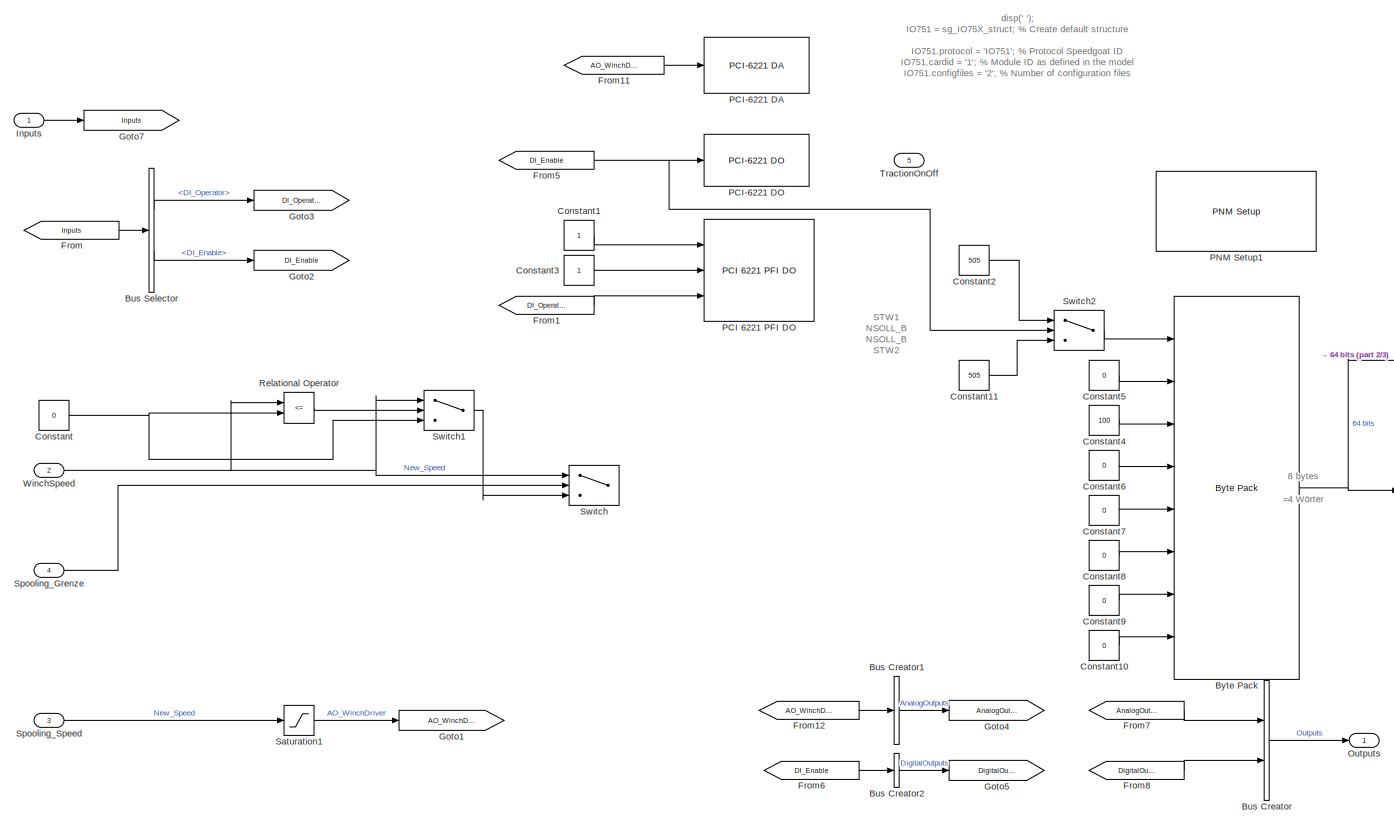
[diagram: Outputs - part 1/3, left side, full height]
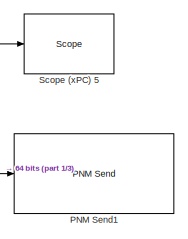
[diagram: Outputs - part 2/3, middle right region]
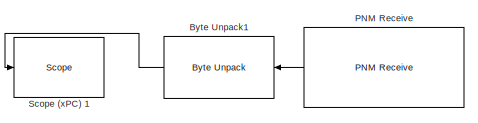
[diagram: Outputs - part 3/3, middle right region]
BLOCK [SubSystem] Outputs
  Ports = [5, 1]
  RequestExecContextInheritance = off
  Variant = off
BLOCK [BusCreator] Outputs/Bus Creator
  DisplayOption = bar
  InheritFromInputs = on
  Inputs = 2
  Ports = [2, 1]
BLOCK [BusCreator] Outputs/Bus Creator1
  DisplayOption = bar
  InheritFromInputs = on
  Inputs = 1
  Ports = [1, 1]
BLOCK [BusCreator] Outputs/Bus Creator2
  DisplayOption = bar
  InheritFromInputs = on
  Inputs = 1
  Ports = [1, 1]
BLOCK [BusSelector] Outputs/Bus Selector
  OutputAsBus = off
  OutputSignals = DgInputs.DI_Operator,DgInputs.DI_Enable
  Ports = [1, 2]
BLOCK [Reference] Outputs/Byte Pack  REF=etargetslib/Byte Pack
  Ports = [8, 1]
  SourceBlock = etargetslib/Byte Pack
  SourceType = Byte pack
BLOCK [Reference] Outputs/Byte Unpack1  REF=etargetslib/Byte Unpack
  Ports = [1, 1]
  SourceBlock = etargetslib/Byte Unpack
  SourceType = Byte Unpack
BLOCK [Constant] Outputs/Constant
  Value = 0
BLOCK [Constant] Outputs/Constant1
BLOCK [Constant] Outputs/Constant10
  OutDataTypeStr = uint8
  Value = 0
BLOCK [Constant] Outputs/Constant11
  OutDataTypeStr = uint8
  Value = 505
BLOCK [Constant] Outputs/Constant2
  OutDataTypeStr = uint8
  Value = 505
BLOCK [Constant] Outputs/Constant3
BLOCK [Constant] Outputs/Constant4
  OutDataTypeStr = uint8
  Value = 100
BLOCK [Constant] Outputs/Constant5
  OutDataTypeStr = uint8
  Value = 0
BLOCK [Constant] Outputs/Constant6
  OutDataTypeStr = uint8
  Value = 0
BLOCK [Constant] Outputs/Constant7
  OutDataTypeStr = uint8
  Value = 0
BLOCK [Constant] Outputs/Constant8
  OutDataTypeStr = uint8
  Value = 0
BLOCK [Constant] Outputs/Constant9
  OutDataTypeStr = uint8
  Value = 0
BLOCK [From] Outputs/From
  GotoTag = Inputs
BLOCK [From] Outputs/From1
  GotoTag = DI_Operator
BLOCK [From] Outputs/From11
  GotoTag = AO_WinchDriver
BLOCK [From] Outputs/From12
  GotoTag = AO_WinchDriver
BLOCK [From] Outputs/From5
  GotoTag = DI_Enable
BLOCK [From] Outputs/From6
  GotoTag = DI_Enable
BLOCK [From] Outputs/From7
  GotoTag = AnalogOutputs
BLOCK [From] Outputs/From8
  GotoTag = DigitalOutputs
BLOCK [Goto] Outputs/Goto1
  GotoTag = AO_WinchDriver
BLOCK [Goto] Outputs/Goto2
  GotoTag = DI_Enable
BLOCK [Goto] Outputs/Goto3
  GotoTag = DI_Operator
BLOCK [Goto] Outputs/Goto4
  GotoTag = AnalogOutputs
BLOCK [Goto] Outputs/Goto5
  GotoTag = DigitalOutputs
BLOCK [Goto] Outputs/Goto7
  GotoTag = Inputs
BLOCK [Inport] Outputs/Inputs
  IconDisplay = Port number
BLOCK [Outport] Outputs/Outputs
  IconDisplay = Port number
BLOCK [Reference] Outputs/PCI 6221 PFI DO   REF=xpcnilib/Digital
Output/M Series/PCI 6221 PFI DO 
  Ports = [3]
  SourceBlock = xpcnilib/Digital\nOutput/M Series/PCI 6221 PFI DO
  SourceProductBaseCode = XP
  SourceProductName = Simulink Real-Time
  SourceType = pfioutnipci6221
BLOCK [Reference] Outputs/PCI-6221 DA  REF=xpcnilib/D//A/M Series/PCI-6221 DA
  Ports = [1]
  SourceBlock = xpcnilib/D//A/M Series/PCI-6221 DA
  SourceProductBaseCode = XP
  SourceProductName = Simulink Real-Time
  SourceType = danipci6221
BLOCK [Reference] Outputs/PCI-6221 DO  REF=xpcnilib/Digital
Output/M Series/PCI-6221 DO
  Ports = [1]
  SourceBlock = xpcnilib/Digital\nOutput/M Series/PCI-6221 DO
  SourceProductBaseCode = XP
  SourceProductName = Simulink Real-Time
  SourceType = donipci6221
BLOCK [Reference] Outputs/PNM Receive  REF=speedgoatlib_IO751/PNM Receive
  Ports = [0, 1]
  SourceBlock = speedgoatlib_IO751/PNM Receive
  SourceProductName = Simulink Real-Time: Speedgoat I/O Driver Library
BLOCK [Reference] Outputs/PNM Send1  REF=speedgoatlib_IO751/PNM Send
  Ports = [1]
  SourceBlock = speedgoatlib_IO751/PNM Send
  SourceProductName = Simulink Real-Time: Speedgoat I/O Driver Library
BLOCK [Reference] Outputs/PNM Setup1  REF=speedgoatlib_IO751/PNM Setup
  Ports = []
  SourceBlock = speedgoatlib_IO751/PNM Setup
  SourceProductName = Simulink Real-Time: Speedgoat I/O Driver Library
  SourceType = setup_IO75X
BLOCK [RelationalOperator] Outputs/Relational Operator
  InputSameDT = off
  Operator = <=
  OutDataTypeStr = boolean
  Ports = [2, 1]
  RndMeth = Simplest
BLOCK [Saturate] Outputs/Saturation1
  InputPortMap = u0
  LowerLimit = -AOsat
  Ports = [1, 1]
  UpperLimit = AOsat
BLOCK [Reference] Outputs/Scope (xPC) 1  REF=slrtlib/Displays and
Logging/Scope 
  Ports = [1]
  SourceBlock = slrtlib/Displays and\nLogging/Scope
  SourceProductBaseCode = XP
  SourceProductName = Simulink Real-Time
  SourceType = xpcscopeblock
BLOCK [Reference] Outputs/Scope (xPC) 5  REF=slrtlib/Displays and
Logging/Scope 
  Ports = [1]
  SourceBlock = slrtlib/Displays and\nLogging/Scope
  SourceProductBaseCode = XP
  SourceProductName = Simulink Real-Time
  SourceType = xpcscopeblock
BLOCK [Inport] Outputs/Spooling_Grenze
  IconDisplay = Port number
  Port = 4
BLOCK [Inport] Outputs/Spooling_Speed
  IconDisplay = Port number
  Port = 3
BLOCK [Switch] Outputs/Switch
  Criteria = u2 > Threshold
  InputSameDT = off
  OutDataTypeStr = uint8
  SaturateOnIntegerOverflow = off
BLOCK [Switch] Outputs/Switch1
  Criteria = u2 > Threshold
  InputSameDT = off
  SaturateOnIntegerOverflow = off
BLOCK [Switch] Outputs/Switch2
  Criteria = u2 > Threshold
  InputSameDT = off
  SaturateOnIntegerOverflow = off
BLOCK [Inport] Outputs/TractionOnOff
  IconDisplay = Port number
  Port = 5
BLOCK [Inport] Outputs/WinchSpeed
  IconDisplay = Port number
  Port = 2
BLOCK [SubSystem] Spooling_Pos_Controlled
  Ports = [1, 1]
  RequestExecContextInheritance = off
  Variant = off
BLOCK [BusSelector] Spooling_Pos_Controlled/Bus Selector
  OutputAsBus = off
  OutputSignals = Analog_inputs.AI_mot_winch_pos
  Ports = [1, 1]
BLOCK [Constant] Spooling_Pos_Controlled/Constant1
  Value = 0
BLOCK [Delay] Spooling_Pos_Controlled/Delay
  DelayLength = 1
  InitialCondition = 0
  InputPortMap = u0
  Ports = [1, 1]
BLOCK [Delay] Spooling_Pos_Controlled/Delay1
  DelayLength = 1
  InitialCondition = 0
  InputPortMap = u0
  Ports = [1, 1]
BLOCK [Gain] Spooling_Pos_Controlled/Gain
  Gain = -1
  OutDataTypeStr = Inherit: Inherit via internal rule
  ParamDataTypeStr = Inherit: Inherit via internal rule
  SaturateOnIntegerOverflow = off
BLOCK [Gain] Spooling_Pos_Controlled/Gain1
  Gain = -1
  OutDataTypeStr = Inherit: Inherit via internal rule
  ParamDataTypeStr = Inherit: Inherit via internal rule
  SaturateOnIntegerOverflow = off
BLOCK [Inport] Spooling_Pos_Controlled/Inputs
  IconDisplay = Port number
BLOCK [RelationalOperator] Spooling_Pos_Controlled/Relational Operator
  InputSameDT = off
  Operator = ==
  OutDataTypeStr = boolean
  Ports = [2, 1]
  RndMeth = Simplest
BLOCK [RelationalOperator] Spooling_Pos_Controlled/Relational Operator1
  InputSameDT = off
  Operator = >
  OutDataTypeStr = boolean
  Ports = [2, 1]
  RndMeth = Simplest
BLOCK [RelationalOperator] Spooling_Pos_Controlled/Relational Operator2
  InputSameDT = off
  Operator = ==
  OutDataTypeStr = boolean
  Ports = [2, 1]
  RndMeth = Simplest
BLOCK [RelationalOperator] Spooling_Pos_Controlled/Relational Operator3
  InputSameDT = off
  Operator = <
  OutDataTypeStr = boolean
  Ports = [2, 1]
  RndMeth = Simplest
BLOCK [Constant] Spooling_Pos_Controlled/Spooling Geschw.
  Value = 1000
BLOCK [Outport] Spooling_Pos_Controlled/Spooling_Speed
  IconDisplay = Port number
BLOCK [Switch] Spooling_Pos_Controlled/Switch
  Criteria = u2 > Threshold
  InputSameDT = off
  SaturateOnIntegerOverflow = off
BLOCK [Switch] Spooling_Pos_Controlled/Switch1
  Criteria = u2 > Threshold
  InputSameDT = off
  SaturateOnIntegerOverflow = off
BLOCK [Switch] Spooling_Pos_Controlled/Switch2
  Criteria = u2 > Threshold
  InputSameDT = off
  SaturateOnIntegerOverflow = off
BLOCK [Switch] Spooling_Pos_Controlled/Switch3
  Criteria = u2 > Threshold
  InputSameDT = off
  SaturateOnIntegerOverflow = off
BLOCK [Gain] Spooling_Pos_Controlled/Umrechnung
  OutDataTypeStr = Inherit: Inherit via internal rule
  ParamDataTypeStr = Inherit: Inherit via internal rule
  SaturateOnIntegerOverflow = off
BLOCK [Constant] Spooling_Pos_Controlled/erste Grenze Spooling
  Value = 500
BLOCK [SubSystem] Spooling_Speed_Controlled
  Ports = [2, 2]
  RequestExecContextInheritance = off
  Variant = off
BLOCK [BusSelector] Spooling_Speed_Controlled/Bus Selector
  OutputAsBus = off
  OutputSignals = Analog_inputs.AI_mot_winch_pos
  Ports = [1, 1]
BLOCK [Gain] Spooling_Speed_Controlled/Gain
  Gain = -1
  OutDataTypeStr = Inherit: Inherit via internal rule
  ParamDataTypeStr = Inherit: Inherit via internal rule
  SaturateOnIntegerOverflow = off
BLOCK [Gain] Spooling_Speed_Controlled/Gain1
  Gain = 2
  OutDataTypeStr = Inherit: Inherit via internal rule
  ParamDataTypeStr = Inherit: Inherit via internal rule
  SaturateOnIntegerOverflow = off
BLOCK [RelationalOperator] Spooling_Speed_Controlled/Relational Operator
  InputSameDT = off
  Operator = <
  OutDataTypeStr = boolean
  Ports = [2, 1]
  RndMeth = Simplest
BLOCK [RelationalOperator] Spooling_Speed_Controlled/Relational Operator1
  InputSameDT = off
  Operator = <
  OutDataTypeStr = boolean
  Ports = [2, 1]
  RndMeth = Simplest
BLOCK [Constant] Spooling_Speed_Controlled/Spooling Grenze
  Value = 500
BLOCK [Outport] Spooling_Speed_Controlled/Spooling_Grenze
  IconDisplay = Port number
  Port = 2
BLOCK [Outport] Spooling_Speed_Controlled/Spooling_Speed
  IconDisplay = Port number
BLOCK [Switch] Spooling_Speed_Controlled/Switch
  Criteria = u2 > Threshold
  InputSameDT = off
  SaturateOnIntegerOverflow = off
BLOCK [Gain] Spooling_Speed_Controlled/Umrechnung
  Gain = 0.01
  OutDataTypeStr = Inherit: Inherit via internal rule
  ParamDataTypeStr = Inherit: Inherit via internal rule
  SaturateOnIntegerOverflow = off
BLOCK [Gain] Spooling_Speed_Controlled/Umrechnung1
  Gain = 0.1
  OutDataTypeStr = Inherit: Inherit via internal rule
  ParamDataTypeStr = Inherit: Inherit via internal rule
  SaturateOnIntegerOverflow = off
BLOCK [Inport] Spooling_Speed_Controlled/WinchPos
  IconDisplay = Port number
  Port = 2
BLOCK [Inport] Spooling_Speed_Controlled/WinchSpeed
  IconDisplay = Port number
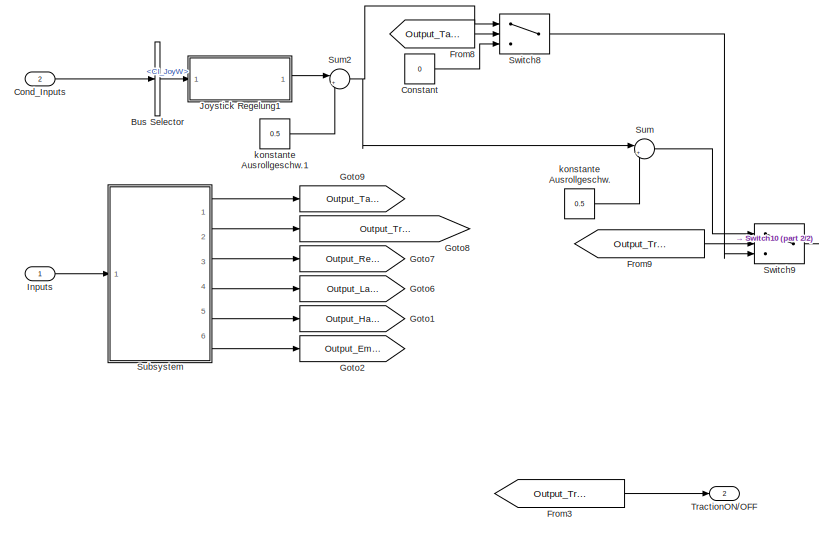
[diagram: Winch_Conrtol - part 1/2, left side, full height]
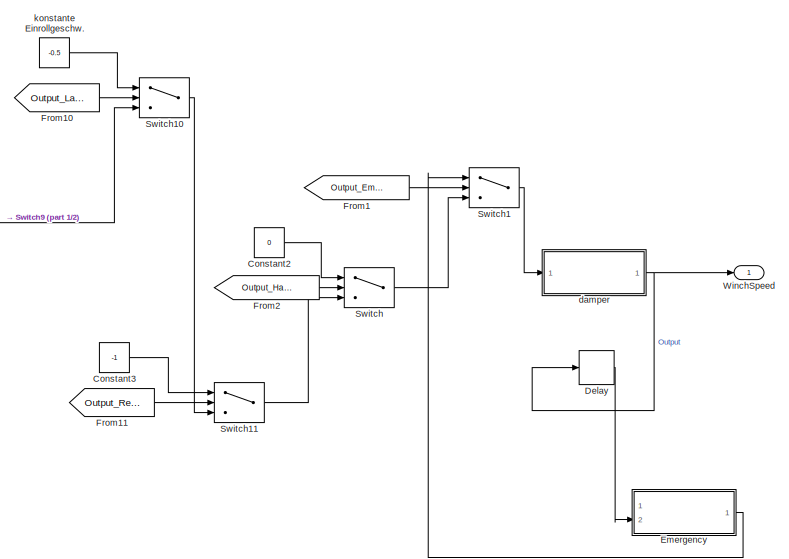
[diagram: Winch_Conrtol - part 2/2, right side, full height]
BLOCK [SubSystem] Winch_Conrtol
  Ports = [2, 2]
  RequestExecContextInheritance = off
  Variant = off
BLOCK [BusSelector] Winch_Conrtol/Bus Selector
  OutputAsBus = off
  OutputSignals = CI_Joy_Inputs.CI_JoyW
  Ports = [1, 1]
BLOCK [Inport] Winch_Conrtol/Cond_Inputs
  IconDisplay = Port number
  Port = 2
BLOCK [Constant] Winch_Conrtol/Constant
  Value = 0
BLOCK [Constant] Winch_Conrtol/Constant2
  Value = 0
BLOCK [Constant] Winch_Conrtol/Constant3
  Value = -1
BLOCK [Delay] Winch_Conrtol/Delay
  DelayLength = 1
  InitialCondition = 0
  InputPortMap = u0
  Ports = [1, 1]
BLOCK [SubSystem] Winch_Conrtol/Emergency
  Ports = [2, 1]
  RequestExecContextInheritance = off
  Variant = off
BLOCK [Constant] Winch_Conrtol/Emergency/Beschleunigung
  SampleTime = 0.001
  Value = 0.00125
BLOCK [Gain] Winch_Conrtol/Emergency/Gain
  Gain = -1
  OutDataTypeStr = Inherit: Inherit via internal rule
  ParamDataTypeStr = Inherit: Inherit via internal rule
  SaturateOnIntegerOverflow = off
BLOCK [Inport] Winch_Conrtol/Emergency/Kraftsensor
  IconDisplay = Port number
BLOCK [Outport] Winch_Conrtol/Emergency/Out1
  IconDisplay = Port number
BLOCK [RelationalOperator] Winch_Conrtol/Emergency/Relational Operator
  InputSameDT = off
  OutDataTypeStr = boolean
  Ports = [2, 1]
  RndMeth = Simplest
BLOCK [RelationalOperator] Winch_Conrtol/Emergency/Relational Operator1
  InputSameDT = off
  Operator = <
  OutDataTypeStr = boolean
  Ports = [2, 1]
  RndMeth = Simplest
BLOCK [Sum] Winch_Conrtol/Emergency/Sum
  IconShape = round
  InputSameDT = off
  Inputs = |++
  OutDataTypeStr = Inherit: Inherit via internal rule
  Ports = [2, 1]
  SaturateOnIntegerOverflow = off
BLOCK [Sum] Winch_Conrtol/Emergency/Sum1
  IconShape = round
  InputSameDT = off
  Inputs = |++
  OutDataTypeStr = Inherit: Inherit via internal rule
  Ports = [2, 1]
  SaturateOnIntegerOverflow = off
BLOCK [Switch] Winch_Conrtol/Emergency/Switch
  Criteria = u2 > Threshold
  InputSameDT = off
  SaturateOnIntegerOverflow = off
BLOCK [Switch] Winch_Conrtol/Emergency/Switch1
  Criteria = u2 > Threshold
  InputSameDT = off
  SaturateOnIntegerOverflow = off
BLOCK [Inport] Winch_Conrtol/Emergency/WinchSoll
  IconDisplay = Port number
  Port = 2
BLOCK [Constant] Winch_Conrtol/Emergency/obere Kraftsensor Grenze
  SampleTime = 0.001
BLOCK [Constant] Winch_Conrtol/Emergency/untere Kraftsensor Grenze
  SampleTime = 0.001
  Value = -1
BLOCK [From] Winch_Conrtol/From1
  GotoTag = Output_Emergency
BLOCK [From] Winch_Conrtol/From10
  GotoTag = Output_Landing
BLOCK [From] Winch_Conrtol/From11
  GotoTag = Output_Return
BLOCK [From] Winch_Conrtol/From2
  GotoTag = Output_Halt
BLOCK [From] Winch_Conrtol/From3
  GotoTag = Output_TractionAdvanced
BLOCK [From] Winch_Conrtol/From8
  GotoTag = Output_TakeOff
BLOCK [From] Winch_Conrtol/From9
  GotoTag = Output_TractionAdvanced
BLOCK [Goto] Winch_Conrtol/Goto1
  GotoTag = Output_Halt
BLOCK [Goto] Winch_Conrtol/Goto2
  GotoTag = Output_Emergency
BLOCK [Goto] Winch_Conrtol/Goto6
  GotoTag = Output_Landing
BLOCK [Goto] Winch_Conrtol/Goto7
  GotoTag = Output_Return
BLOCK [Goto] Winch_Conrtol/Goto8
  GotoTag = Output_TractionAdvanced
BLOCK [Goto] Winch_Conrtol/Goto9
  GotoTag = Output_TakeOff
BLOCK [Inport] Winch_Conrtol/Inputs
  IconDisplay = Port number
BLOCK [SubSystem] Winch_Conrtol/Joystick Regelung1
  Ports = [1, 1]
  RequestExecContextInheritance = off
  Variant = off
BLOCK [Delay] Winch_Conrtol/Joystick Regelung1/Delay
  DelayLength = 1
  InitialCondition = 0
  InputPortMap = u0
  Ports = [1, 1]
BLOCK [Inport] Winch_Conrtol/Joystick Regelung1/Joy_W
  IconDisplay = Port number
BLOCK [SubSystem] Winch_Conrtol/Joystick Regelung1/Joystick-Steuerung
  Ports = [2, 1]
  RequestExecContextInheritance = off
  Variant = off
BLOCK [Constant] Winch_Conrtol/Joystick Regelung1/Joystick-Steuerung/Beschleunigung
  SampleTime = 0.001
  Value = 0.00125
BLOCK [Gain] Winch_Conrtol/Joystick Regelung1/Joystick-Steuerung/Gain
  Gain = -1
  OutDataTypeStr = Inherit: Inherit via internal rule
  ParamDataTypeStr = Inherit: Inherit via internal rule
  SaturateOnIntegerOverflow = off
BLOCK [Inport] Winch_Conrtol/Joystick Regelung1/Joystick-Steuerung/Joystick-Wert
  IconDisplay = Port number
BLOCK [Outport] Winch_Conrtol/Joystick Regelung1/Joystick-Steuerung/Out1
  IconDisplay = Port number
BLOCK [RelationalOperator] Winch_Conrtol/Joystick Regelung1/Joystick-Steuerung/Relational Operator
  InputSameDT = off
  OutDataTypeStr = boolean
  Ports = [2, 1]
  RndMeth = Simplest
BLOCK [RelationalOperator] Winch_Conrtol/Joystick Regelung1/Joystick-Steuerung/Relational Operator1
  InputSameDT = off
  Operator = <
  OutDataTypeStr = boolean
  Ports = [2, 1]
  RndMeth = Simplest
BLOCK [Sum] Winch_Conrtol/Joystick Regelung1/Joystick-Steuerung/Sum
  IconShape = round
  InputSameDT = off
  Inputs = |++
  OutDataTypeStr = Inherit: Inherit via internal rule
  Ports = [2, 1]
  SaturateOnIntegerOverflow = off
BLOCK [Sum] Winch_Conrtol/Joystick Regelung1/Joystick-Steuerung/Sum1
  IconShape = round
  InputSameDT = off
  Inputs = |++
  OutDataTypeStr = Inherit: Inherit via internal rule
  Ports = [2, 1]
  SaturateOnIntegerOverflow = off
BLOCK [Switch] Winch_Conrtol/Joystick Regelung1/Joystick-Steuerung/Switch
  Criteria = u2 > Threshold
  InputSameDT = off
  SaturateOnIntegerOverflow = off
BLOCK [Switch] Winch_Conrtol/Joystick Regelung1/Joystick-Steuerung/Switch1
  Criteria = u2 > Threshold
  InputSameDT = off
  SaturateOnIntegerOverflow = off
BLOCK [Inport] Winch_Conrtol/Joystick Regelung1/Joystick-Steuerung/WinchSoll
  IconDisplay = Port number
  Port = 2
BLOCK [Constant] Winch_Conrtol/Joystick Regelung1/Joystick-Steuerung/obere Grenze
  SampleTime = 0.001
BLOCK [Constant] Winch_Conrtol/Joystick Regelung1/Joystick-Steuerung/untere Grenze
  SampleTime = 0.001
  Value = -1
BLOCK [Outport] Winch_Conrtol/Joystick Regelung1/Out1
  IconDisplay = Port number
BLOCK [SubSystem] Winch_Conrtol/Joystick Regelung1/damper
  Ports = [1, 1]
  RequestExecContextInheritance = off
  Variant = off
BLOCK [Constant] Winch_Conrtol/Joystick Regelung1/damper/Beschleunigung
  SampleTime = 0.001
  Value = 0.00125
BLOCK [Reference] Winch_Conrtol/Joystick Regelung1/damper/Compare To Zero  REF=simulink/Logic and Bit
Operations/Compare
To Zero
  Ports = [1, 1]
  SourceBlock = simulink/Logic and Bit\nOperations/Compare\nTo Zero
  SourceProductBaseCode = SL
  SourceProductName = Simulink
  SourceType = Compare To Zero
BLOCK [Reference] Winch_Conrtol/Joystick Regelung1/damper/Compare To Zero1  REF=simulink/Logic and Bit
Operations/Compare
To Zero
  Ports = [1, 1]
  SourceBlock = simulink/Logic and Bit\nOperations/Compare\nTo Zero
  SourceProductBaseCode = SL
  SourceProductName = Simulink
  SourceType = Compare To Zero
BLOCK [Constant] Winch_Conrtol/Joystick Regelung1/damper/Constant1
  SampleTime = 0.001
  Value = 0
BLOCK [Delay] Winch_Conrtol/Joystick Regelung1/damper/Delay
  DelayLength = 1
  InitialCondition = 0
  InputPortMap = u0
  Ports = [1, 1]
BLOCK [Delay] Winch_Conrtol/Joystick Regelung1/damper/Delay1
  DelayLength = 1
  InitialCondition = 0
  InputPortMap = u0
  Ports = [1, 1]
BLOCK [Gain] Winch_Conrtol/Joystick Regelung1/damper/Gain
  Gain = -1
  OutDataTypeStr = Inherit: Inherit via internal rule
  ParamDataTypeStr = Inherit: Inherit via internal rule
  SaturateOnIntegerOverflow = off
BLOCK [Outport] Winch_Conrtol/Joystick Regelung1/damper/Out1
  IconDisplay = Port number
BLOCK [Inport] Winch_Conrtol/Joystick Regelung1/damper/SollWert
  IconDisplay = Port number
BLOCK [Sum] Winch_Conrtol/Joystick Regelung1/damper/Sum
  IconShape = round
  InputSameDT = off
  Inputs = |+-
  OutDataTypeStr = Inherit: Inherit via internal rule
  Ports = [2, 1]
  SaturateOnIntegerOverflow = off
BLOCK [Sum] Winch_Conrtol/Joystick Regelung1/damper/Sum1
  IconShape = round
  InputSameDT = off
  Inputs = |++
  OutDataTypeStr = Inherit: Inherit via internal rule
  Ports = [2, 1]
  SaturateOnIntegerOverflow = off
BLOCK [Switch] Winch_Conrtol/Joystick Regelung1/damper/Switch
  Criteria = u2 > Threshold
  InputSameDT = off
  SaturateOnIntegerOverflow = off
BLOCK [Switch] Winch_Conrtol/Joystick Regelung1/damper/Switch1
  Criteria = u2 > Threshold
  InputSameDT = off
  SaturateOnIntegerOverflow = off
BLOCK [SubSystem] Winch_Conrtol/Subsystem
  Ports = [1, 6]
  RequestExecContextInheritance = off
  Variant = off
BLOCK [BusSelector] Winch_Conrtol/Subsystem/Bus Selector
  OutputAsBus = off
  OutputSignals = DgInputs.DI_Enable,DgInputs.DI_WinchMode,DgInputs.DI_Takeoff,DgInputs.DI_Landing
  Ports = [1, 4]
BLOCK [Constant] Winch_Conrtol/Subsystem/Constant2
BLOCK [Constant] Winch_Conrtol/Subsystem/Constant3
  Value = 0
BLOCK [Delay] Winch_Conrtol/Subsystem/Delay1
  DelayLength = 1
  InitialCondition = 0
  InputPortMap = u0
  Ports = [1, 1]
BLOCK [Delay] Winch_Conrtol/Subsystem/Delay2
  DelayLength = 1
  InitialCondition = 0
  InputPortMap = u0
  Ports = [1, 1]
BLOCK [Delay] Winch_Conrtol/Subsystem/Delay3
  DelayLength = 1
  InitialCondition = 0
  InputPortMap = u0
  Ports = [1, 1]
BLOCK [Delay] Winch_Conrtol/Subsystem/Delay4
  DelayLength = 1
  InitialCondition = 0
  InputPortMap = u0
  Ports = [1, 1]
BLOCK [Outport] Winch_Conrtol/Subsystem/Emergency
  IconDisplay = Port number
  Port = 6
BLOCK [Outport] Winch_Conrtol/Subsystem/Halt
  IconDisplay = Port number
  Port = 5
BLOCK [Inport] Winch_Conrtol/Subsystem/In1
  IconDisplay = Port number
BLOCK [Outport] Winch_Conrtol/Subsystem/Landing
  IconDisplay = Port number
  Port = 4
BLOCK [Logic] Winch_Conrtol/Subsystem/Logical Operator
  AllPortsSameDT = off
  Inputs = 3
  Operator = OR
  OutDataTypeStr = boolean
  Ports = [3, 1]
BLOCK [Logic] Winch_Conrtol/Subsystem/Logical Operator1
  AllPortsSameDT = off
  OutDataTypeStr = boolean
  Ports = [2, 1]
BLOCK [Logic] Winch_Conrtol/Subsystem/Logical Operator2
  AllPortsSameDT = off
  Inputs = 3
  Operator = OR
  OutDataTypeStr = boolean
  Ports = [3, 1]
BLOCK [Logic] Winch_Conrtol/Subsystem/Logical Operator3
  AllPortsSameDT = off
  OutDataTypeStr = boolean
  Ports = [2, 1]
BLOCK [Logic] Winch_Conrtol/Subsystem/Logical Operator4
  AllPortsSameDT = off
  Operator = OR
  OutDataTypeStr = boolean
  Ports = [2, 1]
BLOCK [Logic] Winch_Conrtol/Subsystem/Logical Operator5
  AllPortsSameDT = off
  OutDataTypeStr = boolean
  Ports = [2, 1]
BLOCK [Logic] Winch_Conrtol/Subsystem/Logical Operator6
  AllPortsSameDT = off
  Operator = OR
  OutDataTypeStr = boolean
  Ports = [2, 1]
BLOCK [Logic] Winch_Conrtol/Subsystem/Logical Operator7
  AllPortsSameDT = off
  OutDataTypeStr = boolean
  Ports = [2, 1]
BLOCK [Outport] Winch_Conrtol/Subsystem/Return
  IconDisplay = Port number
  Port = 3
BLOCK [Switch] Winch_Conrtol/Subsystem/Switch
  Criteria = u2 > Threshold
  InputSameDT = off
  SaturateOnIntegerOverflow = off
BLOCK [Switch] Winch_Conrtol/Subsystem/Switch1
  Criteria = u2 > Threshold
  InputSameDT = off
  SaturateOnIntegerOverflow = off
BLOCK [Switch] Winch_Conrtol/Subsystem/Switch2
  Criteria = u2 > Threshold
  InputSameDT = off
  SaturateOnIntegerOverflow = off
BLOCK [Switch] Winch_Conrtol/Subsystem/Switch3
  Criteria = u2 > Threshold
  InputSameDT = off
  SaturateOnIntegerOverflow = off
BLOCK [Switch] Winch_Conrtol/Subsystem/Switch4
  Criteria = u2 > Threshold
  InputSameDT = off
  SaturateOnIntegerOverflow = off
BLOCK [Switch] Winch_Conrtol/Subsystem/Switch5
  Criteria = u2 > Threshold
  InputSameDT = off
  SaturateOnIntegerOverflow = off
BLOCK [Switch] Winch_Conrtol/Subsystem/Switch6
  Criteria = u2 > Threshold
  InputSameDT = off
  SaturateOnIntegerOverflow = off
BLOCK [Switch] Winch_Conrtol/Subsystem/Switch7
  Criteria = u2 > Threshold
  InputSameDT = off
  SaturateOnIntegerOverflow = off
BLOCK [Outport] Winch_Conrtol/Subsystem/TakeOff
  IconDisplay = Port number
BLOCK [Outport] Winch_Conrtol/Subsystem/TractionAdvanced
  IconDisplay = Port number
  Port = 2
BLOCK [Sum] Winch_Conrtol/Sum
  IconShape = round
  InputSameDT = off
  Inputs = |++
  OutDataTypeStr = Inherit: Inherit via internal rule
  Ports = [2, 1]
  SaturateOnIntegerOverflow = off
BLOCK [Sum] Winch_Conrtol/Sum2
  IconShape = round
  InputSameDT = off
  Inputs = |++
  OutDataTypeStr = Inherit: Inherit via internal rule
  Ports = [2, 1]
  SaturateOnIntegerOverflow = off
BLOCK [Switch] Winch_Conrtol/Switch
  Criteria = u2 > Threshold
  InputSameDT = off
  SaturateOnIntegerOverflow = off
BLOCK [Switch] Winch_Conrtol/Switch1
  Criteria = u2 > Threshold
  InputSameDT = off
  SaturateOnIntegerOverflow = off
BLOCK [Switch] Winch_Conrtol/Switch10
  Criteria = u2 > Threshold
  InputSameDT = off
  SaturateOnIntegerOverflow = off
BLOCK [Switch] Winch_Conrtol/Switch11
  Criteria = u2 > Threshold
  InputSameDT = off
  SaturateOnIntegerOverflow = off
BLOCK [Switch] Winch_Conrtol/Switch8
  Criteria = u2 > Threshold
  InputSameDT = off
  SaturateOnIntegerOverflow = off
BLOCK [Switch] Winch_Conrtol/Switch9
  Criteria = u2 > Threshold
  InputSameDT = off
  SaturateOnIntegerOverflow = off
BLOCK [Outport] Winch_Conrtol/TractionON//OFF
  IconDisplay = Port number
  Port = 2
BLOCK [Outport] Winch_Conrtol/WinchSpeed
  IconDisplay = Port number
BLOCK [SubSystem] Winch_Conrtol/damper
  Ports = [1, 1]
  RequestExecContextInheritance = off
  Variant = off
BLOCK [Constant] Winch_Conrtol/damper/Beschleunigung
  SampleTime = 0.001
  Value = 0.0025
BLOCK [Reference] Winch_Conrtol/damper/Compare To Zero  REF=simulink/Logic and Bit
Operations/Compare
To Zero
  Ports = [1, 1]
  SourceBlock = simulink/Logic and Bit\nOperations/Compare\nTo Zero
  SourceProductBaseCode = SL
  SourceProductName = Simulink
  SourceType = Compare To Zero
BLOCK [Reference] Winch_Conrtol/damper/Compare To Zero1  REF=simulink/Logic and Bit
Operations/Compare
To Zero
  Ports = [1, 1]
  SourceBlock = simulink/Logic and Bit\nOperations/Compare\nTo Zero
  SourceProductBaseCode = SL
  SourceProductName = Simulink
  SourceType = Compare To Zero
BLOCK [Constant] Winch_Conrtol/damper/Constant1
  SampleTime = 0.001
  Value = 0
BLOCK [Delay] Winch_Conrtol/damper/Delay
  DelayLength = 1
  InitialCondition = 0
  InputPortMap = u0
  Ports = [1, 1]
BLOCK [Delay] Winch_Conrtol/damper/Delay1
  DelayLength = 1
  InitialCondition = 0
  InputPortMap = u0
  Ports = [1, 1]
BLOCK [Gain] Winch_Conrtol/damper/Gain
  Gain = -1
  OutDataTypeStr = Inherit: Inherit via internal rule
  ParamDataTypeStr = Inherit: Inherit via internal rule
  SaturateOnIntegerOverflow = off
BLOCK [Outport] Winch_Conrtol/damper/Out1
  IconDisplay = Port number
BLOCK [Inport] Winch_Conrtol/damper/SollWert
  IconDisplay = Port number
BLOCK [Sum] Winch_Conrtol/damper/Sum
  IconShape = round
  InputSameDT = off
  Inputs = |+-
  OutDataTypeStr = Inherit: Inherit via internal rule
  Ports = [2, 1]
  SaturateOnIntegerOverflow = off
BLOCK [Sum] Winch_Conrtol/damper/Sum1
  IconShape = round
  InputSameDT = off
  Inputs = |++
  OutDataTypeStr = Inherit: Inherit via internal rule
  Ports = [2, 1]
  SaturateOnIntegerOverflow = off
BLOCK [Switch] Winch_Conrtol/damper/Switch
  Criteria = u2 > Threshold
  InputSameDT = off
  SaturateOnIntegerOverflow = off
BLOCK [Switch] Winch_Conrtol/damper/Switch1
  Criteria = u2 > Threshold
  InputSameDT = off
  SaturateOnIntegerOverflow = off
BLOCK [Constant] Winch_Conrtol/konstante Ausrollgeschw.
  Value = 0.5
BLOCK [Constant] Winch_Conrtol/konstante Ausrollgeschw.1
  Value = 0.5
BLOCK [Constant] Winch_Conrtol/konstante Einrollgeschw.
  Value = -0.5
ANNOTATION Outputs: disp(' '); IO751 = sg_IO75X_struct; % Create default structure IO751.protocol = 'IO751'; % Protocol Speedgoat ID IO751.cardid = '1'; % Module ID as defined in the model IO751.configfiles = '2'; % Number of configuration files IO751.configPath = '<userpath>\Documents\GitHub\speedgoat-ftero\for Ftero\Software'; % Absolute file path or '' for current dir IO751.configfile1 = 'first_Controller.nxd'; % ...<+166ch>
ANNOTATION Outputs: 8 bytes =4 Wörter
ANNOTATION Outputs: STW1 NSOLL_B NSOLL_B STW2
LINE Auxiliary variables/Constat:1 -> Auxiliary variables/Sum:1
NET Auxiliary variables/Sum:1 -> Auxiliary variables/Ts_ker_time_int:1, Auxiliary variables/Unit Delay:1
LINE Auxiliary variables/Unit Delay:1 -> Auxiliary variables/Sum:2
LINE Auxiliary variables:1 -> Goto5:1
LINE From10:1 -> Winch_Conrtol:1
LINE From11:1 -> Winch_Conrtol:2
LINE From12:1 -> Input conditioning and estimators:2
LINE From13:1 -> Outputs:5
LINE From15:1 -> Outputs:2
LINE From16:1 -> Spooling_Pos_Controlled:1
LINE From17:1 -> Outputs:3
LINE From1:1 -> Spooling_Speed_Controlled:1
LINE From2:1 -> Outputs:1
LINE From3:1 -> Spooling_Speed_Controlled:2
LINE From4:1 -> Logging:4
LINE From5:1 -> Outputs:4
LINE From6:1 -> Input conditioning and estimators:1
LINE From7:1 -> Logging:1
LINE From8:1 -> Logging:2
LINE From9:1 -> Logging:3
LINE Input conditioning and estimators/Bus Creator:1 -> Input conditioning and estimators/Cond_inputs:1
LINE Input conditioning and estimators/From1:1 -> Input conditioning and estimators/Subsystem1:1
LINE Input conditioning and estimators/From2:1 -> Input conditioning and estimators/Bus Creator:1
LINE Input conditioning and estimators/From3:1 -> Input conditioning and estimators/Bus Creator:2
LINE Input conditioning and estimators/From4:1 -> Input conditioning and estimators/Subsystem2:1
LINE Input conditioning and estimators/From5:1 -> Input conditioning and estimators/Bus Creator:3
LINE Input conditioning and estimators/From6:1 -> Input conditioning and estimators/Subsystem1:2
LINE Input conditioning and estimators/From7:1 -> Input conditioning and estimators/Subsystem:1
LINE Input conditioning and estimators/Inputs:1 -> Input conditioning and estimators/Goto:1
LINE Input conditioning and estimators/Subsystem/Bus Creator:1 -> Input conditioning and estimators/Subsystem/CI_Joy_Inputs:1
LINE Input conditioning and estimators/Subsystem/Bus Selector:1 -> Input conditioning and estimators/Subsystem/Sum:2
LINE Input conditioning and estimators/Subsystem/Bus Selector:2 -> Input conditioning and estimators/Subsystem/Sum1:1
LINE Input conditioning and estimators/Subsystem/Constant1:1 -> Input conditioning and estimators/Subsystem/Sum1:2
LINE Input conditioning and estimators/Subsystem/Constant:1 -> Input conditioning and estimators/Subsystem/Sum:1
LINE Input conditioning and estimators/Subsystem/Discrete Transfer Fcn1:1 -> Input conditioning and estimators/Subsystem/Saturation1:1
LINE Input conditioning and estimators/Subsystem/Discrete Transfer Fcn:1 -> Input conditioning and estimators/Subsystem/Saturation:1
LINE Input conditioning and estimators/Subsystem/Gain1:1 -> Input conditioning and estimators/Subsystem/Discrete Transfer Fcn1:1
LINE Input conditioning and estimators/Subsystem/Gain:1 -> Input conditioning and estimators/Subsystem/Discrete Transfer Fcn:1
LINE Input conditioning and estimators/Subsystem/Inputs:1 -> Input conditioning and estimators/Subsystem/Bus Selector:1
LINE Input conditioning and estimators/Subsystem/Saturation1:1 -> Input conditioning and estimators/Subsystem/Bus Creator:2
LINE Input conditioning and estimators/Subsystem/Saturation:1 -> Input conditioning and estimators/Subsystem/Bus Creator:1
LINE Input conditioning and estimators/Subsystem/Sum1:1 -> Input conditioning and estimators/Subsystem/Gain1:1
LINE Input conditioning and estimators/Subsystem/Sum:1 -> Input conditioning and estimators/Subsystem/Gain:1
LINE Input conditioning and estimators/Subsystem1/Bus Creator:1 -> Input conditioning and estimators/Subsystem1/CI_Motors_Inputs:1
LINE Input conditioning and estimators/Subsystem1/Bus Selector1:1 -> Input conditioning and estimators/Subsystem1/Gain:1
LINE Input conditioning and estimators/Subsystem1/Bus Selector:1 -> Input conditioning and estimators/Subsystem1/Goto4:1
LINE Input conditioning and estimators/Subsystem1/Bus Selector:2 -> Input conditioning and estimators/Subsystem1/Goto1:1
LINE Input conditioning and estimators/Subsystem1/CI_JoyW:1 -> Input conditioning and estimators/Subsystem1/Bus Selector1:1
LINE Input conditioning and estimators/Subsystem1/From2:1 -> Input conditioning and estimators/Subsystem1/Subsystem:1
LINE Input conditioning and estimators/Subsystem1/From3:1 -> Input conditioning and estimators/Subsystem1/Subsystem2:3
LINE Input conditioning and estimators/Subsystem1/From5:1 -> Input conditioning and estimators/Subsystem1/Subsystem2:2
LINE Input conditioning and estimators/Subsystem1/From6:1 -> Input conditioning and estimators/Subsystem1/Subsystem2:1
LINE Input conditioning and estimators/Subsystem1/Gain:1 -> Input conditioning and estimators/Subsystem1/Goto3:1
LINE Input conditioning and estimators/Subsystem1/Inputs:1 -> Input conditioning and estimators/Subsystem1/Bus Selector:1
LINE Input conditioning and estimators/Subsystem1/Subsystem/AI_mot_winch_pos:1 -> Input conditioning and estimators/Subsystem1/Subsystem/Sum:2
LINE Input conditioning and estimators/Subsystem1/Subsystem/Constant1:1 -> Input conditioning and estimators/Subsystem1/Subsystem/Sum1:1
LINE Input conditioning and estimators/Subsystem1/Subsystem/Constant:1 -> Input conditioning and estimators/Subsystem1/Subsystem/Sum:1
LINE Input conditioning and estimators/Subsystem1/Subsystem/Discrete Transfer Fcn1:1 -> Input conditioning and estimators/Subsystem1/Subsystem/CI_WinchPos:1
LINE Input conditioning and estimators/Subsystem1/Subsystem/Gain:1 -> Input conditioning and estimators/Subsystem1/Subsystem/Sum1:2
LINE Input conditioning and estimators/Subsystem1/Subsystem/Sum1:1 -> Input conditioning and estimators/Subsystem1/Subsystem/Discrete Transfer Fcn1:1
LINE Input conditioning and estimators/Subsystem1/Subsystem/Sum:1 -> Input conditioning and estimators/Subsystem1/Subsystem/Gain:1
LINE Input conditioning and estimators/Subsystem1/Subsystem2/AI_mot_winch_pos:1 -> Input conditioning and estimators/Subsystem1/Subsystem2/Sum:2
LINE Input conditioning and estimators/Subsystem1/Subsystem2/Bus Creator:1 -> Input conditioning and estimators/Subsystem1/Subsystem2/CI_mot_winch_state:1
LINE Input conditioning and estimators/Subsystem1/Subsystem2/CI_JoyW:1 -> Input conditioning and estimators/Subsystem1/Subsystem2/Saturation1:1
LINE Input conditioning and estimators/Subsystem1/Subsystem2/Constant1:1 -> Input conditioning and estimators/Subsystem1/Subsystem2/Sum1:1
LINE Input conditioning and estimators/Subsystem1/Subsystem2/Constant2:1 -> Input conditioning and estimators/Subsystem1/Subsystem2/Switch:3
LINE Input conditioning and estimators/Subsystem1/Subsystem2/Constant:1 -> Input conditioning and estimators/Subsystem1/Subsystem2/Sum:1
LINE Input conditioning and estimators/Subsystem1/Subsystem2/DI_Enable:1 -> Input conditioning and estimators/Subsystem1/Subsystem2/Switch:2
LINE Input conditioning and estimators/Subsystem1/Subsystem2/Demux:1 -> Input conditioning and estimators/Subsystem1/Subsystem2/Bus Creator:1
NET Input conditioning and estimators/Subsystem1/Subsystem2/Demux:2 -> Input conditioning and estimators/Subsystem1/Subsystem2/Discrete Transfer Fcn:1, Input conditioning and estimators/Subsystem1/Subsystem2/Goto1:1
LINE Input conditioning and estimators/Subsystem1/Subsystem2/Discrete State-Space:1 -> Input conditioning and estimators/Subsystem1/Subsystem2/Demux:1
LINE Input conditioning and estimators/Subsystem1/Subsystem2/Discrete Transfer Fcn:1 -> Input conditioning and estimators/Subsystem1/Subsystem2/Bus Creator:2
LINE Input conditioning and estimators/Subsystem1/Subsystem2/From1:1 -> Input conditioning and estimators/Subsystem1/Subsystem2/Sum2:2
LINE Input conditioning and estimators/Subsystem1/Subsystem2/From2:1 -> Input conditioning and estimators/Subsystem1/Subsystem2/Mux:2
LINE Input conditioning and estimators/Subsystem1/Subsystem2/From3:1 -> Input conditioning and estimators/Subsystem1/Subsystem2/Bus Creator:3
LINE Input conditioning and estimators/Subsystem1/Subsystem2/Gain1:1 -> Input conditioning and estimators/Subsystem1/Subsystem2/Saturation:1
LINE Input conditioning and estimators/Subsystem1/Subsystem2/Gain:1 -> Input conditioning and estimators/Subsystem1/Subsystem2/Sum1:2
LINE Input conditioning and estimators/Subsystem1/Subsystem2/Mux:1 -> Input conditioning and estimators/Subsystem1/Subsystem2/Discrete State-Space:1
LINE Input conditioning and estimators/Subsystem1/Subsystem2/Saturation1:1 -> Input conditioning and estimators/Subsystem1/Subsystem2/Sum2:1
LINE Input conditioning and estimators/Subsystem1/Subsystem2/Saturation:1 -> Input conditioning and estimators/Subsystem1/Subsystem2/Switch:1
LINE Input conditioning and estimators/Subsystem1/Subsystem2/Sum1:1 -> Input conditioning and estimators/Subsystem1/Subsystem2/Mux:1
LINE Input conditioning and estimators/Subsystem1/Subsystem2/Sum2:1 -> Input conditioning and estimators/Subsystem1/Subsystem2/Gain1:1
LINE Input conditioning and estimators/Subsystem1/Subsystem2/Sum:1 -> Input conditioning and estimators/Subsystem1/Subsystem2/Gain:1
LINE Input conditioning and estimators/Subsystem1/Subsystem2/Switch:1 -> Input conditioning and estimators/Subsystem1/Subsystem2/Goto2:1
LINE Input conditioning and estimators/Subsystem1/Subsystem2:1 -> Input conditioning and estimators/Subsystem1/Bus Creator:1
LINE Input conditioning and estimators/Subsystem1/Subsystem:1 -> Input conditioning and estimators/Subsystem1/Bus Creator:2
LINE Input conditioning and estimators/Subsystem1:1 -> Input conditioning and estimators/Goto2:1
LINE Input conditioning and estimators/Subsystem2/Bus Creator:1 -> Input conditioning and estimators/Subsystem2/CI_Pot:1
LINE Input conditioning and estimators/Subsystem2/Bus Selector:1 -> Input conditioning and estimators/Subsystem2/Gain:1
LINE Input conditioning and estimators/Subsystem2/Constant:1 -> Input conditioning and estimators/Subsystem2/Sum:1
LINE Input conditioning and estimators/Subsystem2/Delay:1 -> Input conditioning and estimators/Subsystem2/Sum1:2
LINE Input conditioning and estimators/Subsystem2/Discrete Transfer Fcn1:1 -> Input conditioning and estimators/Subsystem2/Saturation:1
NET Input conditioning and estimators/Subsystem2/From4:1 -> Input conditioning and estimators/Subsystem2/Delay:1, Input conditioning and estimators/Subsystem2/Sum1:1
LINE Input conditioning and estimators/Subsystem2/Gain1:1 -> Input conditioning and estimators/Subsystem2/Bus Creator:2
LINE Input conditioning and estimators/Subsystem2/Gain:1 -> Input conditioning and estimators/Subsystem2/Sum:2
LINE Input conditioning and estimators/Subsystem2/Inputs:1 -> Input conditioning and estimators/Subsystem2/Bus Selector:1
NET Input conditioning and estimators/Subsystem2/Saturation:1 -> Input conditioning and estimators/Subsystem2/Bus Creator:1, Input conditioning and estimators/Subsystem2/Goto2:1
LINE Input conditioning and estimators/Subsystem2/Sum1:1 -> Input conditioning and estimators/Subsystem2/Gain1:1
LINE Input conditioning and estimators/Subsystem2/Sum:1 -> Input conditioning and estimators/Subsystem2/Discrete Transfer Fcn1:1
LINE Input conditioning and estimators/Subsystem2:1 -> Input conditioning and estimators/Goto3:1
LINE Input conditioning and estimators/Subsystem:1 -> Input conditioning and estimators/Goto1:1
LINE Input conditioning and estimators/Ts_ker_time_int:1 -> Input conditioning and estimators/Terminator1:1
LINE Input conditioning and estimators:1 -> Goto1:1
LINE Inputs/Analog Inputs/Bus Creator:1 -> Inputs/Analog Inputs/Analog_inputs:1
LINE Inputs/Analog Inputs/PCI-6221 AD:1 -> Inputs/Analog Inputs/Bus Creator:1
LINE Inputs/Analog Inputs/PCI-6221 AD:2 -> Inputs/Analog Inputs/Bus Creator:2
LINE Inputs/Analog Inputs/PCI-6221 AD:3 -> Inputs/Analog Inputs/Bus Creator:3
LINE Inputs/Analog Inputs/PCI-6221 AD:4 -> Inputs/Analog Inputs/Bus Creator:4
LINE Inputs/Analog Inputs/PCI-6221 AD:5 -> Inputs/Analog Inputs/Bus Creator:5
LINE Inputs/Analog Inputs:1 -> Inputs/Bus Creator2:1
LINE Inputs/Bus Creator2:1 -> Inputs/Inputs:1
LINE Inputs/Digital Inputs/Bus Creator1:1 -> Inputs/Digital Inputs/DgInputs:1
LINE Inputs/Digital Inputs/From14:1 -> Inputs/Digital Inputs/Bus Creator1:1
LINE Inputs/Digital Inputs/From1:1 -> Inputs/Digital Inputs/Bus Creator1:3
LINE Inputs/Digital Inputs/From2:1 -> Inputs/Digital Inputs/Bus Creator1:4
LINE Inputs/Digital Inputs/From3:1 -> Inputs/Digital Inputs/Bus Creator1:5
LINE Inputs/Digital Inputs/From4:1 -> Inputs/Digital Inputs/Bus Creator1:6
LINE Inputs/Digital Inputs/From5:1 -> Inputs/Digital Inputs/Bus Creator1:7
LINE Inputs/Digital Inputs/From6:1 -> Inputs/Digital Inputs/Bus Creator1:8
LINE Inputs/Digital Inputs/From:1 -> Inputs/Digital Inputs/Bus Creator1:2
LINE Inputs/Digital Inputs/PCI 6221 PFI DI :1 -> Inputs/Digital Inputs/Goto9:1
LINE Inputs/Digital Inputs/PCI-6221 DI:1 -> Inputs/Digital Inputs/Goto:1
LINE Inputs/Digital Inputs/PCI-6221 DI:2 -> Inputs/Digital Inputs/Goto1:1
LINE Inputs/Digital Inputs/PCI-6221 DI:3 -> Inputs/Digital Inputs/Goto2:1
LINE Inputs/Digital Inputs/PCI-6221 DI:4 -> Inputs/Digital Inputs/Goto3:1
LINE Inputs/Digital Inputs/PCI-6221 DI:5 -> Inputs/Digital Inputs/Goto8:1
LINE Inputs/Digital Inputs/PCI-6221 DI:6 -> Inputs/Digital Inputs/Goto11:1
LINE Inputs/Digital Inputs/PCI-6221 DI:7 -> Inputs/Digital Inputs/Goto13:1
LINE Inputs/Digital Inputs:1 -> Inputs/Bus Creator2:2
LINE Inputs/RS232_read/Compass_read/ASCII_IMU:1 -> Inputs/RS232_read/Compass_read/Rate Transition4:1
LINE Inputs/RS232_read/Compass_read/Embedded MATLAB Function:1 -> Inputs/RS232_read/Compass_read/GU_Yaw:1
LINE Inputs/RS232_read/Compass_read/FIFO ASCII read 1:1 -> Inputs/RS232_read/Compass_read/Embedded MATLAB Function:1
LINE Inputs/RS232_read/Compass_read/Rate Transition4:1 -> Inputs/RS232_read/Compass_read/FIFO ASCII read 1:1
LINE Inputs/RS232_read/Compass_read:1 -> Inputs/RS232_read/GU_Yaw:1
LINE Inputs/RS232_read/Constant1:1 -> Inputs/RS232_read/QSC-100 F:2
LINE Inputs/RS232_read/Constant2:1 -> Inputs/RS232_read/QSC-100 F:3
LINE Inputs/RS232_read/Constant3:1 -> Inputs/RS232_read/QSC-100 F:4
LINE Inputs/RS232_read/Constant:1 -> Inputs/RS232_read/QSC-100 F:1
LINE Inputs/RS232_read/GPS_read/ASCII_IMU:1 -> Inputs/RS232_read/GPS_read/Rate Transition4:1
LINE Inputs/RS232_read/GPS_read/Bus Creator:1 -> Inputs/RS232_read/GPS_read/GU_pos_data:1
LINE Inputs/RS232_read/GPS_read/Embedded MATLAB Function:1 -> Inputs/RS232_read/GPS_read/Bus Creator:1
LINE Inputs/RS232_read/GPS_read/Embedded MATLAB Function:2 -> Inputs/RS232_read/GPS_read/Bus Creator:2
LINE Inputs/RS232_read/GPS_read/Embedded MATLAB Function:3 -> Inputs/RS232_read/GPS_read/Bus Creator:3
LINE Inputs/RS232_read/GPS_read/Embedded MATLAB Function:4 -> Inputs/RS232_read/GPS_read/Bus Creator:4
LINE Inputs/RS232_read/GPS_read/FIFO ASCII read 1:1 -> Inputs/RS232_read/GPS_read/Embedded MATLAB Function:1
LINE Inputs/RS232_read/GPS_read/Rate Transition4:1 -> Inputs/RS232_read/GPS_read/FIFO ASCII read 1:1
LINE Inputs/RS232_read/GPS_read:1 -> Inputs/RS232_read/GPS_data:1
LINE Inputs/RS232_read/IMU_read/ASCII_IMU:1 -> Inputs/RS232_read/IMU_read/Rate Transition4:1
LINE Inputs/RS232_read/IMU_read/Bus Creator:1 -> Inputs/RS232_read/IMU_read/IMU_data_valid:1
LINE Inputs/RS232_read/IMU_read/Data_Check_CRC/ASCII_IMU_crc:1 -> Inputs/RS232_read/IMU_read/Data_Check_CRC/Demux:1
LINE Inputs/RS232_read/IMU_read/Data_Check_CRC/Demux:1 -> Inputs/RS232_read/IMU_read/Data_Check_CRC/Embedded MATLAB Function:1
LINE Inputs/RS232_read/IMU_read/Data_Check_CRC/Demux:2 -> Inputs/RS232_read/IMU_read/Data_Check_CRC/Embedded MATLAB Function:2
LINE Inputs/RS232_read/IMU_read/Data_Check_CRC/Embedded MATLAB Function:1 -> Inputs/RS232_read/IMU_read/Data_Check_CRC/Enable:1
NET Inputs/RS232_read/IMU_read/Data_Check_CRC:1 -> Inputs/RS232_read/IMU_read/Bus Creator:1, Inputs/RS232_read/IMU_read/Data_validation:enable
LINE Inputs/RS232_read/IMU_read/Data_validation/IMU_data:1 -> Inputs/RS232_read/IMU_read/Data_validation/IMU_data_valid:1
LINE Inputs/RS232_read/IMU_read/Data_validation:1 -> Inputs/RS232_read/IMU_read/Bus Creator:2
LINE Inputs/RS232_read/IMU_read/FIFO ASCII read :1 -> Inputs/RS232_read/IMU_read/Selector:1
LINE Inputs/RS232_read/IMU_read/From3:1 -> Inputs/RS232_read/IMU_read/Data_validation:1
LINE Inputs/RS232_read/IMU_read/IMU_data_convert/ASCII_IMU:1 -> Inputs/RS232_read/IMU_read/IMU_data_convert/Demux:1
LINE Inputs/RS232_read/IMU_read/IMU_data_convert/Bus Creator:1 -> Inputs/RS232_read/IMU_read/IMU_data_convert/IMU_data:1
LINE Inputs/RS232_read/IMU_read/IMU_data_convert/Demux:1 -> Inputs/RS232_read/IMU_read/IMU_data_convert/Terminator:1
LINE Inputs/RS232_read/IMU_read/IMU_data_convert/Demux:10 -> Inputs/RS232_read/IMU_read/IMU_data_convert/Subsystem17:1
LINE Inputs/RS232_read/IMU_read/IMU_data_convert/Demux:11 -> Inputs/RS232_read/IMU_read/IMU_data_convert/Subsystem18:1
LINE Inputs/RS232_read/IMU_read/IMU_data_convert/Demux:12 -> Inputs/RS232_read/IMU_read/IMU_data_convert/Subsystem19:1
LINE Inputs/RS232_read/IMU_read/IMU_data_convert/Demux:13 -> Inputs/RS232_read/IMU_read/IMU_data_convert/Subsystem12:1
LINE Inputs/RS232_read/IMU_read/IMU_data_convert/Demux:14 -> Inputs/RS232_read/IMU_read/IMU_data_convert/Terminator1:1
LINE Inputs/RS232_read/IMU_read/IMU_data_convert/Demux:2 -> Inputs/RS232_read/IMU_read/IMU_data_convert/Subsystem6:1
LINE Inputs/RS232_read/IMU_read/IMU_data_convert/Demux:3 -> Inputs/RS232_read/IMU_read/IMU_data_convert/Subsystem8:1
LINE Inputs/RS232_read/IMU_read/IMU_data_convert/Demux:4 -> Inputs/RS232_read/IMU_read/IMU_data_convert/Subsystem9:1
LINE Inputs/RS232_read/IMU_read/IMU_data_convert/Demux:5 -> Inputs/RS232_read/IMU_read/IMU_data_convert/Subsystem10:1
LINE Inputs/RS232_read/IMU_read/IMU_data_convert/Demux:6 -> Inputs/RS232_read/IMU_read/IMU_data_convert/Subsystem14:1
LINE Inputs/RS232_read/IMU_read/IMU_data_convert/Demux:7 -> Inputs/RS232_read/IMU_read/IMU_data_convert/Subsystem15:1
LINE Inputs/RS232_read/IMU_read/IMU_data_convert/Demux:8 -> Inputs/RS232_read/IMU_read/IMU_data_convert/Subsystem16:1
LINE Inputs/RS232_read/IMU_read/IMU_data_convert/Demux:9 -> Inputs/RS232_read/IMU_read/IMU_data_convert/Subsystem1:1
LINE Inputs/RS232_read/IMU_read/IMU_data_convert/Subsystem1/Bus Creator:1 -> Inputs/RS232_read/IMU_read/IMU_data_convert/Subsystem1/GPS_INFO:1
LINE Inputs/RS232_read/IMU_read/IMU_data_convert/Subsystem1/Demux1:1 -> Inputs/RS232_read/IMU_read/IMU_data_convert/Subsystem1/Embedded MATLAB Function:1
LINE Inputs/RS232_read/IMU_read/IMU_data_convert/Subsystem1/Demux1:2 -> Inputs/RS232_read/IMU_read/IMU_data_convert/Subsystem1/Embedded MATLAB Function1:1
LINE Inputs/RS232_read/IMU_read/IMU_data_convert/Subsystem1/Demux1:3 -> Inputs/RS232_read/IMU_read/IMU_data_convert/Subsystem1/Embedded MATLAB Function2:1
LINE Inputs/RS232_read/IMU_read/IMU_data_convert/Subsystem1/Embedded MATLAB Function1:1 -> Inputs/RS232_read/IMU_read/IMU_data_convert/Subsystem1/Bus Creator:2
LINE Inputs/RS232_read/IMU_read/IMU_data_convert/Subsystem1/Embedded MATLAB Function2:1 -> Inputs/RS232_read/IMU_read/IMU_data_convert/Subsystem1/Bus Creator:3
LINE Inputs/RS232_read/IMU_read/IMU_data_convert/Subsystem1/Embedded MATLAB Function:1 -> Inputs/RS232_read/IMU_read/IMU_data_convert/Subsystem1/Bus Creator:1
LINE Inputs/RS232_read/IMU_read/IMU_data_convert/Subsystem1/GPS_INFO_char:1 -> Inputs/RS232_read/IMU_read/IMU_data_convert/Subsystem1/Demux1:1
LINE Inputs/RS232_read/IMU_read/IMU_data_convert/Subsystem10/Bus Creator:1 -> Inputs/RS232_read/IMU_read/IMU_data_convert/Subsystem10/Magnetom:1
LINE Inputs/RS232_read/IMU_read/IMU_data_convert/Subsystem10/Demux1:1 -> Inputs/RS232_read/IMU_read/IMU_data_convert/Subsystem10/Embedded MATLAB Function:1
LINE Inputs/RS232_read/IMU_read/IMU_data_convert/Subsystem10/Demux1:2 -> Inputs/RS232_read/IMU_read/IMU_data_convert/Subsystem10/Embedded MATLAB Function1:1
LINE Inputs/RS232_read/IMU_read/IMU_data_convert/Subsystem10/Demux1:3 -> Inputs/RS232_read/IMU_read/IMU_data_convert/Subsystem10/Embedded MATLAB Function3:1
LINE Inputs/RS232_read/IMU_read/IMU_data_convert/Subsystem10/Embedded MATLAB Function1:1 -> Inputs/RS232_read/IMU_read/IMU_data_convert/Subsystem10/Bus Creator:2
LINE Inputs/RS232_read/IMU_read/IMU_data_convert/Subsystem10/Embedded MATLAB Function3:1 -> Inputs/RS232_read/IMU_read/IMU_data_convert/Subsystem10/Bus Creator:3
LINE Inputs/RS232_read/IMU_read/IMU_data_convert/Subsystem10/Embedded MATLAB Function:1 -> Inputs/RS232_read/IMU_read/IMU_data_convert/Subsystem10/Bus Creator:1
LINE Inputs/RS232_read/IMU_read/IMU_data_convert/Subsystem10/Magn_char:1 -> Inputs/RS232_read/IMU_read/IMU_data_convert/Subsystem10/Demux1:1
LINE Inputs/RS232_read/IMU_read/IMU_data_convert/Subsystem10:1 -> Inputs/RS232_read/IMU_read/IMU_data_convert/Bus Creator:4
LINE Inputs/RS232_read/IMU_read/IMU_data_convert/Subsystem12/Bus Creator:1 -> Inputs/RS232_read/IMU_read/IMU_data_convert/Subsystem12/UTC:1
LINE Inputs/RS232_read/IMU_read/IMU_data_convert/Subsystem12/Demux1:1 -> Inputs/RS232_read/IMU_read/IMU_data_convert/Subsystem12/Embedded MATLAB Function:1
LINE Inputs/RS232_read/IMU_read/IMU_data_convert/Subsystem12/Demux1:2 -> Inputs/RS232_read/IMU_read/IMU_data_convert/Subsystem12/Embedded MATLAB Function2:1
LINE Inputs/RS232_read/IMU_read/IMU_data_convert/Subsystem12/Demux1:3 -> Inputs/RS232_read/IMU_read/IMU_data_convert/Subsystem12/Embedded MATLAB Function3:1
LINE Inputs/RS232_read/IMU_read/IMU_data_convert/Subsystem12/Demux1:4 -> Inputs/RS232_read/IMU_read/IMU_data_convert/Subsystem12/Embedded MATLAB Function4:1
LINE Inputs/RS232_read/IMU_read/IMU_data_convert/Subsystem12/Demux1:5 -> Inputs/RS232_read/IMU_read/IMU_data_convert/Subsystem12/Embedded MATLAB Function5:1
LINE Inputs/RS232_read/IMU_read/IMU_data_convert/Subsystem12/Demux1:6 -> Inputs/RS232_read/IMU_read/IMU_data_convert/Subsystem12/Embedded MATLAB Function6:1
LINE Inputs/RS232_read/IMU_read/IMU_data_convert/Subsystem12/Demux1:7 -> Inputs/RS232_read/IMU_read/IMU_data_convert/Subsystem12/Embedded MATLAB Function1:1
LINE Inputs/RS232_read/IMU_read/IMU_data_convert/Subsystem12/Embedded MATLAB Function1:1 -> Inputs/RS232_read/IMU_read/IMU_data_convert/Subsystem12/Bus Creator:7
LINE Inputs/RS232_read/IMU_read/IMU_data_convert/Subsystem12/Embedded MATLAB Function2:1 -> Inputs/RS232_read/IMU_read/IMU_data_convert/Subsystem12/Bus Creator:2
LINE Inputs/RS232_read/IMU_read/IMU_data_convert/Subsystem12/Embedded MATLAB Function3:1 -> Inputs/RS232_read/IMU_read/IMU_data_convert/Subsystem12/Bus Creator:3
LINE Inputs/RS232_read/IMU_read/IMU_data_convert/Subsystem12/Embedded MATLAB Function4:1 -> Inputs/RS232_read/IMU_read/IMU_data_convert/Subsystem12/Bus Creator:4
LINE Inputs/RS232_read/IMU_read/IMU_data_convert/Subsystem12/Embedded MATLAB Function5:1 -> Inputs/RS232_read/IMU_read/IMU_data_convert/Subsystem12/Bus Creator:5
LINE Inputs/RS232_read/IMU_read/IMU_data_convert/Subsystem12/Embedded MATLAB Function6:1 -> Inputs/RS232_read/IMU_read/IMU_data_convert/Subsystem12/Bus Creator:6
LINE Inputs/RS232_read/IMU_read/IMU_data_convert/Subsystem12/Embedded MATLAB Function:1 -> Inputs/RS232_read/IMU_read/IMU_data_convert/Subsystem12/Bus Creator:1
LINE Inputs/RS232_read/IMU_read/IMU_data_convert/Subsystem12/UTC_char:1 -> Inputs/RS232_read/IMU_read/IMU_data_convert/Subsystem12/Demux1:1
LINE Inputs/RS232_read/IMU_read/IMU_data_convert/Subsystem12:1 -> Inputs/RS232_read/IMU_read/IMU_data_convert/Bus Creator:12
LINE Inputs/RS232_read/IMU_read/IMU_data_convert/Subsystem14/Embedded MATLAB Function:1 -> Inputs/RS232_read/IMU_read/IMU_data_convert/Subsystem14/Time_sr:1
LINE Inputs/RS232_read/IMU_read/IMU_data_convert/Subsystem14/Time_char:1 -> Inputs/RS232_read/IMU_read/IMU_data_convert/Subsystem14/Embedded MATLAB Function:1
LINE Inputs/RS232_read/IMU_read/IMU_data_convert/Subsystem14:1 -> Inputs/RS232_read/IMU_read/IMU_data_convert/Bus Creator:5
LINE Inputs/RS232_read/IMU_read/IMU_data_convert/Subsystem15/Bus Creator:1 -> Inputs/RS232_read/IMU_read/IMU_data_convert/Subsystem15/GPS_pos:1
LINE Inputs/RS232_read/IMU_read/IMU_data_convert/Subsystem15/Demux1:1 -> Inputs/RS232_read/IMU_read/IMU_data_convert/Subsystem15/Embedded MATLAB Function3:1
LINE Inputs/RS232_read/IMU_read/IMU_data_convert/Subsystem15/Demux1:2 -> Inputs/RS232_read/IMU_read/IMU_data_convert/Subsystem15/Embedded MATLAB Function1:1
LINE Inputs/RS232_read/IMU_read/IMU_data_convert/Subsystem15/Demux1:3 -> Inputs/RS232_read/IMU_read/IMU_data_convert/Subsystem15/Embedded MATLAB Function2:1
LINE Inputs/RS232_read/IMU_read/IMU_data_convert/Subsystem15/Embedded MATLAB Function1:1 -> Inputs/RS232_read/IMU_read/IMU_data_convert/Subsystem15/Bus Creator:2
LINE Inputs/RS232_read/IMU_read/IMU_data_convert/Subsystem15/Embedded MATLAB Function2:1 -> Inputs/RS232_read/IMU_read/IMU_data_convert/Subsystem15/Bus Creator:3
LINE Inputs/RS232_read/IMU_read/IMU_data_convert/Subsystem15/Embedded MATLAB Function3:1 -> Inputs/RS232_read/IMU_read/IMU_data_convert/Subsystem15/Bus Creator:1
LINE Inputs/RS232_read/IMU_read/IMU_data_convert/Subsystem15/GPS_pos_char:1 -> Inputs/RS232_read/IMU_read/IMU_data_convert/Subsystem15/Demux1:1
LINE Inputs/RS232_read/IMU_read/IMU_data_convert/Subsystem15:1 -> Inputs/RS232_read/IMU_read/IMU_data_convert/Bus Creator:6
LINE Inputs/RS232_read/IMU_read/IMU_data_convert/Subsystem16/Bus Creator:1 -> Inputs/RS232_read/IMU_read/IMU_data_convert/Subsystem16/GPS_nav:1
LINE Inputs/RS232_read/IMU_read/IMU_data_convert/Subsystem16/Demux1:1 -> Inputs/RS232_read/IMU_read/IMU_data_convert/Subsystem16/Embedded MATLAB Function2:1
LINE Inputs/RS232_read/IMU_read/IMU_data_convert/Subsystem16/Demux1:2 -> Inputs/RS232_read/IMU_read/IMU_data_convert/Subsystem16/Embedded MATLAB Function1:1
LINE Inputs/RS232_read/IMU_read/IMU_data_convert/Subsystem16/Demux1:3 -> Inputs/RS232_read/IMU_read/IMU_data_convert/Subsystem16/Embedded MATLAB Function3:1
LINE Inputs/RS232_read/IMU_read/IMU_data_convert/Subsystem16/Demux1:4 -> Inputs/RS232_read/IMU_read/IMU_data_convert/Subsystem16/Embedded MATLAB Function4:1
LINE Inputs/RS232_read/IMU_read/IMU_data_convert/Subsystem16/Embedded MATLAB Function1:1 -> Inputs/RS232_read/IMU_read/IMU_data_convert/Subsystem16/Bus Creator:2
LINE Inputs/RS232_read/IMU_read/IMU_data_convert/Subsystem16/Embedded MATLAB Function2:1 -> Inputs/RS232_read/IMU_read/IMU_data_convert/Subsystem16/Bus Creator:1
LINE Inputs/RS232_read/IMU_read/IMU_data_convert/Subsystem16/Embedded MATLAB Function3:1 -> Inputs/RS232_read/IMU_read/IMU_data_convert/Subsystem16/Bus Creator:3
LINE Inputs/RS232_read/IMU_read/IMU_data_convert/Subsystem16/Embedded MATLAB Function4:1 -> Inputs/RS232_read/IMU_read/IMU_data_convert/Subsystem16/Bus Creator:4
LINE Inputs/RS232_read/IMU_read/IMU_data_convert/Subsystem16/GPS_nav_char:1 -> Inputs/RS232_read/IMU_read/IMU_data_convert/Subsystem16/Demux1:1
LINE Inputs/RS232_read/IMU_read/IMU_data_convert/Subsystem16:1 -> Inputs/RS232_read/IMU_read/IMU_data_convert/Bus Creator:7
LINE Inputs/RS232_read/IMU_read/IMU_data_convert/Subsystem17/Alt_char:1 -> Inputs/RS232_read/IMU_read/IMU_data_convert/Subsystem17/Embedded MATLAB Function2:1
LINE Inputs/RS232_read/IMU_read/IMU_data_convert/Subsystem17/Embedded MATLAB Function2:1 -> Inputs/RS232_read/IMU_read/IMU_data_convert/Subsystem17/Altitude:1
LINE Inputs/RS232_read/IMU_read/IMU_data_convert/Subsystem17:1 -> Inputs/RS232_read/IMU_read/IMU_data_convert/Bus Creator:9
LINE Inputs/RS232_read/IMU_read/IMU_data_convert/Subsystem18/Bus Creator:1 -> Inputs/RS232_read/IMU_read/IMU_data_convert/Subsystem18/Position:1
LINE Inputs/RS232_read/IMU_read/IMU_data_convert/Subsystem18/Demux1:1 -> Inputs/RS232_read/IMU_read/IMU_data_convert/Subsystem18/Embedded MATLAB Function:1
LINE Inputs/RS232_read/IMU_read/IMU_data_convert/Subsystem18/Demux1:2 -> Inputs/RS232_read/IMU_read/IMU_data_convert/Subsystem18/Embedded MATLAB Function1:1
LINE Inputs/RS232_read/IMU_read/IMU_data_convert/Subsystem18/Demux1:3 -> Inputs/RS232_read/IMU_read/IMU_data_convert/Subsystem18/Embedded MATLAB Function2:1
LINE Inputs/RS232_read/IMU_read/IMU_data_convert/Subsystem18/Embedded MATLAB Function1:1 -> Inputs/RS232_read/IMU_read/IMU_data_convert/Subsystem18/Bus Creator:2
LINE Inputs/RS232_read/IMU_read/IMU_data_convert/Subsystem18/Embedded MATLAB Function2:1 -> Inputs/RS232_read/IMU_read/IMU_data_convert/Subsystem18/Bus Creator:3
LINE Inputs/RS232_read/IMU_read/IMU_data_convert/Subsystem18/Embedded MATLAB Function:1 -> Inputs/RS232_read/IMU_read/IMU_data_convert/Subsystem18/Bus Creator:1
LINE Inputs/RS232_read/IMU_read/IMU_data_convert/Subsystem18/Pos_char:1 -> Inputs/RS232_read/IMU_read/IMU_data_convert/Subsystem18/Demux1:1
LINE Inputs/RS232_read/IMU_read/IMU_data_convert/Subsystem18:1 -> Inputs/RS232_read/IMU_read/IMU_data_convert/Bus Creator:10
LINE Inputs/RS232_read/IMU_read/IMU_data_convert/Subsystem19/Bus Creator:1 -> Inputs/RS232_read/IMU_read/IMU_data_convert/Subsystem19/Velocity:1
LINE Inputs/RS232_read/IMU_read/IMU_data_convert/Subsystem19/Demux1:1 -> Inputs/RS232_read/IMU_read/IMU_data_convert/Subsystem19/Embedded MATLAB Function:1
LINE Inputs/RS232_read/IMU_read/IMU_data_convert/Subsystem19/Demux1:2 -> Inputs/RS232_read/IMU_read/IMU_data_convert/Subsystem19/Embedded MATLAB Function1:1
LINE Inputs/RS232_read/IMU_read/IMU_data_convert/Subsystem19/Demux1:3 -> Inputs/RS232_read/IMU_read/IMU_data_convert/Subsystem19/Embedded MATLAB Function3:1
LINE Inputs/RS232_read/IMU_read/IMU_data_convert/Subsystem19/Embedded MATLAB Function1:1 -> Inputs/RS232_read/IMU_read/IMU_data_convert/Subsystem19/Bus Creator:2
LINE Inputs/RS232_read/IMU_read/IMU_data_convert/Subsystem19/Embedded MATLAB Function3:1 -> Inputs/RS232_read/IMU_read/IMU_data_convert/Subsystem19/Bus Creator:3
LINE Inputs/RS232_read/IMU_read/IMU_data_convert/Subsystem19/Embedded MATLAB Function:1 -> Inputs/RS232_read/IMU_read/IMU_data_convert/Subsystem19/Bus Creator:1
LINE Inputs/RS232_read/IMU_read/IMU_data_convert/Subsystem19/Vel_char:1 -> Inputs/RS232_read/IMU_read/IMU_data_convert/Subsystem19/Demux1:1
LINE Inputs/RS232_read/IMU_read/IMU_data_convert/Subsystem19:1 -> Inputs/RS232_read/IMU_read/IMU_data_convert/Bus Creator:11
LINE Inputs/RS232_read/IMU_read/IMU_data_convert/Subsystem1:1 -> Inputs/RS232_read/IMU_read/IMU_data_convert/Bus Creator:8
LINE Inputs/RS232_read/IMU_read/IMU_data_convert/Subsystem6/Bus Creator:1 -> Inputs/RS232_read/IMU_read/IMU_data_convert/Subsystem6/Quaternion:1
LINE Inputs/RS232_read/IMU_read/IMU_data_convert/Subsystem6/Demux1:1 -> Inputs/RS232_read/IMU_read/IMU_data_convert/Subsystem6/Embedded MATLAB Function:1
LINE Inputs/RS232_read/IMU_read/IMU_data_convert/Subsystem6/Demux1:2 -> Inputs/RS232_read/IMU_read/IMU_data_convert/Subsystem6/Embedded MATLAB Function1:1
LINE Inputs/RS232_read/IMU_read/IMU_data_convert/Subsystem6/Demux1:3 -> Inputs/RS232_read/IMU_read/IMU_data_convert/Subsystem6/Embedded MATLAB Function3:1
LINE Inputs/RS232_read/IMU_read/IMU_data_convert/Subsystem6/Demux1:4 -> Inputs/RS232_read/IMU_read/IMU_data_convert/Subsystem6/Embedded MATLAB Function4:1
LINE Inputs/RS232_read/IMU_read/IMU_data_convert/Subsystem6/Embedded MATLAB Function1:1 -> Inputs/RS232_read/IMU_read/IMU_data_convert/Subsystem6/Bus Creator:2
LINE Inputs/RS232_read/IMU_read/IMU_data_convert/Subsystem6/Embedded MATLAB Function3:1 -> Inputs/RS232_read/IMU_read/IMU_data_convert/Subsystem6/Bus Creator:3
LINE Inputs/RS232_read/IMU_read/IMU_data_convert/Subsystem6/Embedded MATLAB Function4:1 -> Inputs/RS232_read/IMU_read/IMU_data_convert/Subsystem6/Bus Creator:4
LINE Inputs/RS232_read/IMU_read/IMU_data_convert/Subsystem6/Embedded MATLAB Function:1 -> Inputs/RS232_read/IMU_read/IMU_data_convert/Subsystem6/Bus Creator:1
LINE Inputs/RS232_read/IMU_read/IMU_data_convert/Subsystem6/Quat_char:1 -> Inputs/RS232_read/IMU_read/IMU_data_convert/Subsystem6/Demux1:1
LINE Inputs/RS232_read/IMU_read/IMU_data_convert/Subsystem6:1 -> Inputs/RS232_read/IMU_read/IMU_data_convert/Bus Creator:1
LINE Inputs/RS232_read/IMU_read/IMU_data_convert/Subsystem8/Bus Creator:1 -> Inputs/RS232_read/IMU_read/IMU_data_convert/Subsystem8/Gyroscopes:1
LINE Inputs/RS232_read/IMU_read/IMU_data_convert/Subsystem8/Demux1:1 -> Inputs/RS232_read/IMU_read/IMU_data_convert/Subsystem8/Embedded MATLAB Function:1
LINE Inputs/RS232_read/IMU_read/IMU_data_convert/Subsystem8/Demux1:2 -> Inputs/RS232_read/IMU_read/IMU_data_convert/Subsystem8/Embedded MATLAB Function1:1
LINE Inputs/RS232_read/IMU_read/IMU_data_convert/Subsystem8/Demux1:3 -> Inputs/RS232_read/IMU_read/IMU_data_convert/Subsystem8/Embedded MATLAB Function3:1
LINE Inputs/RS232_read/IMU_read/IMU_data_convert/Subsystem8/Embedded MATLAB Function1:1 -> Inputs/RS232_read/IMU_read/IMU_data_convert/Subsystem8/Bus Creator:2
LINE Inputs/RS232_read/IMU_read/IMU_data_convert/Subsystem8/Embedded MATLAB Function3:1 -> Inputs/RS232_read/IMU_read/IMU_data_convert/Subsystem8/Bus Creator:3
LINE Inputs/RS232_read/IMU_read/IMU_data_convert/Subsystem8/Embedded MATLAB Function:1 -> Inputs/RS232_read/IMU_read/IMU_data_convert/Subsystem8/Bus Creator:1
LINE Inputs/RS232_read/IMU_read/IMU_data_convert/Subsystem8/Gyro_char:1 -> Inputs/RS232_read/IMU_read/IMU_data_convert/Subsystem8/Demux1:1
LINE Inputs/RS232_read/IMU_read/IMU_data_convert/Subsystem8:1 -> Inputs/RS232_read/IMU_read/IMU_data_convert/Bus Creator:2
LINE Inputs/RS232_read/IMU_read/IMU_data_convert/Subsystem9/Acc_char:1 -> Inputs/RS232_read/IMU_read/IMU_data_convert/Subsystem9/Demux1:1
LINE Inputs/RS232_read/IMU_read/IMU_data_convert/Subsystem9/Bus Creator:1 -> Inputs/RS232_read/IMU_read/IMU_data_convert/Subsystem9/Acceler:1
LINE Inputs/RS232_read/IMU_read/IMU_data_convert/Subsystem9/Demux1:1 -> Inputs/RS232_read/IMU_read/IMU_data_convert/Subsystem9/Embedded MATLAB Function:1
LINE Inputs/RS232_read/IMU_read/IMU_data_convert/Subsystem9/Demux1:2 -> Inputs/RS232_read/IMU_read/IMU_data_convert/Subsystem9/Embedded MATLAB Function1:1
LINE Inputs/RS232_read/IMU_read/IMU_data_convert/Subsystem9/Demux1:3 -> Inputs/RS232_read/IMU_read/IMU_data_convert/Subsystem9/Embedded MATLAB Function3:1
LINE Inputs/RS232_read/IMU_read/IMU_data_convert/Subsystem9/Embedded MATLAB Function1:1 -> Inputs/RS232_read/IMU_read/IMU_data_convert/Subsystem9/Bus Creator:2
LINE Inputs/RS232_read/IMU_read/IMU_data_convert/Subsystem9/Embedded MATLAB Function3:1 -> Inputs/RS232_read/IMU_read/IMU_data_convert/Subsystem9/Bus Creator:3
LINE Inputs/RS232_read/IMU_read/IMU_data_convert/Subsystem9/Embedded MATLAB Function:1 -> Inputs/RS232_read/IMU_read/IMU_data_convert/Subsystem9/Bus Creator:1
LINE Inputs/RS232_read/IMU_read/IMU_data_convert/Subsystem9:1 -> Inputs/RS232_read/IMU_read/IMU_data_convert/Bus Creator:3
LINE Inputs/RS232_read/IMU_read/IMU_data_convert:1 -> Inputs/RS232_read/IMU_read/Goto1:1
LINE Inputs/RS232_read/IMU_read/Rate Transition4:1 -> Inputs/RS232_read/IMU_read/FIFO ASCII read :1
NET Inputs/RS232_read/IMU_read/Selector:1 -> Inputs/RS232_read/IMU_read/Data_Check_CRC:1, Inputs/RS232_read/IMU_read/IMU_data_convert:1
LINE Inputs/RS232_read/IMU_read:1 -> Inputs/RS232_read/IMU_data:1
LINE Inputs/RS232_read/QSC-100 F:1 -> Inputs/RS232_read/IMU_read:1
LINE Inputs/RS232_read/QSC-100 F:2 -> Inputs/RS232_read/GPS_read:1
LINE Inputs/RS232_read/QSC-100 F:3 -> Inputs/RS232_read/Compass_read:1
LINE Inputs/RS232_read/QSC-100 F:4 -> Inputs/RS232_read/Terminator:1
LINE Inputs/RS232_read:1 -> Inputs/Bus Creator2:3
LINE Inputs/RS232_read:2 -> Inputs/Bus Creator2:4
LINE Inputs/RS232_read:3 -> Inputs/Bus Creator2:5
LINE Inputs:1 -> Goto3:1
LINE Logging/Bus Creator1:1 -> Logging/Time_log:1
LINE Logging/Cond_inputs:1 -> Logging/Log_conditioning:2
LINE Logging/Data Type Conversion1:1 -> Logging/Bus Creator1:1
LINE Logging/Inputs:1 -> Logging/Log_conditioning:1
LINE Logging/Log_conditioning/Bus Selector1:1 -> Logging/Log_conditioning/T1_log:1
LINE Logging/Log_conditioning/Bus Selector2:1 -> Logging/Log_conditioning/Mux:4
LINE Logging/Log_conditioning/Bus Selector4:1 -> Logging/Log_conditioning/Mux:1
LINE Logging/Log_conditioning/Bus Selector4:2 -> Logging/Log_conditioning/Mux:2
LINE Logging/Log_conditioning/Cond_inputs:1 -> Logging/Log_conditioning/Goto3:1
LINE Logging/Log_conditioning/From10:1 -> Logging/Log_conditioning/Mux:3
LINE Logging/Log_conditioning/From1:1 -> Logging/Log_conditioning/Bus Selector1:1
LINE Logging/Log_conditioning/From3:1 -> Logging/Log_conditioning/Bus Selector4:1
LINE Logging/Log_conditioning/From4:1 -> Logging/Log_conditioning/Bus Selector2:1
LINE Logging/Log_conditioning/Ground:1 -> Logging/Log_conditioning/MaVLink_log:1
LINE Logging/Log_conditioning/Inputs:1 -> Logging/Log_conditioning/Goto1:1
LINE Logging/Log_conditioning/Mux:1 -> Logging/Log_conditioning/Rate Transition:1
LINE Logging/Log_conditioning/Outputs:1 -> Logging/Log_conditioning/Goto4:1
LINE Logging/Log_conditioning/Rate Transition:1 -> Logging/Log_conditioning/T100_log:1
LINE Logging/Log_conditioning:1 -> Logging/MavLink_log:1
LINE Logging/Log_conditioning:2 -> Logging/TS100_log:1
LINE Logging/Log_conditioning:3 -> Logging/TS1_log:1
LINE Logging/Outputs:1 -> Logging/Log_conditioning:3
LINE Logging/Time_Scope_trigger/Constant1:1 -> Logging/Time_Scope_trigger/Switch:3
LINE Logging/Time_Scope_trigger/Constant2:1 -> Logging/Time_Scope_trigger/Switch1:1
LINE Logging/Time_Scope_trigger/Constant:1 -> Logging/Time_Scope_trigger/Switch:1
NET Logging/Time_Scope_trigger/In1:1 -> Logging/Time_Scope_trigger/Switch1:2, Logging/Time_Scope_trigger/Switch:2
LINE Logging/Time_Scope_trigger/Switch1:1 -> Logging/Time_Scope_trigger/Trigger_time:1
LINE Logging/Time_Scope_trigger/Switch:1 -> Logging/Time_Scope_trigger/Switch1:3
LINE Logging/Time_Scope_trigger:1 -> Logging/Bus Creator1:2
LINE Logging/Ts_ker_time_int:1 -> Logging/Time_Scope_trigger:1
LINE Logging/Wall Time 1:1 -> Logging/Data Type Conversion1:1
LINE Outputs/Bus Creator1:1 -> Outputs/Goto4:1
LINE Outputs/Bus Creator2:1 -> Outputs/Goto5:1
LINE Outputs/Bus Creator:1 -> Outputs/Outputs:1
LINE Outputs/Bus Selector:1 -> Outputs/Goto3:1
LINE Outputs/Bus Selector:2 -> Outputs/Goto2:1
NET Outputs/Byte Pack:1 -> Outputs/PNM Send1:1, Outputs/Scope (xPC) 5:1
LINE Outputs/Byte Unpack1:1 -> Outputs/Scope (xPC) 1:1
LINE Outputs/Constant10:1 -> Outputs/Byte Pack:8
LINE Outputs/Constant11:1 -> Outputs/Switch2:3
LINE Outputs/Constant1:1 -> Outputs/PCI 6221 PFI DO :1
LINE Outputs/Constant2:1 -> Outputs/Switch2:1
LINE Outputs/Constant3:1 -> Outputs/PCI 6221 PFI DO :2
LINE Outputs/Constant4:1 -> Outputs/Byte Pack:3
LINE Outputs/Constant5:1 -> Outputs/Byte Pack:2
LINE Outputs/Constant6:1 -> Outputs/Byte Pack:4
LINE Outputs/Constant7:1 -> Outputs/Byte Pack:5
LINE Outputs/Constant8:1 -> Outputs/Byte Pack:6
LINE Outputs/Constant9:1 -> Outputs/Byte Pack:7
NET Outputs/Constant:1 -> Outputs/Relational Operator:2, Outputs/Switch1:3
LINE Outputs/From11:1 -> Outputs/PCI-6221 DA:1
LINE Outputs/From12:1 -> Outputs/Bus Creator1:1
LINE Outputs/From1:1 -> Outputs/PCI 6221 PFI DO :3
NET Outputs/From5:1 -> Outputs/PCI-6221 DO:1, Outputs/Switch2:2
LINE Outputs/From6:1 -> Outputs/Bus Creator2:1
LINE Outputs/From7:1 -> Outputs/Bus Creator:1
LINE Outputs/From8:1 -> Outputs/Bus Creator:2
LINE Outputs/From:1 -> Outputs/Bus Selector:1
LINE Outputs/Inputs:1 -> Outputs/Goto7:1
LINE Outputs/PNM Receive:1 -> Outputs/Byte Unpack1:1
LINE Outputs/Relational Operator:1 -> Outputs/Switch1:2
LINE Outputs/Saturation1:1 -> Outputs/Goto1:1
LINE Outputs/Spooling_Grenze:1 -> Outputs/Switch:2
LINE Outputs/Spooling_Speed:1 -> Outputs/Saturation1:1
LINE Outputs/Switch1:1 -> Outputs/Switch:3
LINE Outputs/Switch2:1 -> Outputs/Byte Pack:1
NET Outputs/WinchSpeed:1 -> Outputs/Relational Operator:1, Outputs/Switch1:1, Outputs/Switch:1
LINE Outputs:1 -> Goto6:1
LINE Spooling_Pos_Controlled/Bus Selector:1 -> Spooling_Pos_Controlled/Umrechnung:1
LINE Spooling_Pos_Controlled/Constant1:1 -> Spooling_Pos_Controlled/Switch2:1
NET Spooling_Pos_Controlled/Delay1:1 -> Spooling_Pos_Controlled/Relational Operator1:2, Spooling_Pos_Controlled/Relational Operator2:2
NET Spooling_Pos_Controlled/Delay:1 -> Spooling_Pos_Controlled/Delay1:1, Spooling_Pos_Controlled/Relational Operator:2
LINE Spooling_Pos_Controlled/Gain1:1 -> Spooling_Pos_Controlled/Switch3:3
LINE Spooling_Pos_Controlled/Gain:1 -> Spooling_Pos_Controlled/Switch1:3
LINE Spooling_Pos_Controlled/Inputs:1 -> Spooling_Pos_Controlled/Bus Selector:1
LINE Spooling_Pos_Controlled/Relational Operator1:1 -> Spooling_Pos_Controlled/Switch1:2
LINE Spooling_Pos_Controlled/Relational Operator2:1 -> Spooling_Pos_Controlled/Switch2:2
LINE Spooling_Pos_Controlled/Relational Operator3:1 -> Spooling_Pos_Controlled/Switch3:2
LINE Spooling_Pos_Controlled/Relational Operator:1 -> Spooling_Pos_Controlled/Switch:2
NET Spooling_Pos_Controlled/Spooling Geschw.:1 -> Spooling_Pos_Controlled/Gain1:1, Spooling_Pos_Controlled/Switch3:1
LINE Spooling_Pos_Controlled/Switch1:1 -> Spooling_Pos_Controlled/Switch2:3
LINE Spooling_Pos_Controlled/Switch2:1 -> Spooling_Pos_Controlled/Spooling_Speed:1
NET Spooling_Pos_Controlled/Switch3:1 -> Spooling_Pos_Controlled/Gain:1, Spooling_Pos_Controlled/Switch1:1
NET Spooling_Pos_Controlled/Switch:1 -> Spooling_Pos_Controlled/Relational Operator1:1, Spooling_Pos_Controlled/Relational Operator2:1
NET Spooling_Pos_Controlled/Umrechnung:1 -> Spooling_Pos_Controlled/Delay:1, Spooling_Pos_Controlled/Relational Operator3:1, Spooling_Pos_Controlled/Relational Operator:1, Spooling_Pos_Controlled/Switch:1, Spooling_Pos_Controlled/Switch:3
LINE Spooling_Pos_Controlled/erste Grenze Spooling:1 -> Spooling_Pos_Controlled/Relational Operator3:2
LINE Spooling_Speed_Controlled/Bus Selector:1 -> Spooling_Speed_Controlled/Umrechnung:1
LINE Spooling_Speed_Controlled/Gain1:1 -> Spooling_Speed_Controlled/Relational Operator1:2
LINE Spooling_Speed_Controlled/Gain:1 -> Spooling_Speed_Controlled/Switch:3
LINE Spooling_Speed_Controlled/Relational Operator1:1 -> Spooling_Speed_Controlled/Spooling_Grenze:1
LINE Spooling_Speed_Controlled/Relational Operator:1 -> Spooling_Speed_Controlled/Switch:2
NET Spooling_Speed_Controlled/Spooling Grenze:1 -> Spooling_Speed_Controlled/Gain1:1, Spooling_Speed_Controlled/Relational Operator:2
LINE Spooling_Speed_Controlled/Switch:1 -> Spooling_Speed_Controlled/Spooling_Speed:1
NET Spooling_Speed_Controlled/Umrechnung1:1 -> Spooling_Speed_Controlled/Gain:1, Spooling_Speed_Controlled/Switch:1
NET Spooling_Speed_Controlled/Umrechnung:1 -> Spooling_Speed_Controlled/Relational Operator1:1, Spooling_Speed_Controlled/Relational Operator:1
LINE Spooling_Speed_Controlled/WinchPos:1 -> Spooling_Speed_Controlled/Bus Selector:1
LINE Spooling_Speed_Controlled/WinchSpeed:1 -> Spooling_Speed_Controlled/Umrechnung1:1
LINE Spooling_Speed_Controlled:1 -> Goto7:1
LINE Spooling_Speed_Controlled:2 -> Goto4:1
LINE Winch_Conrtol/Bus Selector:1 -> Winch_Conrtol/Joystick Regelung1:1
LINE Winch_Conrtol/Cond_Inputs:1 -> Winch_Conrtol/Bus Selector:1
LINE Winch_Conrtol/Constant2:1 -> Winch_Conrtol/Switch:1
LINE Winch_Conrtol/Constant3:1 -> Winch_Conrtol/Switch11:1
LINE Winch_Conrtol/Constant:1 -> Winch_Conrtol/Switch8:3
LINE Winch_Conrtol/Delay:1 -> Winch_Conrtol/Emergency:2
NET Winch_Conrtol/Emergency/Beschleunigung:1 -> Winch_Conrtol/Emergency/Gain:1, Winch_Conrtol/Emergency/Sum:1
LINE Winch_Conrtol/Emergency/Gain:1 -> Winch_Conrtol/Emergency/Sum1:1
NET Winch_Conrtol/Emergency/Kraftsensor:1 -> Winch_Conrtol/Emergency/Relational Operator1:1, Winch_Conrtol/Emergency/Relational Operator:1
LINE Winch_Conrtol/Emergency/Relational Operator1:1 -> Winch_Conrtol/Emergency/Switch1:2
LINE Winch_Conrtol/Emergency/Relational Operator:1 -> Winch_Conrtol/Emergency/Switch:2
LINE Winch_Conrtol/Emergency/Sum1:1 -> Winch_Conrtol/Emergency/Switch1:1
LINE Winch_Conrtol/Emergency/Sum:1 -> Winch_Conrtol/Emergency/Switch:1
LINE Winch_Conrtol/Emergency/Switch1:1 -> Winch_Conrtol/Emergency/Out1:1
LINE Winch_Conrtol/Emergency/Switch:1 -> Winch_Conrtol/Emergency/Switch1:3
NET Winch_Conrtol/Emergency/WinchSoll:1 -> Winch_Conrtol/Emergency/Sum1:2, Winch_Conrtol/Emergency/Sum:2, Winch_Conrtol/Emergency/Switch:3
LINE Winch_Conrtol/Emergency/obere Kraftsensor Grenze:1 -> Winch_Conrtol/Emergency/Relational Operator:2
LINE Winch_Conrtol/Emergency/untere Kraftsensor Grenze:1 -> Winch_Conrtol/Emergency/Relational Operator1:2
LINE Winch_Conrtol/Emergency:1 -> Winch_Conrtol/Switch1:1
LINE Winch_Conrtol/From10:1 -> Winch_Conrtol/Switch10:2
LINE Winch_Conrtol/From11:1 -> Winch_Conrtol/Switch11:2
LINE Winch_Conrtol/From1:1 -> Winch_Conrtol/Switch1:2
LINE Winch_Conrtol/From2:1 -> Winch_Conrtol/Switch:2
LINE Winch_Conrtol/From3:1 -> Winch_Conrtol/TractionON//OFF:1
LINE Winch_Conrtol/From8:1 -> Winch_Conrtol/Switch8:2
LINE Winch_Conrtol/From9:1 -> Winch_Conrtol/Switch9:2
LINE Winch_Conrtol/Inputs:1 -> Winch_Conrtol/Subsystem:1
LINE Winch_Conrtol/Joystick Regelung1/Delay:1 -> Winch_Conrtol/Joystick Regelung1/Joystick-Steuerung:2
LINE Winch_Conrtol/Joystick Regelung1/Joy_W:1 -> Winch_Conrtol/Joystick Regelung1/Joystick-Steuerung:1
NET Winch_Conrtol/Joystick Regelung1/Joystick-Steuerung/Beschleunigung:1 -> Winch_Conrtol/Joystick Regelung1/Joystick-Steuerung/Gain:1, Winch_Conrtol/Joystick Regelung1/Joystick-Steuerung/Sum:1
LINE Winch_Conrtol/Joystick Regelung1/Joystick-Steuerung/Gain:1 -> Winch_Conrtol/Joystick Regelung1/Joystick-Steuerung/Sum1:1
NET Winch_Conrtol/Joystick Regelung1/Joystick-Steuerung/Joystick-Wert:1 -> Winch_Conrtol/Joystick Regelung1/Joystick-Steuerung/Relational Operator1:1, Winch_Conrtol/Joystick Regelung1/Joystick-Steuerung/Relational Operator:1
LINE Winch_Conrtol/Joystick Regelung1/Joystick-Steuerung/Relational Operator1:1 -> Winch_Conrtol/Joystick Regelung1/Joystick-Steuerung/Switch1:2
LINE Winch_Conrtol/Joystick Regelung1/Joystick-Steuerung/Relational Operator:1 -> Winch_Conrtol/Joystick Regelung1/Joystick-Steuerung/Switch:2
LINE Winch_Conrtol/Joystick Regelung1/Joystick-Steuerung/Sum1:1 -> Winch_Conrtol/Joystick Regelung1/Joystick-Steuerung/Switch1:1
LINE Winch_Conrtol/Joystick Regelung1/Joystick-Steuerung/Sum:1 -> Winch_Conrtol/Joystick Regelung1/Joystick-Steuerung/Switch:1
LINE Winch_Conrtol/Joystick Regelung1/Joystick-Steuerung/Switch1:1 -> Winch_Conrtol/Joystick Regelung1/Joystick-Steuerung/Out1:1
LINE Winch_Conrtol/Joystick Regelung1/Joystick-Steuerung/Switch:1 -> Winch_Conrtol/Joystick Regelung1/Joystick-Steuerung/Switch1:3
NET Winch_Conrtol/Joystick Regelung1/Joystick-Steuerung/WinchSoll:1 -> Winch_Conrtol/Joystick Regelung1/Joystick-Steuerung/Sum1:2, Winch_Conrtol/Joystick Regelung1/Joystick-Steuerung/Sum:2, Winch_Conrtol/Joystick Regelung1/Joystick-Steuerung/Switch:3
LINE Winch_Conrtol/Joystick Regelung1/Joystick-Steuerung/obere Grenze:1 -> Winch_Conrtol/Joystick Regelung1/Joystick-Steuerung/Relational Operator:2
LINE Winch_Conrtol/Joystick Regelung1/Joystick-Steuerung/untere Grenze:1 -> Winch_Conrtol/Joystick Regelung1/Joystick-Steuerung/Relational Operator1:2
LINE Winch_Conrtol/Joystick Regelung1/Joystick-Steuerung:1 -> Winch_Conrtol/Joystick Regelung1/damper:1
NET Winch_Conrtol/Joystick Regelung1/damper/Beschleunigung:1 -> Winch_Conrtol/Joystick Regelung1/damper/Gain:1, Winch_Conrtol/Joystick Regelung1/damper/Switch:1
LINE Winch_Conrtol/Joystick Regelung1/damper/Compare To Zero1:1 -> Winch_Conrtol/Joystick Regelung1/damper/Switch1:2
LINE Winch_Conrtol/Joystick Regelung1/damper/Compare To Zero:1 -> Winch_Conrtol/Joystick Regelung1/damper/Switch:2
LINE Winch_Conrtol/Joystick Regelung1/damper/Constant1:1 -> Winch_Conrtol/Joystick Regelung1/damper/Switch:3
LINE Winch_Conrtol/Joystick Regelung1/damper/Delay1:1 -> Winch_Conrtol/Joystick Regelung1/damper/Sum1:2
LINE Winch_Conrtol/Joystick Regelung1/damper/Delay:1 -> Winch_Conrtol/Joystick Regelung1/damper/Sum:2
LINE Winch_Conrtol/Joystick Regelung1/damper/Gain:1 -> Winch_Conrtol/Joystick Regelung1/damper/Switch1:1
LINE Winch_Conrtol/Joystick Regelung1/damper/SollWert:1 -> Winch_Conrtol/Joystick Regelung1/damper/Sum:1
NET Winch_Conrtol/Joystick Regelung1/damper/Sum1:1 -> Winch_Conrtol/Joystick Regelung1/damper/Delay1:1, Winch_Conrtol/Joystick Regelung1/damper/Delay:1, Winch_Conrtol/Joystick Regelung1/damper/Out1:1
NET Winch_Conrtol/Joystick Regelung1/damper/Sum:1 -> Winch_Conrtol/Joystick Regelung1/damper/Compare To Zero1:1, Winch_Conrtol/Joystick Regelung1/damper/Compare To Zero:1
LINE Winch_Conrtol/Joystick Regelung1/damper/Switch1:1 -> Winch_Conrtol/Joystick Regelung1/damper/Sum1:1
LINE Winch_Conrtol/Joystick Regelung1/damper/Switch:1 -> Winch_Conrtol/Joystick Regelung1/damper/Switch1:3
NET Winch_Conrtol/Joystick Regelung1/damper:1 -> Winch_Conrtol/Joystick Regelung1/Delay:1, Winch_Conrtol/Joystick Regelung1/Out1:1
LINE Winch_Conrtol/Joystick Regelung1:1 -> Winch_Conrtol/Sum2:1
NET Winch_Conrtol/Subsystem/Bus Selector:1 -> Winch_Conrtol/Subsystem/Switch4:2, Winch_Conrtol/Subsystem/Switch5:2, Winch_Conrtol/Subsystem/Switch7:2, Winch_Conrtol/Subsystem/Switch:2
NET Winch_Conrtol/Subsystem/Bus Selector:2 -> Winch_Conrtol/Subsystem/Switch1:2, Winch_Conrtol/Subsystem/Switch2:2, Winch_Conrtol/Subsystem/Switch3:2, Winch_Conrtol/Subsystem/Switch6:2
LINE Winch_Conrtol/Subsystem/Bus Selector:3 -> Winch_Conrtol/Subsystem/Halt:1
LINE Winch_Conrtol/Subsystem/Bus Selector:4 -> Winch_Conrtol/Subsystem/Emergency:1
NET Winch_Conrtol/Subsystem/Constant2:1 -> Winch_Conrtol/Subsystem/Switch1:3, Winch_Conrtol/Subsystem/Switch2:1, Winch_Conrtol/Subsystem/Switch3:3, Winch_Conrtol/Subsystem/Switch6:1
NET Winch_Conrtol/Subsystem/Constant3:1 -> Winch_Conrtol/Subsystem/Switch1:1, Winch_Conrtol/Subsystem/Switch2:3, Winch_Conrtol/Subsystem/Switch3:1, Winch_Conrtol/Subsystem/Switch4:3, Winch_Conrtol/Subsystem/Switch5:3, Winch_Conrtol/Subsystem/Switch6:3, Winch_Conrtol/Subsystem/Switch7:1, Winch_Conrtol/Subsystem/Switch:1
NET Winch_Conrtol/Subsystem/Delay1:1 -> Winch_Conrtol/Subsystem/Logical Operator2:2, Winch_Conrtol/Subsystem/Logical Operator6:1, Winch_Conrtol/Subsystem/Logical Operator:2
NET Winch_Conrtol/Subsystem/Delay2:1 -> Winch_Conrtol/Subsystem/Logical Operator6:2, Winch_Conrtol/Subsystem/Logical Operator:1
NET Winch_Conrtol/Subsystem/Delay3:1 -> Winch_Conrtol/Subsystem/Logical Operator2:1, Winch_Conrtol/Subsystem/Logical Operator4:1, Winch_Conrtol/Subsystem/Logical Operator:3
NET Winch_Conrtol/Subsystem/Delay4:1 -> Winch_Conrtol/Subsystem/Logical Operator2:3, Winch_Conrtol/Subsystem/Logical Operator4:2
LINE Winch_Conrtol/Subsystem/In1:1 -> Winch_Conrtol/Subsystem/Bus Selector:1
LINE Winch_Conrtol/Subsystem/Logical Operator1:1 -> Winch_Conrtol/Subsystem/TractionAdvanced:1
LINE Winch_Conrtol/Subsystem/Logical Operator2:1 -> Winch_Conrtol/Subsystem/Logical Operator3:1
LINE Winch_Conrtol/Subsystem/Logical Operator3:1 -> Winch_Conrtol/Subsystem/Return:1
LINE Winch_Conrtol/Subsystem/Logical Operator4:1 -> Winch_Conrtol/Subsystem/Logical Operator5:1
LINE Winch_Conrtol/Subsystem/Logical Operator5:1 -> Winch_Conrtol/Subsystem/Landing:1
LINE Winch_Conrtol/Subsystem/Logical Operator6:1 -> Winch_Conrtol/Subsystem/Logical Operator7:2
LINE Winch_Conrtol/Subsystem/Logical Operator7:1 -> Winch_Conrtol/Subsystem/TakeOff:1
LINE Winch_Conrtol/Subsystem/Logical Operator:1 -> Winch_Conrtol/Subsystem/Logical Operator1:1
LINE Winch_Conrtol/Subsystem/Switch1:1 -> Winch_Conrtol/Subsystem/Switch:3
LINE Winch_Conrtol/Subsystem/Switch2:1 -> Winch_Conrtol/Subsystem/Switch5:1
LINE Winch_Conrtol/Subsystem/Switch3:1 -> Winch_Conrtol/Subsystem/Switch4:1
NET Winch_Conrtol/Subsystem/Switch4:1 -> Winch_Conrtol/Subsystem/Delay1:1, Winch_Conrtol/Subsystem/Logical Operator1:2
NET Winch_Conrtol/Subsystem/Switch5:1 -> Winch_Conrtol/Subsystem/Delay3:1, Winch_Conrtol/Subsystem/Logical Operator3:2
LINE Winch_Conrtol/Subsystem/Switch6:1 -> Winch_Conrtol/Subsystem/Switch7:3
NET Winch_Conrtol/Subsystem/Switch7:1 -> Winch_Conrtol/Subsystem/Delay4:1, Winch_Conrtol/Subsystem/Logical Operator5:2
NET Winch_Conrtol/Subsystem/Switch:1 -> Winch_Conrtol/Subsystem/Delay2:1, Winch_Conrtol/Subsystem/Logical Operator7:1
LINE Winch_Conrtol/Subsystem:1 -> Winch_Conrtol/Goto9:1
LINE Winch_Conrtol/Subsystem:2 -> Winch_Conrtol/Goto8:1
LINE Winch_Conrtol/Subsystem:3 -> Winch_Conrtol/Goto7:1
LINE Winch_Conrtol/Subsystem:4 -> Winch_Conrtol/Goto6:1
LINE Winch_Conrtol/Subsystem:5 -> Winch_Conrtol/Goto1:1
LINE Winch_Conrtol/Subsystem:6 -> Winch_Conrtol/Goto2:1
NET Winch_Conrtol/Sum2:1 -> Winch_Conrtol/Sum:1, Winch_Conrtol/Switch8:1
LINE Winch_Conrtol/Sum:1 -> Winch_Conrtol/Switch9:1
LINE Winch_Conrtol/Switch10:1 -> Winch_Conrtol/Switch11:3
LINE Winch_Conrtol/Switch11:1 -> Winch_Conrtol/Switch:3
LINE Winch_Conrtol/Switch1:1 -> Winch_Conrtol/damper:1
LINE Winch_Conrtol/Switch8:1 -> Winch_Conrtol/Switch9:3
LINE Winch_Conrtol/Switch9:1 -> Winch_Conrtol/Switch10:3
LINE Winch_Conrtol/Switch:1 -> Winch_Conrtol/Switch1:3
NET Winch_Conrtol/damper/Beschleunigung:1 -> Winch_Conrtol/damper/Gain:1, Winch_Conrtol/damper/Switch:1
LINE Winch_Conrtol/damper/Compare To Zero1:1 -> Winch_Conrtol/damper/Switch1:2
LINE Winch_Conrtol/damper/Compare To Zero:1 -> Winch_Conrtol/damper/Switch:2
LINE Winch_Conrtol/damper/Constant1:1 -> Winch_Conrtol/damper/Switch:3
LINE Winch_Conrtol/damper/Delay1:1 -> Winch_Conrtol/damper/Sum1:2
LINE Winch_Conrtol/damper/Delay:1 -> Winch_Conrtol/damper/Sum:2
LINE Winch_Conrtol/damper/Gain:1 -> Winch_Conrtol/damper/Switch1:1
LINE Winch_Conrtol/damper/SollWert:1 -> Winch_Conrtol/damper/Sum:1
NET Winch_Conrtol/damper/Sum1:1 -> Winch_Conrtol/damper/Delay1:1, Winch_Conrtol/damper/Delay:1, Winch_Conrtol/damper/Out1:1
NET Winch_Conrtol/damper/Sum:1 -> Winch_Conrtol/damper/Compare To Zero1:1, Winch_Conrtol/damper/Compare To Zero:1
LINE Winch_Conrtol/damper/Switch1:1 -> Winch_Conrtol/damper/Sum1:1
LINE Winch_Conrtol/damper/Switch:1 -> Winch_Conrtol/damper/Switch1:3
NET Winch_Conrtol/damper:1 -> Winch_Conrtol/Delay:1, Winch_Conrtol/WinchSpeed:1
LINE Winch_Conrtol/konstante Ausrollgeschw.1:1 -> Winch_Conrtol/Sum2:2
LINE Winch_Conrtol/konstante Ausrollgeschw.:1 -> Winch_Conrtol/Sum:2
LINE Winch_Conrtol/konstante Einrollgeschw.:1 -> Winch_Conrtol/Switch10:1
LINE Winch_Conrtol:1 -> Goto2:1
LINE Winch_Conrtol:2 -> Goto8:1
note: NET lines group one-source signal fan-out (src -> all destinations, sorted); 1:1 wires keep LINE
CHART Inputs/RS232_read/IMU_read/IMU_data_convert/Subsystem17/Embedded
MATLAB Function2 states=1 transitions=1
  STATE_LABEL 'eML_blk_kernel()'
  STATE_LABEL 'SCRIPT:\nfunction int32_out=word2int32(in)%#eml\n\n% in=double(in);\nvec1=convert1word(in(1,1));\nvec2=convert1word(in(2,1));\nvec3=convert1word(in(3,1));\nvec4=convert1word(in(4,1));\n\ntemp=[vec1 vec2 vec3 vec4];\n\nint32_out=uint32_conv(temp(2:end))-temp(1)*2.147483648e9;\n\nfunction vec=uint32_conv(in)\nvec=0;\nfor ind=1:31;\n    vec=vec+in(ind)*2^(31-ind);\nend\n\nfunction vec=convert1word(in)\nvec=zeros(1,8);\ni...<+152ch>'  <repeated x8 — deduplicated; at blocks: Embedded>
CHART Inputs/RS232_read/IMU_read/IMU_data_convert/Subsystem18/Embedded
MATLAB Function states=1 transitions=1
  STATE_LABEL 'eML_blk_kernel()'
  STATE_LABEL 'SCRIPT:\nfunction double_out=word2double(in)%#eml\n\nvec1=convert1word(in(1,1));\nvec2=convert1word(in(2,1));\nvec3=convert1word(in(3,1));\nvec4=convert1word(in(4,1));\nvec5=convert1word(in(5,1));\nvec6=convert1word(in(6,1));\nvec7=convert1word(in(7,1));\nvec8=convert1word(in(8,1));\n\ntemp=[vec1 vec2 vec3 vec4 vec5 vec6 vec7 vec8];\n\nexponent=exp_conv(temp(1,2:12));\nsignif=signif_conv(temp(1,13:end));\nsignum=...<+742ch>'  <repeated x3 — deduplicated; at blocks: Embedded>
CHART Inputs/RS232_read/IMU_read/IMU_data_convert/Subsystem18/Embedded
MATLAB Function1 states=1 transitions=1
  STATE_LABEL 'eML_blk_kernel()'
CHART Inputs/RS232_read/GPS_read/Embedded
MATLAB Function states=1 transitions=1
  STATE_LABEL 'eML_blk_kernel()'
  STATE_LABEL 'SCRIPT:\nfunction [GU_Lat,GU_Lon,GU_h,Geo_GU_h]=GPSread(in)%#codegen\n\n% Message frame: $GPGGA,time(hhmmss),Latitude(ddmm.mmmm),Hemisphere(N or S),\n% Longitude(dddmm.mmmm),Hemisphere(W or E),GPS quality,Number of satellites,\n% Horizontal dilution of precision,Antenna height(-9999.9 to 99999.9 m),\n% Geoidal height(-999.9 to 9999.9 m),null,null *hh 0d 0a\n\n% Output: Latitude in deg, Longitude in deg, h...<+3285ch>'
CHART Inputs/RS232_read/IMU_read/IMU_data_convert/Subsystem16/Embedded
MATLAB Function2 states=1 transitions=1
  STATE_LABEL 'eML_blk_kernel()'
CHART Inputs/RS232_read/IMU_read/IMU_data_convert/Subsystem16/Embedded
MATLAB Function1 states=1 transitions=1
  STATE_LABEL 'eML_blk_kernel()'
CHART Inputs/RS232_read/IMU_read/IMU_data_convert/Subsystem16/Embedded
MATLAB Function3 states=1 transitions=1
  STATE_LABEL 'eML_blk_kernel()'
CHART Inputs/RS232_read/IMU_read/IMU_data_convert/Subsystem6/Embedded
MATLAB Function states=1 transitions=1
  STATE_LABEL 'eML_blk_kernel()'
  STATE_LABEL 'SCRIPT:\nfunction sing_out=word2single(in)%#eml\n\nvec1=convert1word(in(1,1));\nvec2=convert1word(in(2,1));\nvec3=convert1word(in(3,1));\nvec4=convert1word(in(4,1));\n\ntemp=[vec1 vec2 vec3 vec4];\n\nif sum(temp(1,2:9))==8 && sum(temp(1,10:end))==0;\n    sing_out=sign_conv(temp(1,1))*Inf;\nelseif sum(temp(1,2:9))==8 && sum(temp(1,10:end))>0;\n    sing_out=NaN;\nelse\n    sing_out=sign_conv(temp(1,1))*2^exp_conv(...<+469ch>'  <repeated x16 — deduplicated; at blocks: Embedded>
CHART Inputs/RS232_read/IMU_read/IMU_data_convert/Subsystem6/Embedded
MATLAB Function1 states=1 transitions=1
  STATE_LABEL 'eML_blk_kernel()'
CHART Inputs/RS232_read/IMU_read/IMU_data_convert/Subsystem6/Embedded
MATLAB Function3 states=1 transitions=1
  STATE_LABEL 'eML_blk_kernel()'
CHART Inputs/RS232_read/IMU_read/IMU_data_convert/Subsystem6/Embedded
MATLAB Function4 states=1 transitions=1
  STATE_LABEL 'eML_blk_kernel()'
CHART Inputs/RS232_read/IMU_read/IMU_data_convert/Subsystem8/Embedded
MATLAB Function states=1 transitions=1
  STATE_LABEL 'eML_blk_kernel()'
CHART Inputs/RS232_read/IMU_read/IMU_data_convert/Subsystem8/Embedded
MATLAB Function1 states=1 transitions=1
  STATE_LABEL 'eML_blk_kernel()'
CHART Inputs/RS232_read/IMU_read/IMU_data_convert/Subsystem8/Embedded
MATLAB Function3 states=1 transitions=1
  STATE_LABEL 'eML_blk_kernel()'
CHART Inputs/RS232_read/IMU_read/IMU_data_convert/Subsystem9/Embedded
MATLAB Function states=1 transitions=1
  STATE_LABEL 'eML_blk_kernel()'
CHART Inputs/RS232_read/IMU_read/IMU_data_convert/Subsystem9/Embedded
MATLAB Function1 states=1 transitions=1
  STATE_LABEL 'eML_blk_kernel()'
CHART Inputs/RS232_read/IMU_read/IMU_data_convert/Subsystem9/Embedded
MATLAB Function3 states=1 transitions=1
  STATE_LABEL 'eML_blk_kernel()'
CHART Inputs/RS232_read/IMU_read/IMU_data_convert/Subsystem10/Embedded
MATLAB Function states=1 transitions=1
  STATE_LABEL 'eML_blk_kernel()'
CHART Inputs/RS232_read/IMU_read/IMU_data_convert/Subsystem10/Embedded
MATLAB Function1 states=1 transitions=1
  STATE_LABEL 'eML_blk_kernel()'
CHART Inputs/RS232_read/IMU_read/IMU_data_convert/Subsystem10/Embedded
MATLAB Function3 states=1 transitions=1
  STATE_LABEL 'eML_blk_kernel()'
CHART Inputs/RS232_read/IMU_read/IMU_data_convert/Subsystem12/Embedded
MATLAB Function1 states=1 transitions=1
  STATE_LABEL 'eML_blk_kernel()'
  STATE_LABEL 'SCRIPT:\nfunction uint32_out=word2uint32(in)%#eml\n\nvec1=convert1word(in(1,1));\nvec2=convert1word(in(2,1));\nvec3=convert1word(in(3,1));\nvec4=convert1word(in(4,1));\n\ntemp=[vec1 vec2 vec3 vec4];\n\nuint32_out=uint32_conv(temp);\n\n\nfunction vec=uint32_conv(in)\nvec=0;\nfor ind=1:32;\n    vec=vec+in(ind)*2^(32-ind);\nend\n\nfunction vec=convert1word(in)\nvec=zeros(1,8);\nind=uint8(7);\n\nwhile in>0;\n    a=2^ind;\n   ...<+110ch>'  <repeated x3 — deduplicated; at blocks: Embedded>
CHART Inputs/RS232_read/IMU_read/IMU_data_convert/Subsystem12/Embedded
MATLAB Function2 states=1 transitions=1
  STATE_LABEL 'eML_blk_kernel()'
  STATE_LABEL 'SCRIPT:\nfunction uint8_out=word2uint8(in)%#eml\n\nvec1=convert1word(in(1,1));\n\ntemp=[vec1];\n\nuint8_out=uint8_conv(temp);\n\n\nfunction vec=uint8_conv(in)\nvec=0;\nfor ind=1:8;\n    vec=vec+in(ind)*2^(8-ind);\nend\n\nfunction vec=convert1word(in)\nvec=zeros(1,8);\nind=uint8(7);\n\nwhile in>0;\n    a=2^ind;\n    if in>=a\n        vec(1,8-ind)=1;\n        in=in-a;\n    else\n        vec(1,8-ind)=0;\n    end\n    ind=ind-1;...<+4ch>'  <repeated x8 — deduplicated; at blocks: Embedded>
CHART Inputs/RS232_read/IMU_read/IMU_data_convert/Subsystem12/Embedded
MATLAB Function3 states=1 transitions=1
  STATE_LABEL 'eML_blk_kernel()'
CHART Inputs/RS232_read/IMU_read/IMU_data_convert/Subsystem12/Embedded
MATLAB Function states=1 transitions=1
  STATE_LABEL 'eML_blk_kernel()'
CHART Inputs/RS232_read/IMU_read/IMU_data_convert/Subsystem12/Embedded
MATLAB Function4 states=1 transitions=1
  STATE_LABEL 'eML_blk_kernel()'
CHART Inputs/RS232_read/IMU_read/IMU_data_convert/Subsystem12/Embedded
MATLAB Function5 states=1 transitions=1
  STATE_LABEL 'eML_blk_kernel()'
CHART Inputs/RS232_read/IMU_read/IMU_data_convert/Subsystem12/Embedded
MATLAB Function6 states=1 transitions=1
  STATE_LABEL 'eML_blk_kernel()'
CHART Inputs/RS232_read/IMU_read/IMU_data_convert/Subsystem1/Embedded
MATLAB Function states=1 transitions=1
  STATE_LABEL 'eML_blk_kernel()'
CHART Inputs/RS232_read/IMU_read/IMU_data_convert/Subsystem1/Embedded
MATLAB Function1 states=1 transitions=1
  STATE_LABEL 'eML_blk_kernel()'
CHART Inputs/RS232_read/IMU_read/IMU_data_convert/Subsystem14/Embedded
MATLAB Function states=1 transitions=1
  STATE_LABEL 'eML_blk_kernel()'
CHART Inputs/RS232_read/IMU_read/IMU_data_convert/Subsystem15/Embedded
MATLAB Function3 states=1 transitions=1
  STATE_LABEL 'eML_blk_kernel()'
CHART Inputs/RS232_read/IMU_read/IMU_data_convert/Subsystem15/Embedded
MATLAB Function1 states=1 transitions=1
  STATE_LABEL 'eML_blk_kernel()'
CHART Inputs/RS232_read/IMU_read/IMU_data_convert/Subsystem15/Embedded
MATLAB Function2 states=1 transitions=1
  STATE_LABEL 'eML_blk_kernel()'
CHART Inputs/RS232_read/IMU_read/IMU_data_convert/Subsystem16/Embedded
MATLAB Function4 states=1 transitions=1
  STATE_LABEL 'eML_blk_kernel()'
CHART Inputs/RS232_read/Compass_read/Embedded
MATLAB Function states=1 transitions=1
  STATE_LABEL 'eML_blk_kernel()'
  STATE_LABEL 'SCRIPT:\nfunction GU_Yaw =Compass_read(in)%#eml\n\n% Message frame: $C357.8P-5.77R1.18T21.8*\n\n% Output: Ground unit Yaw in rad\n\nin_double=double(in);\nGU_Yaw=0;\n\nindex_end=find(in_double==80);\n\nif ~isempty(index_end)\n    ind=index_end(1,1);\n    if ind==8;\n        GU_Yaw=GU_Yaw+(in_double(7)-48)*1e-1+(in_double(5)-48)+(in_double(4)-48)*1e1+(in_double(3)-48)*1e2;\n    elseif ind==7;\n        GU_Yaw=GU_Yaw...<+247ch>'
CHART Inputs/RS232_read/IMU_read/IMU_data_convert/Subsystem18/Embedded
MATLAB Function2 states=1 transitions=1
  STATE_LABEL 'eML_blk_kernel()'
CHART Inputs/RS232_read/IMU_read/IMU_data_convert/Subsystem19/Embedded
MATLAB Function states=1 transitions=1
  STATE_LABEL 'eML_blk_kernel()'
CHART Inputs/RS232_read/IMU_read/IMU_data_convert/Subsystem19/Embedded
MATLAB Function1 states=1 transitions=1
  STATE_LABEL 'eML_blk_kernel()'
CHART Inputs/RS232_read/IMU_read/IMU_data_convert/Subsystem19/Embedded
MATLAB Function3 states=1 transitions=1
  STATE_LABEL 'eML_blk_kernel()'
CHART Inputs/RS232_read/IMU_read/IMU_data_convert/Subsystem1/Embedded
MATLAB Function2 states=1 transitions=1
  STATE_LABEL 'eML_blk_kernel()'
CHART Inputs/RS232_read/IMU_read/Data_Check_CRC/Embedded
MATLAB Function states=1 transitions=1
  STATE_LABEL 'eML_blk_kernel()'
  STATE_LABEL "SCRIPT:\nfunction CRC_valid  = calcCrc( pBuffer, crc_in )\n%CALCCRC pBuffer must be a uint8 array containing the buffer where the CRC\n%has to be computed.\n\nbufSize = 143; \ncrc_IMU=word2uint16(crc_in);\n\npoly = uint16(hex2dec('8408'));\ncrc = uint16(0);\nfor j=1:bufSize\n   \n    crc = bitxor(crc, uint16(pBuffer(j)));\n    for i=1:8\n        carry = bitand(crc, 1);\n        crc = bitshift(crc,-1);\n\n        i...<+585ch>"
